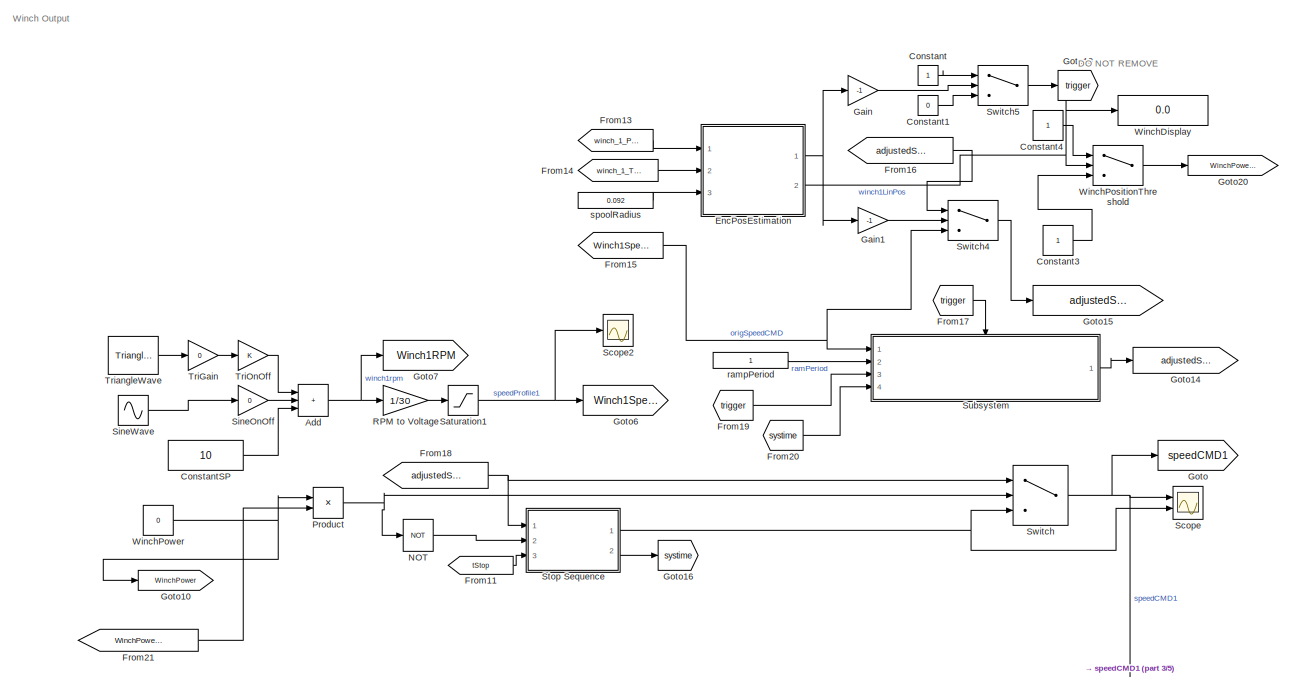
[diagram: root canvas - part 1/5, top right region]
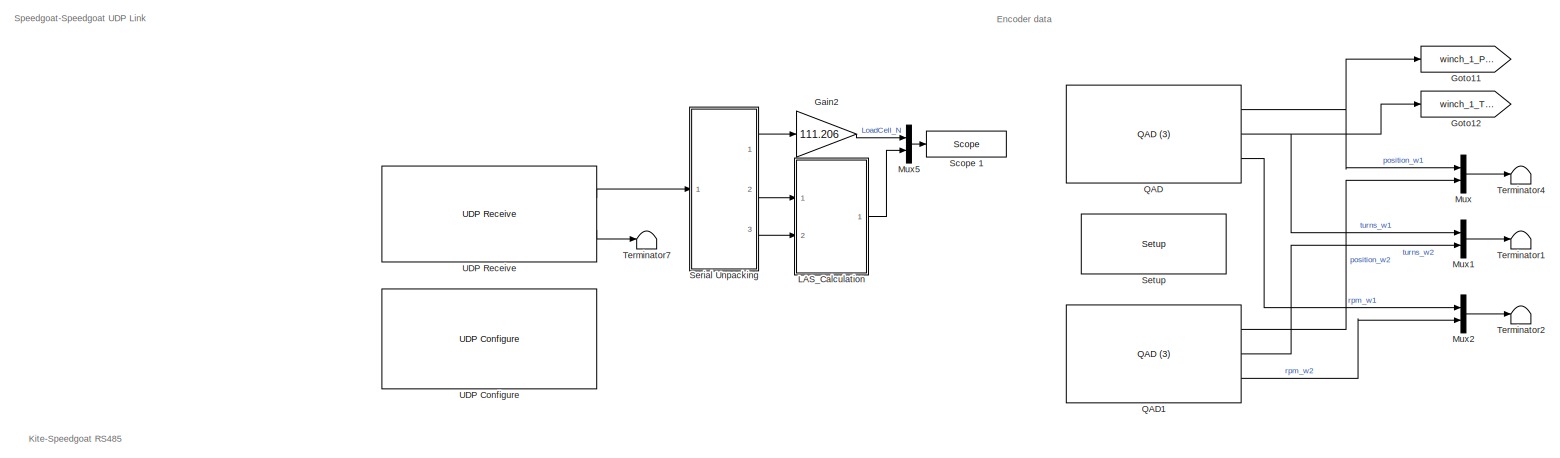
[diagram: root canvas - part 2/5, middle left region]
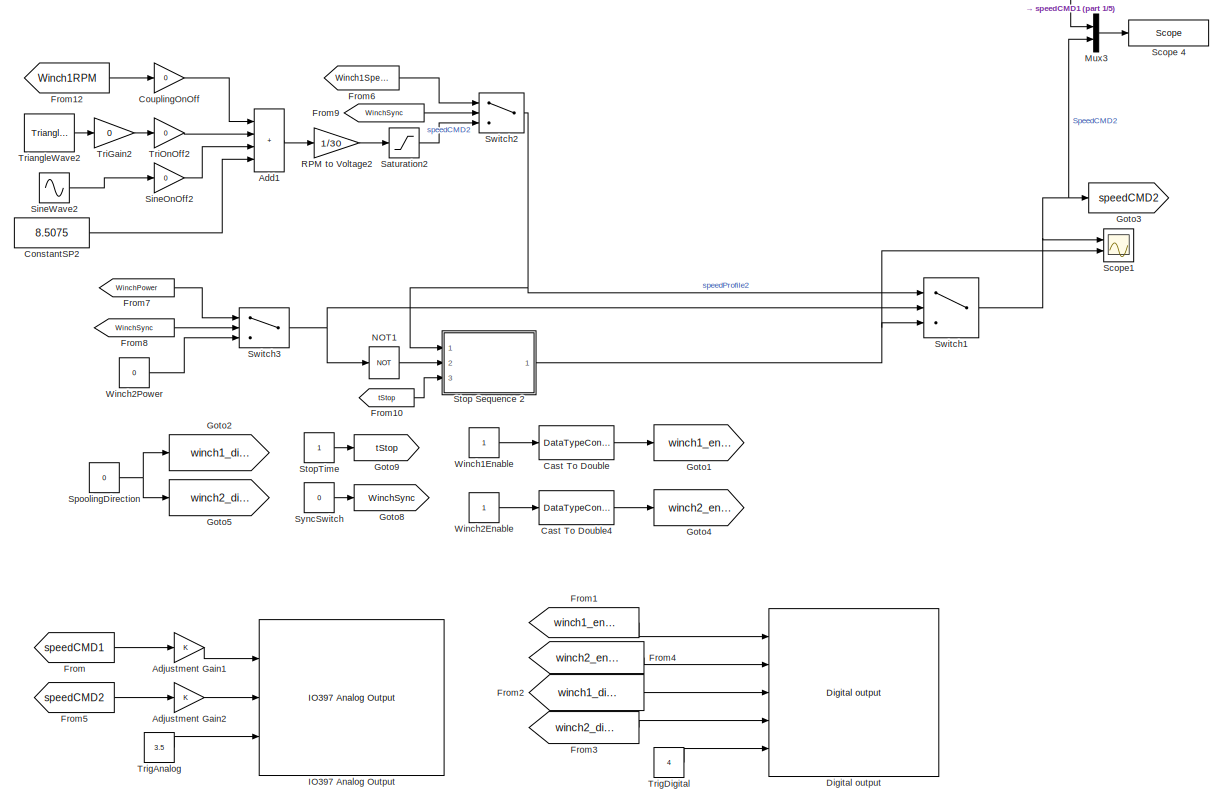
[diagram: root canvas - part 3/5, bottom right region]
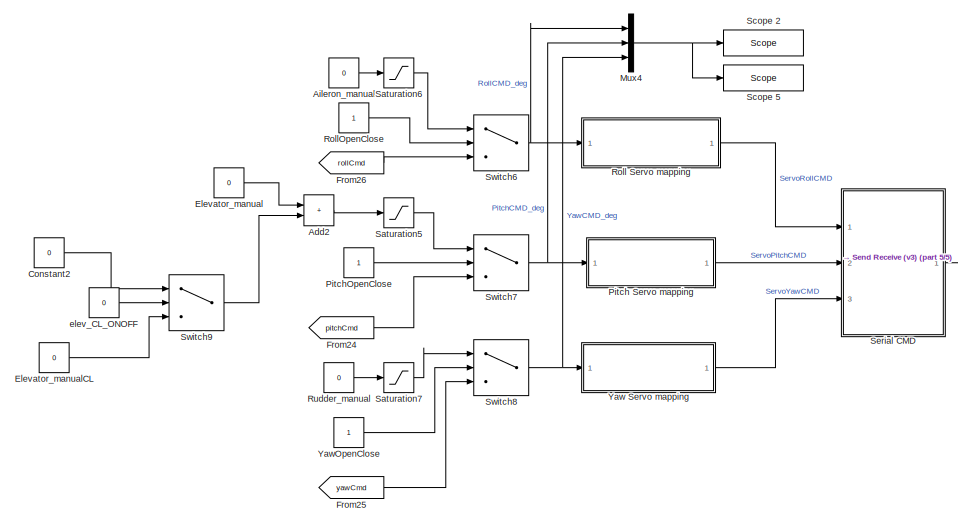
[diagram: root canvas - part 4/5, bottom left region]
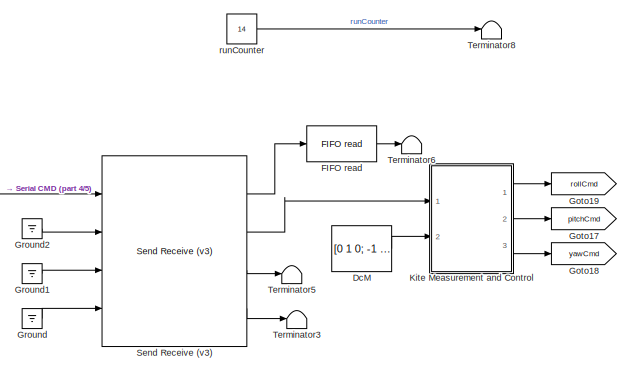
[diagram: root canvas - part 5/5, bottom center region]
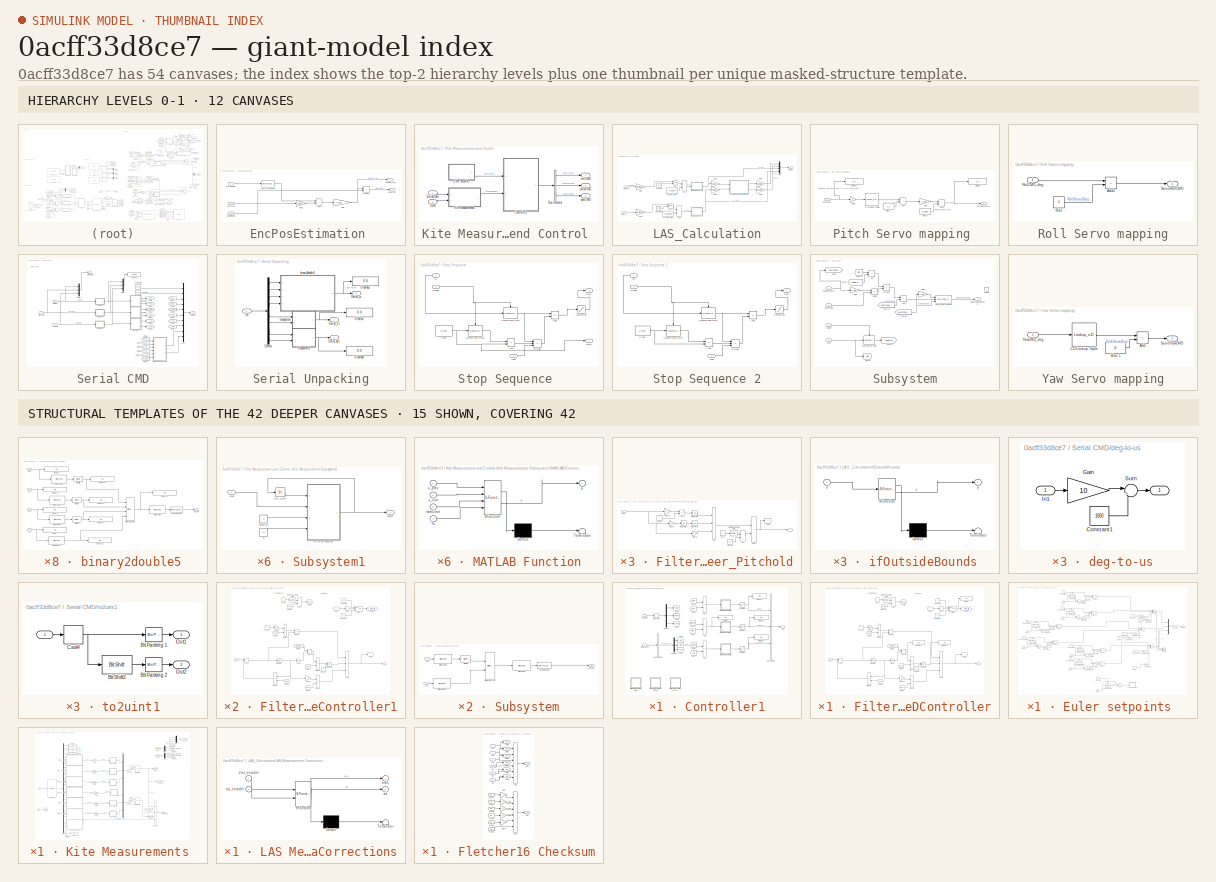
[diagram: thumbnail index - top-2 hierarchy levels (12 canvases) + 15 structural-template representatives of the remaining 42 canvases]
MODEL slx_0acff33d8ce7
KIND model
CONFIG AbsTol = auto
CONFIG EnableMultiTasking = on
CONFIG FixedStep = Ts
CONFIG InitFcn = poolApp=appforPool;
CONFIG MaxStep = auto
CONFIG MinStep = auto
CONFIG RelTol = 1e-3
CONFIG SampleTimeConstraint = Unconstrained
CONFIG Solver = FixedStepAuto
CONFIG SolverName = FixedStepAuto
CONFIG StartFcn = blk='towTest_dualWinch/WinchDisplay';\nevent='PostOutputs';\nlistener=@(app,event) updateGUI(poolApp);\nh=add_exec_event_listener(blk,event,listener);
CONFIG StartTime = 0.0
CONFIG StopTime = inf
BLOCK [Sum] Add
  IconShape = rectangular
  Inputs = +++
  Ports = [3, 1]
BLOCK [Sum] Add1
  IconShape = rectangular
  Inputs = ++++
  Ports = [4, 1]
BLOCK [Sum] Add2
  IconShape = rectangular
  Ports = [2, 1]
BLOCK [Gain] Adjustment Gain1
BLOCK [Gain] Adjustment Gain2
BLOCK [Constant] Aileron_manual
  OutDataTypeStr = int8
  Value = 0
BLOCK [DataTypeConversion] Cast To Double
  OutDataTypeStr = double
  RndMeth = Floor
  SaturateOnIntegerOverflow = off
BLOCK [DataTypeConversion] Cast To Double4
  OutDataTypeStr = double
  RndMeth = Floor
  SaturateOnIntegerOverflow = off
BLOCK [Constant] Constant
BLOCK [Constant] Constant1
  Value = 0
BLOCK [Constant] Constant2
  Value = 0
BLOCK [Constant] Constant3
BLOCK [Constant] Constant4
BLOCK [Constant] ConstantSP
  Value = 10
BLOCK [Constant] ConstantSP2
  Value = 8.5075
BLOCK [Gain] CouplingOnOff
  Gain = 0
BLOCK [Constant] DcM
  Value = [0 1 0; -1 0 0;0 0 1]
BLOCK [Reference] Digital output  REF=speedgoatlib_fpga_dio/Digital output
  Ports = [5]
  SourceBlock = speedgoatlib_fpga_dio/Digital output
  SourceProductName = Simulink Real-Time: Speedgoat I/O Driver Library
  SourceType = do_fpga_a2
BLOCK [Constant] Elevator_manual
  OutDataTypeStr = int8
  Value = 0
BLOCK [Constant] Elevator_manualCL
  OutDataTypeStr = int8
  Value = 0
BLOCK [SubSystem] EncPosEstimation 
  Ports = [3, 2]
  RequestExecContextInheritance = off
BLOCK [Sum] EncPosEstimation /Add1
  IconShape = rectangular
  Ports = [2, 1]
BLOCK [DataTypeConversion] EncPosEstimation /Cast To Double
  OutDataTypeStr = double
  RndMeth = Floor
  SaturateOnIntegerOverflow = off
BLOCK [Gain] EncPosEstimation /Gain
  Gain = (2*pi)/1800
BLOCK [Gain] EncPosEstimation /Gain1
  Gain = 1800
BLOCK [Product] EncPosEstimation /Product
  Ports = [2, 1]
BLOCK [Outport] EncPosEstimation /angPos_rad
BLOCK [Inport] EncPosEstimation /encPosRaw
BLOCK [Inport] EncPosEstimation /encTurns
  Port = 2
BLOCK [Outport] EncPosEstimation /linearPos
  Port = 2
BLOCK [Inport] EncPosEstimation /spoolRadius
  Port = 3
BLOCK [Reference] FIFO read   REF=xpcseriallib/FIFO read 
  Ports = [1, 1]
  SourceBlock = xpcseriallib/FIFO read
  SourceProductBaseCode = XP
  SourceType = Asynchronous FIFO Block: reader
BLOCK [From] From
  GotoTag = speedCMD1
BLOCK [From] From1
  GotoTag = winch1_enable
BLOCK [From] From10
  GotoTag = tStop
BLOCK [From] From11
  GotoTag = tStop
BLOCK [From] From12
  GotoTag = Winch1RPM
BLOCK [From] From13
  GotoTag = winch_1_Pos
BLOCK [From] From14
  GotoTag = winch_1_Turns
BLOCK [From] From15
  GotoTag = Winch1Speed
BLOCK [From] From16
  GotoTag = adjustedSpeed
BLOCK [From] From17
  GotoTag = trigger
BLOCK [From] From18
  GotoTag = adjustedSpeedCMD
BLOCK [From] From19
  GotoTag = trigger
BLOCK [From] From2
  GotoTag = winch1_direction
BLOCK [From] From20
  GotoTag = systime
BLOCK [From] From21
  GotoTag = WinchPowerGain
BLOCK [From] From24
  GotoTag = pitchCmd
BLOCK [From] From25
  GotoTag = yawCmd
BLOCK [From] From26
  GotoTag = rollCmd
BLOCK [From] From3
  GotoTag = winch2_direction
BLOCK [From] From4
  GotoTag = winch2_enable
BLOCK [From] From5
  GotoTag = speedCMD2
BLOCK [From] From6
  GotoTag = Winch1Speed
BLOCK [From] From7
  GotoTag = WinchPower
BLOCK [From] From8
  GotoTag = WinchSync
BLOCK [From] From9
  GotoTag = WinchSync
BLOCK [Gain] Gain
  Gain = -1
BLOCK [Gain] Gain1
  Gain = -1
BLOCK [Gain] Gain2
  Gain = 111.206
BLOCK [Goto] Goto
  GotoTag = speedCMD1
BLOCK [Goto] Goto1
  GotoTag = winch1_enable
BLOCK [Goto] Goto10
  GotoTag = WinchPower
BLOCK [Goto] Goto11
  GotoTag = winch_1_Pos
BLOCK [Goto] Goto12
  GotoTag = winch_1_Turns
BLOCK [Goto] Goto13
  GotoTag = trigger
BLOCK [Goto] Goto14
  GotoTag = adjustedSpeed
BLOCK [Goto] Goto15
  GotoTag = adjustedSpeedCMD
BLOCK [Goto] Goto16
  GotoTag = systime
BLOCK [Goto] Goto17
  GotoTag = pitchCmd
BLOCK [Goto] Goto18
  GotoTag = yawCmd
BLOCK [Goto] Goto19
  GotoTag = rollCmd
BLOCK [Goto] Goto2
  GotoTag = winch1_direction
BLOCK [Goto] Goto20
  GotoTag = WinchPowerGain
BLOCK [Goto] Goto3
  GotoTag = speedCMD2
BLOCK [Goto] Goto4
  GotoTag = winch2_enable
BLOCK [Goto] Goto5
  GotoTag = winch2_direction
BLOCK [Goto] Goto6
  GotoTag = Winch1Speed
BLOCK [Goto] Goto7
  GotoTag = Winch1RPM
BLOCK [Goto] Goto8
  GotoTag = WinchSync
BLOCK [Goto] Goto9
  GotoTag = tStop
BLOCK [Ground] Ground
BLOCK [Ground] Ground1
BLOCK [Ground] Ground2
BLOCK [Reference] IO397 Analog Output  REF=speedgoatlib_fpga_analog_io/IO397 Analog Output
  Ports = [3]
  SourceBlock = speedgoatlib_fpga_analog_io/IO397 Analog Output
  SourceProductName = Simulink Real-Time: Speedgoat I/O Driver Library
  SourceType = da_IO397
BLOCK [SubSystem] Kite Measurement and Control 
  Ports = [2, 3]
  RequestExecContextInheritance = off
BLOCK [BusSelector] Kite Measurement and Control /Bus Selector
  OutputSignals = rollCmd,pitchCmd,yawCmd
  Ports = [1, 3]
BLOCK [SubSystem] Kite Measurement and Control /Controller1
  Ports = [2, 1]
  RequestExecContextInheritance = off
BLOCK [Sum] Kite Measurement and Control /Controller1/Add
  IconShape = rectangular
  Inputs = +-
  Ports = [2, 1]
BLOCK [Sum] Kite Measurement and Control /Controller1/Add1
  IconShape = rectangular
  Inputs = +-
  Ports = [2, 1]
BLOCK [Sum] Kite Measurement and Control /Controller1/Add2
  IconShape = rectangular
  Inputs = +-
  Ports = [2, 1]
BLOCK [BusCreator] Kite Measurement and Control /Controller1/Bus Creator
  DisplayOption = bar
  InheritFromInputs = on
  Inputs = 3
  Ports = [3, 1]
BLOCK [BusSelector] Kite Measurement and Control /Controller1/Bus Selector
  OutputSignals = eulerAngles
  Ports = [1, 1]
BLOCK [Outport] Kite Measurement and Control /Controller1/Cmd
BLOCK [Demux] Kite Measurement and Control /Controller1/Demux
  Outputs = 3
  Ports = [1, 3]
BLOCK [Demux] Kite Measurement and Control /Controller1/Demux1
  Outputs = 3
  Ports = [1, 3]
BLOCK [Display] Kite Measurement and Control /Controller1/Display
  Decimation = 1
  Ports = [1]
BLOCK [Display] Kite Measurement and Control /Controller1/Display1
  Decimation = 1
  Ports = [1]
BLOCK [Display] Kite Measurement and Control /Controller1/Display2
  Decimation = 1
  Ports = [1]
BLOCK [Display] Kite Measurement and Control /Controller1/Display4
  Decimation = 1
  Ports = [1]
BLOCK [SubSystem] Kite Measurement and Control /Controller1/FilteredPIDController
  Ports = [1, 1]
  RequestExecContextInheritance = off
BLOCK [Abs] Kite Measurement and Control /Controller1/FilteredPIDController/Abs
  SaturateOnIntegerOverflow = off
BLOCK [Sum] Kite Measurement and Control /Controller1/FilteredPIDController/Add1
  IconShape = rectangular
  Inputs = +++
  Ports = [3, 1]
BLOCK [Sum] Kite Measurement and Control /Controller1/FilteredPIDController/Add2
  IconShape = rectangular
  Inputs = +-
  Ports = [2, 1]
BLOCK [Constant] Kite Measurement and Control /Controller1/FilteredPIDController/Constant
BLOCK [Constant] Kite Measurement and Control /Controller1/FilteredPIDController/Constant1
  Value = 0
BLOCK [Constant] Kite Measurement and Control /Controller1/FilteredPIDController/Constant2
BLOCK [Display] Kite Measurement and Control /Controller1/FilteredPIDController/Display
  Decimation = 1
  Ports = [1]
BLOCK [Display] Kite Measurement and Control /Controller1/FilteredPIDController/Display1
  Decimation = 1
  Ports = [1]
BLOCK [Display] Kite Measurement and Control /Controller1/FilteredPIDController/Display2
  Decimation = 1
  Ports = [1]
BLOCK [Product] Kite Measurement and Control /Controller1/FilteredPIDController/Divide1
  Inputs = */
  Ports = [2, 1]
BLOCK [Product] Kite Measurement and Control /Controller1/FilteredPIDController/Divide2
  Inputs = */
  Ports = [2, 1]
BLOCK [Product] Kite Measurement and Control /Controller1/FilteredPIDController/Divide3
  Inputs = */
  Ports = [2, 1]
BLOCK [Product] Kite Measurement and Control /Controller1/FilteredPIDController/Divide4
  Inputs = */
  NameLocation = top
  Ports = [2, 1]
BLOCK [From] Kite Measurement and Control /Controller1/FilteredPIDController/From
  GotoTag = y
BLOCK [From] Kite Measurement and Control /Controller1/FilteredPIDController/From1
  GotoTag = Tau
BLOCK [From] Kite Measurement and Control /Controller1/FilteredPIDController/From2
  GotoTag = Tau
BLOCK [From] Kite Measurement and Control /Controller1/FilteredPIDController/From3
  GotoTag = Tau
BLOCK [From] Kite Measurement and Control /Controller1/FilteredPIDController/From4
  GotoTag = Tau
  NameLocation = top
BLOCK [From] Kite Measurement and Control /Controller1/FilteredPIDController/From5
  GotoTag = stop_trig
BLOCK [Goto] Kite Measurement and Control /Controller1/FilteredPIDController/Goto
  GotoTag = y
BLOCK [Goto] Kite Measurement and Control /Controller1/FilteredPIDController/Goto1
  GotoTag = Tau
BLOCK [Goto] Kite Measurement and Control /Controller1/FilteredPIDController/Goto2
  GotoTag = stop_trig
BLOCK [Constant] Kite Measurement and Control /Controller1/FilteredPIDController/Int_reset
  Value = 0
BLOCK [Integrator] Kite Measurement and Control /Controller1/FilteredPIDController/Integrator
  Ports = [1, 1]
BLOCK [Integrator] Kite Measurement and Control /Controller1/FilteredPIDController/Integrator3
  ExternalReset = either
  Ports = [2, 1]
BLOCK [MinMax] Kite Measurement and Control /Controller1/FilteredPIDController/Max
  Function = max
  Inputs = 2
  Ports = [2, 1]
BLOCK [Gain] Kite Measurement and Control /Controller1/FilteredPIDController/PitchKd
  Gain = 0.1
BLOCK [Gain] Kite Measurement and Control /Controller1/FilteredPIDController/PitchKi
  Gain = 0
BLOCK [Gain] Kite Measurement and Control /Controller1/FilteredPIDController/PitchKp
BLOCK [Constant] Kite Measurement and Control /Controller1/FilteredPIDController/PitchTau
  Value = 0.05
BLOCK [Product] Kite Measurement and Control /Controller1/FilteredPIDController/Product
  Ports = [2, 1]
BLOCK [Product] Kite Measurement and Control /Controller1/FilteredPIDController/Product1
  Ports = [2, 1]
BLOCK [Switch] Kite Measurement and Control /Controller1/FilteredPIDController/Switch
  InputSameDT = off
  SaturateOnIntegerOverflow = off
  Threshold = 30
BLOCK [SampleTimeMath] Kite Measurement and Control /Controller1/FilteredPIDController/Weighted Sample Time
  TsampMathOp = Ts Only
BLOCK [Constant] Kite Measurement and Control /Controller1/FilteredPIDController/const
BLOCK [Inport] Kite Measurement and Control /Controller1/FilteredPIDController/del_u
BLOCK [Outport] Kite Measurement and Control /Controller1/FilteredPIDController/y
BLOCK [SubSystem] Kite Measurement and Control /Controller1/FilteredPIDController1
  Ports = [1, 1]
  RequestExecContextInheritance = off
BLOCK [Abs] Kite Measurement and Control /Controller1/FilteredPIDController1/Abs
  SaturateOnIntegerOverflow = off
BLOCK [Sum] Kite Measurement and Control /Controller1/FilteredPIDController1/Add1
  IconShape = rectangular
  Inputs = +++
  Ports = [3, 1]
BLOCK [Sum] Kite Measurement and Control /Controller1/FilteredPIDController1/Add2
  IconShape = rectangular
  Inputs = +-
  Ports = [2, 1]
BLOCK [Constant] Kite Measurement and Control /Controller1/FilteredPIDController1/Constant
BLOCK [Constant] Kite Measurement and Control /Controller1/FilteredPIDController1/Constant1
  Value = 0
BLOCK [Constant] Kite Measurement and Control /Controller1/FilteredPIDController1/Constant2
BLOCK [Product] Kite Measurement and Control /Controller1/FilteredPIDController1/Divide1
  Inputs = */
  Ports = [2, 1]
BLOCK [Product] Kite Measurement and Control /Controller1/FilteredPIDController1/Divide2
  Inputs = */
  Ports = [2, 1]
BLOCK [Product] Kite Measurement and Control /Controller1/FilteredPIDController1/Divide3
  Inputs = */
  Ports = [2, 1]
BLOCK [Product] Kite Measurement and Control /Controller1/FilteredPIDController1/Divide4
  Inputs = */
  NameLocation = top
  Ports = [2, 1]
BLOCK [From] Kite Measurement and Control /Controller1/FilteredPIDController1/From
  GotoTag = y
BLOCK [From] Kite Measurement and Control /Controller1/FilteredPIDController1/From1
  GotoTag = Tau
BLOCK [From] Kite Measurement and Control /Controller1/FilteredPIDController1/From2
  GotoTag = Tau
BLOCK [From] Kite Measurement and Control /Controller1/FilteredPIDController1/From3
  GotoTag = Tau
BLOCK [From] Kite Measurement and Control /Controller1/FilteredPIDController1/From4
  GotoTag = Tau
  NameLocation = top
BLOCK [From] Kite Measurement and Control /Controller1/FilteredPIDController1/From5
  GotoTag = stop_trig
BLOCK [Goto] Kite Measurement and Control /Controller1/FilteredPIDController1/Goto
  GotoTag = y
BLOCK [Goto] Kite Measurement and Control /Controller1/FilteredPIDController1/Goto1
  GotoTag = Tau
BLOCK [Goto] Kite Measurement and Control /Controller1/FilteredPIDController1/Goto2
  GotoTag = stop_trig
BLOCK [Constant] Kite Measurement and Control /Controller1/FilteredPIDController1/Int_reset
  Value = 0
BLOCK [Integrator] Kite Measurement and Control /Controller1/FilteredPIDController1/Integrator
  Ports = [1, 1]
BLOCK [Integrator] Kite Measurement and Control /Controller1/FilteredPIDController1/Integrator3
  ExternalReset = either
  Ports = [2, 1]
BLOCK [MinMax] Kite Measurement and Control /Controller1/FilteredPIDController1/Max
  Function = max
  Inputs = 2
  Ports = [2, 1]
BLOCK [Product] Kite Measurement and Control /Controller1/FilteredPIDController1/Product
  Ports = [2, 1]
BLOCK [Product] Kite Measurement and Control /Controller1/FilteredPIDController1/Product1
  Ports = [2, 1]
BLOCK [Switch] Kite Measurement and Control /Controller1/FilteredPIDController1/Switch
  InputSameDT = off
  SaturateOnIntegerOverflow = off
  Threshold = 30
BLOCK [SampleTimeMath] Kite Measurement and Control /Controller1/FilteredPIDController1/Weighted Sample Time
  TsampMathOp = Ts Only
BLOCK [Gain] Kite Measurement and Control /Controller1/FilteredPIDController1/YawKd
BLOCK [Gain] Kite Measurement and Control /Controller1/FilteredPIDController1/YawKi
  Gain = 0
BLOCK [Gain] Kite Measurement and Control /Controller1/FilteredPIDController1/YawKp
BLOCK [Constant] Kite Measurement and Control /Controller1/FilteredPIDController1/YawTau
  Value = 0.01
BLOCK [Constant] Kite Measurement and Control /Controller1/FilteredPIDController1/const
BLOCK [Inport] Kite Measurement and Control /Controller1/FilteredPIDController1/del_u
BLOCK [Outport] Kite Measurement and Control /Controller1/FilteredPIDController1/y
BLOCK [SubSystem] Kite Measurement and Control /Controller1/FilteredPIDController2
  Ports = [1, 1]
  RequestExecContextInheritance = off
BLOCK [Abs] Kite Measurement and Control /Controller1/FilteredPIDController2/Abs
  SaturateOnIntegerOverflow = off
BLOCK [Sum] Kite Measurement and Control /Controller1/FilteredPIDController2/Add1
  IconShape = rectangular
  Inputs = +++
  Ports = [3, 1]
BLOCK [Sum] Kite Measurement and Control /Controller1/FilteredPIDController2/Add2
  IconShape = rectangular
  Inputs = +-
  Ports = [2, 1]
BLOCK [Constant] Kite Measurement and Control /Controller1/FilteredPIDController2/Constant
BLOCK [Constant] Kite Measurement and Control /Controller1/FilteredPIDController2/Constant1
  Value = 0
BLOCK [Constant] Kite Measurement and Control /Controller1/FilteredPIDController2/Constant2
BLOCK [Product] Kite Measurement and Control /Controller1/FilteredPIDController2/Divide1
  Inputs = */
  Ports = [2, 1]
BLOCK [Product] Kite Measurement and Control /Controller1/FilteredPIDController2/Divide2
  Inputs = */
  Ports = [2, 1]
BLOCK [Product] Kite Measurement and Control /Controller1/FilteredPIDController2/Divide3
  Inputs = */
  Ports = [2, 1]
BLOCK [Product] Kite Measurement and Control /Controller1/FilteredPIDController2/Divide4
  Inputs = */
  NameLocation = top
  Ports = [2, 1]
BLOCK [From] Kite Measurement and Control /Controller1/FilteredPIDController2/From
  GotoTag = y
BLOCK [From] Kite Measurement and Control /Controller1/FilteredPIDController2/From1
  GotoTag = Tau
BLOCK [From] Kite Measurement and Control /Controller1/FilteredPIDController2/From2
  GotoTag = Tau
BLOCK [From] Kite Measurement and Control /Controller1/FilteredPIDController2/From3
  GotoTag = Tau
BLOCK [From] Kite Measurement and Control /Controller1/FilteredPIDController2/From4
  GotoTag = Tau
  NameLocation = top
BLOCK [From] Kite Measurement and Control /Controller1/FilteredPIDController2/From5
  GotoTag = stop_trig
BLOCK [Goto] Kite Measurement and Control /Controller1/FilteredPIDController2/Goto
  GotoTag = y
BLOCK [Goto] Kite Measurement and Control /Controller1/FilteredPIDController2/Goto1
  GotoTag = Tau
BLOCK [Goto] Kite Measurement and Control /Controller1/FilteredPIDController2/Goto2
  GotoTag = stop_trig
BLOCK [Constant] Kite Measurement and Control /Controller1/FilteredPIDController2/Int_reset
  Value = 0
BLOCK [Integrator] Kite Measurement and Control /Controller1/FilteredPIDController2/Integrator
  Ports = [1, 1]
BLOCK [Integrator] Kite Measurement and Control /Controller1/FilteredPIDController2/Integrator3
  ExternalReset = either
  Ports = [2, 1]
BLOCK [MinMax] Kite Measurement and Control /Controller1/FilteredPIDController2/Max
  Function = max
  Inputs = 2
  Ports = [2, 1]
BLOCK [Product] Kite Measurement and Control /Controller1/FilteredPIDController2/Product
  Ports = [2, 1]
BLOCK [Product] Kite Measurement and Control /Controller1/FilteredPIDController2/Product1
  Ports = [2, 1]
BLOCK [Gain] Kite Measurement and Control /Controller1/FilteredPIDController2/RollKd
  Gain = 0
BLOCK [Gain] Kite Measurement and Control /Controller1/FilteredPIDController2/RollKi
  Gain = 0
BLOCK [Gain] Kite Measurement and Control /Controller1/FilteredPIDController2/RollKp
BLOCK [Constant] Kite Measurement and Control /Controller1/FilteredPIDController2/RollTau
  Value = 0.05
BLOCK [Switch] Kite Measurement and Control /Controller1/FilteredPIDController2/Switch
  InputSameDT = off
  SaturateOnIntegerOverflow = off
  Threshold = 30
BLOCK [SampleTimeMath] Kite Measurement and Control /Controller1/FilteredPIDController2/Weighted Sample Time
  TsampMathOp = Ts Only
BLOCK [Constant] Kite Measurement and Control /Controller1/FilteredPIDController2/const
BLOCK [Inport] Kite Measurement and Control /Controller1/FilteredPIDController2/del_u
BLOCK [Outport] Kite Measurement and Control /Controller1/FilteredPIDController2/y
BLOCK [SubSystem] Kite Measurement and Control /Controller1/FilteredPIDController_Pitchold
  Commented = on
  Ports = [1, 1]
  RequestExecContextInheritance = off
BLOCK [Sum] Kite Measurement and Control /Controller1/FilteredPIDController_Pitchold/Add
  IconShape = rectangular
  Inputs = +-
  Ports = [2, 1]
BLOCK [Sum] Kite Measurement and Control /Controller1/FilteredPIDController_Pitchold/Add1
  IconShape = rectangular
  Inputs = +++
  Ports = [3, 1]
BLOCK [Product] Kite Measurement and Control /Controller1/FilteredPIDController_Pitchold/Divide
  Inputs = */
  Ports = [2, 1]
BLOCK [From] Kite Measurement and Control /Controller1/FilteredPIDController_Pitchold/From
  GotoTag = y
BLOCK [Goto] Kite Measurement and Control /Controller1/FilteredPIDController_Pitchold/Goto
  GotoTag = y
BLOCK [Integrator] Kite Measurement and Control /Controller1/FilteredPIDController_Pitchold/Integrator
  Ports = [1, 1]
BLOCK [Integrator] Kite Measurement and Control /Controller1/FilteredPIDController_Pitchold/Integrator1
  Ports = [1, 1]
BLOCK [Integrator] Kite Measurement and Control /Controller1/FilteredPIDController_Pitchold/Integrator2
  Ports = [1, 1]
BLOCK [MinMax] Kite Measurement and Control /Controller1/FilteredPIDController_Pitchold/Max
  Function = max
  Inputs = 2
  Ports = [2, 1]
BLOCK [Gain] Kite Measurement and Control /Controller1/FilteredPIDController_Pitchold/PitchKd
BLOCK [Gain] Kite Measurement and Control /Controller1/FilteredPIDController_Pitchold/PitchKi
  Gain = 0
BLOCK [Gain] Kite Measurement and Control /Controller1/FilteredPIDController_Pitchold/PitchKp
BLOCK [Constant] Kite Measurement and Control /Controller1/FilteredPIDController_Pitchold/PitchTau
  Value = 0.1
BLOCK [SampleTimeMath] Kite Measurement and Control /Controller1/FilteredPIDController_Pitchold/Weighted Sample Time
  TsampMathOp = Ts Only
BLOCK [Constant] Kite Measurement and Control /Controller1/FilteredPIDController_Pitchold/const
BLOCK [Inport] Kite Measurement and Control /Controller1/FilteredPIDController_Pitchold/del_u
BLOCK [Outport] Kite Measurement and Control /Controller1/FilteredPIDController_Pitchold/y
BLOCK [SubSystem] Kite Measurement and Control /Controller1/FilteredPIDController_oldRoll
  Commented = on
  Ports = [1, 1]
  RequestExecContextInheritance = off
BLOCK [Sum] Kite Measurement and Control /Controller1/FilteredPIDController_oldRoll/Add
  IconShape = rectangular
  Inputs = +-
  Ports = [2, 1]
BLOCK [Sum] Kite Measurement and Control /Controller1/FilteredPIDController_oldRoll/Add1
  IconShape = rectangular
  Inputs = +++
  Ports = [3, 1]
BLOCK [Product] Kite Measurement and Control /Controller1/FilteredPIDController_oldRoll/Divide
  Inputs = */
  Ports = [2, 1]
BLOCK [From] Kite Measurement and Control /Controller1/FilteredPIDController_oldRoll/From
  GotoTag = y
BLOCK [Goto] Kite Measurement and Control /Controller1/FilteredPIDController_oldRoll/Goto
  GotoTag = y
BLOCK [Integrator] Kite Measurement and Control /Controller1/FilteredPIDController_oldRoll/Integrator
  Ports = [1, 1]
BLOCK [Integrator] Kite Measurement and Control /Controller1/FilteredPIDController_oldRoll/Integrator1
  Ports = [1, 1]
BLOCK [Integrator] Kite Measurement and Control /Controller1/FilteredPIDController_oldRoll/Integrator2
  Ports = [1, 1]
BLOCK [MinMax] Kite Measurement and Control /Controller1/FilteredPIDController_oldRoll/Max
  Function = max
  Inputs = 2
  Ports = [2, 1]
BLOCK [Gain] Kite Measurement and Control /Controller1/FilteredPIDController_oldRoll/RollKd
BLOCK [Gain] Kite Measurement and Control /Controller1/FilteredPIDController_oldRoll/RollKi
  Gain = 0
BLOCK [Gain] Kite Measurement and Control /Controller1/FilteredPIDController_oldRoll/RollKp
BLOCK [Constant] Kite Measurement and Control /Controller1/FilteredPIDController_oldRoll/RollTau
  Value = 0.1
BLOCK [SampleTimeMath] Kite Measurement and Control /Controller1/FilteredPIDController_oldRoll/Weighted Sample Time
  TsampMathOp = Ts Only
BLOCK [Constant] Kite Measurement and Control /Controller1/FilteredPIDController_oldRoll/const
BLOCK [Inport] Kite Measurement and Control /Controller1/FilteredPIDController_oldRoll/del_u
BLOCK [Outport] Kite Measurement and Control /Controller1/FilteredPIDController_oldRoll/y
BLOCK [SubSystem] Kite Measurement and Control /Controller1/FilteredPIDController_oldYaw
  Commented = on
  Ports = [1, 1]
  RequestExecContextInheritance = off
BLOCK [Sum] Kite Measurement and Control /Controller1/FilteredPIDController_oldYaw/Add
  IconShape = rectangular
  Inputs = +-
  Ports = [2, 1]
BLOCK [Sum] Kite Measurement and Control /Controller1/FilteredPIDController_oldYaw/Add1
  IconShape = rectangular
  Inputs = +++
  Ports = [3, 1]
BLOCK [Product] Kite Measurement and Control /Controller1/FilteredPIDController_oldYaw/Divide
  Inputs = */
  Ports = [2, 1]
BLOCK [From] Kite Measurement and Control /Controller1/FilteredPIDController_oldYaw/From
  GotoTag = y
BLOCK [Goto] Kite Measurement and Control /Controller1/FilteredPIDController_oldYaw/Goto
  GotoTag = y
BLOCK [Integrator] Kite Measurement and Control /Controller1/FilteredPIDController_oldYaw/Integrator
  Ports = [1, 1]
BLOCK [Integrator] Kite Measurement and Control /Controller1/FilteredPIDController_oldYaw/Integrator1
  Ports = [1, 1]
BLOCK [Integrator] Kite Measurement and Control /Controller1/FilteredPIDController_oldYaw/Integrator2
  Ports = [1, 1]
BLOCK [MinMax] Kite Measurement and Control /Controller1/FilteredPIDController_oldYaw/Max
  Function = max
  Inputs = 2
  Ports = [2, 1]
BLOCK [SampleTimeMath] Kite Measurement and Control /Controller1/FilteredPIDController_oldYaw/Weighted Sample Time
  TsampMathOp = Ts Only
BLOCK [Gain] Kite Measurement and Control /Controller1/FilteredPIDController_oldYaw/YawKd
  Gain = 0.2
BLOCK [Gain] Kite Measurement and Control /Controller1/FilteredPIDController_oldYaw/YawKi
  Gain = 0.3
BLOCK [Gain] Kite Measurement and Control /Controller1/FilteredPIDController_oldYaw/YawKp
  Gain = 0.1
BLOCK [Constant] Kite Measurement and Control /Controller1/FilteredPIDController_oldYaw/YawTau
  Value = 0.4
BLOCK [Constant] Kite Measurement and Control /Controller1/FilteredPIDController_oldYaw/const
BLOCK [Inport] Kite Measurement and Control /Controller1/FilteredPIDController_oldYaw/del_u
BLOCK [Outport] Kite Measurement and Control /Controller1/FilteredPIDController_oldYaw/y
BLOCK [From] Kite Measurement and Control /Controller1/From
  GotoTag = Yaw
BLOCK [From] Kite Measurement and Control /Controller1/From1
  GotoTag = Roll
BLOCK [From] Kite Measurement and Control /Controller1/From2
  GotoTag = Pitch
BLOCK [From] Kite Measurement and Control /Controller1/From3
  GotoTag = pitchSP
BLOCK [From] Kite Measurement and Control /Controller1/From4
  GotoTag = rollSP
BLOCK [From] Kite Measurement and Control /Controller1/From5
  GotoTag = yawSP
BLOCK [Goto] Kite Measurement and Control /Controller1/Goto
  GotoTag = Roll
BLOCK [Goto] Kite Measurement and Control /Controller1/Goto1
  GotoTag = Pitch
BLOCK [Goto] Kite Measurement and Control /Controller1/Goto2
  GotoTag = Yaw
BLOCK [Goto] Kite Measurement and Control /Controller1/Goto3
  GotoTag = yawSP
BLOCK [Goto] Kite Measurement and Control /Controller1/Goto4
  GotoTag = rollSP
BLOCK [Goto] Kite Measurement and Control /Controller1/Goto5
  GotoTag = pitchSP
BLOCK [Reshape] Kite Measurement and Control /Controller1/Reshape
  OutputDimensionality = Column vector (2-D)
  Ports = [1, 1]
BLOCK [Saturate] Kite Measurement and Control /Controller1/Saturation3
  LowerLimit = -30
  UpperLimit = 30
BLOCK [Saturate] Kite Measurement and Control /Controller1/Saturation4
  LowerLimit = -30
  UpperLimit = 30
BLOCK [Saturate] Kite Measurement and Control /Controller1/Saturation5
  LowerLimit = -30
  UpperLimit = 30
BLOCK [Inport] Kite Measurement and Control /Controller1/kiteMeasure
  Port = 2
BLOCK [Inport] Kite Measurement and Control /Controller1/setPoints
BLOCK [Inport] Kite Measurement and Control /DcM
  Port = 2
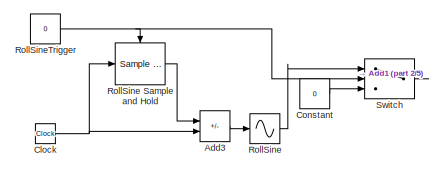
[diagram: Kite Measurement and Control /Euler setpoints  - part 1/5, top center region]
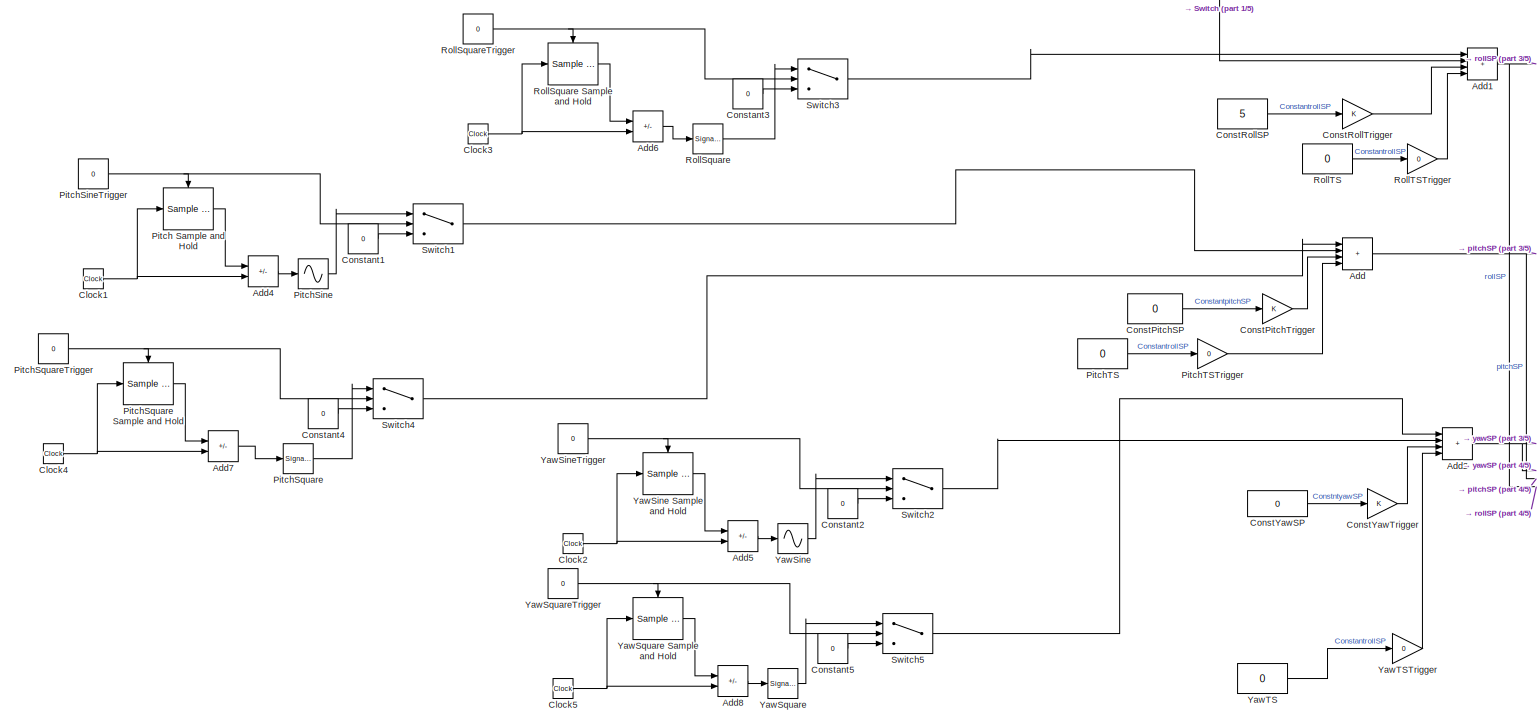
[diagram: Kite Measurement and Control /Euler setpoints  - part 2/5, full width, middle band]
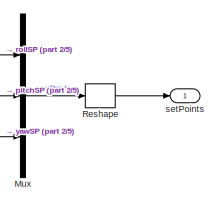
[diagram: Kite Measurement and Control /Euler setpoints  - part 3/5, middle right region]
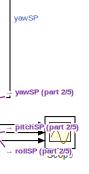
[diagram: Kite Measurement and Control /Euler setpoints  - part 4/5, middle right region]
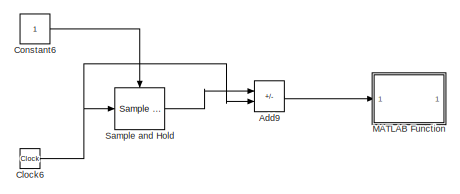
[diagram: Kite Measurement and Control /Euler setpoints  - part 5/5, bottom center region]
BLOCK [SubSystem] Kite Measurement and Control /Euler setpoints 
  Ports = [0, 1]
  RequestExecContextInheritance = off
BLOCK [Sum] Kite Measurement and Control /Euler setpoints /Add
  IconShape = rectangular
  Inputs = ++++
  Ports = [4, 1]
BLOCK [Sum] Kite Measurement and Control /Euler setpoints /Add1
  IconShape = rectangular
  Inputs = ++++
  Ports = [4, 1]
BLOCK [Sum] Kite Measurement and Control /Euler setpoints /Add2
  IconShape = rectangular
  Inputs = ++++
  Ports = [4, 1]
BLOCK [Sum] Kite Measurement and Control /Euler setpoints /Add3
  IconShape = rectangular
  Inputs = -+
  Ports = [2, 1]
BLOCK [Sum] Kite Measurement and Control /Euler setpoints /Add4
  IconShape = rectangular
  Inputs = -+
  Ports = [2, 1]
BLOCK [Sum] Kite Measurement and Control /Euler setpoints /Add5
  IconShape = rectangular
  Inputs = -+
  Ports = [2, 1]
BLOCK [Sum] Kite Measurement and Control /Euler setpoints /Add6
  IconShape = rectangular
  Inputs = -+
  Ports = [2, 1]
BLOCK [Sum] Kite Measurement and Control /Euler setpoints /Add7
  IconShape = rectangular
  Inputs = -+
  Ports = [2, 1]
BLOCK [Sum] Kite Measurement and Control /Euler setpoints /Add8
  IconShape = rectangular
  Inputs = -+
  Ports = [2, 1]
BLOCK [Sum] Kite Measurement and Control /Euler setpoints /Add9
  Commented = on
  IconShape = rectangular
  Inputs = -+
  Ports = [2, 1]
BLOCK [Clock] Kite Measurement and Control /Euler setpoints /Clock
BLOCK [Clock] Kite Measurement and Control /Euler setpoints /Clock1
BLOCK [Clock] Kite Measurement and Control /Euler setpoints /Clock2
BLOCK [Clock] Kite Measurement and Control /Euler setpoints /Clock3
BLOCK [Clock] Kite Measurement and Control /Euler setpoints /Clock4
BLOCK [Clock] Kite Measurement and Control /Euler setpoints /Clock5
BLOCK [Clock] Kite Measurement and Control /Euler setpoints /Clock6
  Commented = on
BLOCK [Constant] Kite Measurement and Control /Euler setpoints /ConstPitchSP
  Value = 0
BLOCK [Gain] Kite Measurement and Control /Euler setpoints /ConstPitchTrigger
BLOCK [Constant] Kite Measurement and Control /Euler setpoints /ConstRollSP
  Value = 5
BLOCK [Gain] Kite Measurement and Control /Euler setpoints /ConstRollTrigger
BLOCK [Constant] Kite Measurement and Control /Euler setpoints /ConstYawSP
  Value = 0
BLOCK [Gain] Kite Measurement and Control /Euler setpoints /ConstYawTrigger
BLOCK [Constant] Kite Measurement and Control /Euler setpoints /Constant
  Value = 0
BLOCK [Constant] Kite Measurement and Control /Euler setpoints /Constant1
  Value = 0
BLOCK [Constant] Kite Measurement and Control /Euler setpoints /Constant2
  Value = 0
BLOCK [Constant] Kite Measurement and Control /Euler setpoints /Constant3
  Value = 0
BLOCK [Constant] Kite Measurement and Control /Euler setpoints /Constant4
  Value = 0
BLOCK [Constant] Kite Measurement and Control /Euler setpoints /Constant5
  Value = 0
BLOCK [Constant] Kite Measurement and Control /Euler setpoints /Constant6
  Commented = on
BLOCK [SubSystem] Kite Measurement and Control /Euler setpoints /MATLAB Function
  Commented = on
  ErrorFcn = Stateflow.Translate.translate
  PermitHierarchicalResolution = ExplicitOnly
  Ports = [1, 1]
  RequestExecContextInheritance = off
  SFBlockType = MATLAB Function
  TreatAsAtomicUnit = on
BLOCK [Demux] Kite Measurement and Control /Euler setpoints /MATLAB Function/ Demux 
  Outputs = 1
  Ports = [1, 1]
BLOCK [S-Function] Kite Measurement and Control /Euler setpoints /MATLAB Function/ SFunction 
  EnableBusSupport = on
  FunctionName = sf_sfun
  PortCounts = [1 2]
  Ports = [1, 2]
  SFcnIsStateOwnerBlock = off
  SFunctionDeploymentMode = off
  Tag = Stateflow S-Function 4
BLOCK [Terminator] Kite Measurement and Control /Euler setpoints /MATLAB Function/ Terminator 
BLOCK [Inport] Kite Measurement and Control /Euler setpoints /MATLAB Function/t
BLOCK [Outport] Kite Measurement and Control /Euler setpoints /MATLAB Function/y
BLOCK [Mux] Kite Measurement and Control /Euler setpoints /Mux
  DisplayOption = bar
  Inputs = 3
  Ports = [3, 1]
BLOCK [Reference] Kite Measurement and Control /Euler setpoints /Pitch Sample and Hold  REF=dspsigops/Sample
and Hold
  Ports = [1, 1, 0, 1]
  SourceBlock = dspsigops/Sample\nand Hold
  SourceProductBaseCode = DS
  SourceType = Sample and Hold
BLOCK [Sin] Kite Measurement and Control /Euler setpoints /PitchSine
  Amplitude = 10
  Frequency = 6.2832
  Phase = -50.2969
  Ports = [1, 1]
  TimeSource = Use external signal
BLOCK [Constant] Kite Measurement and Control /Euler setpoints /PitchSineTrigger
  Value = 0
BLOCK [SignalGenerator] Kite Measurement and Control /Euler setpoints /PitchSquare
  Frequency = 3.1416
  Ports = [1, 1]
  TimeSource = Use external signal
  Units = rad/sec
  WaveForm = square
BLOCK [Reference] Kite Measurement and Control /Euler setpoints /PitchSquare Sample and Hold  REF=dspsigops/Sample
and Hold
  Ports = [1, 1, 0, 1]
  SourceBlock = dspsigops/Sample\nand Hold
  SourceProductBaseCode = DS
  SourceType = Sample and Hold
BLOCK [Constant] Kite Measurement and Control /Euler setpoints /PitchSquareTrigger
  Value = 0
BLOCK [Constant] Kite Measurement and Control /Euler setpoints /PitchTS
  Value = 0
BLOCK [Gain] Kite Measurement and Control /Euler setpoints /PitchTSTrigger
  Gain = 0
BLOCK [Reshape] Kite Measurement and Control /Euler setpoints /Reshape
  OutputDimensionality = Column vector (2-D)
  Ports = [1, 1]
BLOCK [Sin] Kite Measurement and Control /Euler setpoints /RollSine
  Amplitude = 20
  Frequency = 0.7854
  Phase = -50.2969
  Ports = [1, 1]
  TimeSource = Use external signal
BLOCK [Reference] Kite Measurement and Control /Euler setpoints /RollSine Sample and Hold  REF=dspsigops/Sample
and Hold
  Ports = [1, 1, 0, 1]
  SourceBlock = dspsigops/Sample\nand Hold
  SourceProductBaseCode = DS
  SourceType = Sample and Hold
BLOCK [Constant] Kite Measurement and Control /Euler setpoints /RollSineTrigger
  Value = 0
BLOCK [SignalGenerator] Kite Measurement and Control /Euler setpoints /RollSquare
  Amplitude = 20
  Frequency = 6.2832
  Ports = [1, 1]
  TimeSource = Use external signal
  Units = rad/sec
  WaveForm = square
BLOCK [Reference] Kite Measurement and Control /Euler setpoints /RollSquare Sample and Hold  REF=dspsigops/Sample
and Hold
  Ports = [1, 1, 0, 1]
  SourceBlock = dspsigops/Sample\nand Hold
  SourceProductBaseCode = DS
  SourceType = Sample and Hold
BLOCK [Constant] Kite Measurement and Control /Euler setpoints /RollSquareTrigger
  Value = 0
BLOCK [Constant] Kite Measurement and Control /Euler setpoints /RollTS
  Value = 0
BLOCK [Gain] Kite Measurement and Control /Euler setpoints /RollTSTrigger
  Gain = 0
BLOCK [Reference] Kite Measurement and Control /Euler setpoints /Sample and Hold  REF=dspsigops/Sample
and Hold
  Commented = on
  Ports = [1, 1, 0, 1]
  SourceBlock = dspsigops/Sample\nand Hold
  SourceProductBaseCode = DS
  SourceType = Sample and Hold
BLOCK [Scope] Kite Measurement and Control /Euler setpoints /Scope
  Floating = off
  NumInputPorts = 3
  Ports = [3]
  ScopeSpecificationString = Simulink.scopes.TimeScopeBlockCfg('CurrentConfiguration', extmgr.ConfigurationSet(extmgr.Configuration('Core','General UI',true),extmgr.Configuration('Core','Source UI',true),extmgr.Configuration('Sources','WiredSimulink',true,'DataLoggingVariableName','ScopeData1'),extmgr.Configuration('Visuals','Time Domain',true,'SerializedDisplays',{struct('MinYLimReal','-12.5','MaxYLimReal','12.5','YLabelReal...<+1396ch>
BLOCK [Switch] Kite Measurement and Control /Euler setpoints /Switch
  Criteria = u2 > Threshold
  InputSameDT = off
  SaturateOnIntegerOverflow = off
BLOCK [Switch] Kite Measurement and Control /Euler setpoints /Switch1
  Criteria = u2 > Threshold
  InputSameDT = off
  SaturateOnIntegerOverflow = off
BLOCK [Switch] Kite Measurement and Control /Euler setpoints /Switch2
  Criteria = u2 > Threshold
  InputSameDT = off
  SaturateOnIntegerOverflow = off
BLOCK [Switch] Kite Measurement and Control /Euler setpoints /Switch3
  Criteria = u2 > Threshold
  InputSameDT = off
  SaturateOnIntegerOverflow = off
BLOCK [Switch] Kite Measurement and Control /Euler setpoints /Switch4
  Criteria = u2 > Threshold
  InputSameDT = off
  SaturateOnIntegerOverflow = off
BLOCK [Switch] Kite Measurement and Control /Euler setpoints /Switch5
  Criteria = u2 > Threshold
  InputSameDT = off
  SaturateOnIntegerOverflow = off
BLOCK [Sin] Kite Measurement and Control /Euler setpoints /YawSine
  Amplitude = 10
  Frequency = 3.1416
  Phase = -50.2969
  Ports = [1, 1]
  TimeSource = Use external signal
BLOCK [Reference] Kite Measurement and Control /Euler setpoints /YawSine Sample and Hold  REF=dspsigops/Sample
and Hold
  Ports = [1, 1, 0, 1]
  SourceBlock = dspsigops/Sample\nand Hold
  SourceProductBaseCode = DS
  SourceType = Sample and Hold
BLOCK [Constant] Kite Measurement and Control /Euler setpoints /YawSineTrigger
  Value = 0
BLOCK [SignalGenerator] Kite Measurement and Control /Euler setpoints /YawSquare
  Frequency = 3.1416
  Ports = [1, 1]
  TimeSource = Use external signal
  Units = rad/sec
  WaveForm = square
BLOCK [Reference] Kite Measurement and Control /Euler setpoints /YawSquare Sample and Hold  REF=dspsigops/Sample
and Hold
  Ports = [1, 1, 0, 1]
  SourceBlock = dspsigops/Sample\nand Hold
  SourceProductBaseCode = DS
  SourceType = Sample and Hold
BLOCK [Constant] Kite Measurement and Control /Euler setpoints /YawSquareTrigger
  Value = 0
BLOCK [Constant] Kite Measurement and Control /Euler setpoints /YawTS
  Value = 0
BLOCK [Gain] Kite Measurement and Control /Euler setpoints /YawTSTrigger
  Gain = 0
BLOCK [Outport] Kite Measurement and Control /Euler setpoints /setPoints
  NameLocation = top
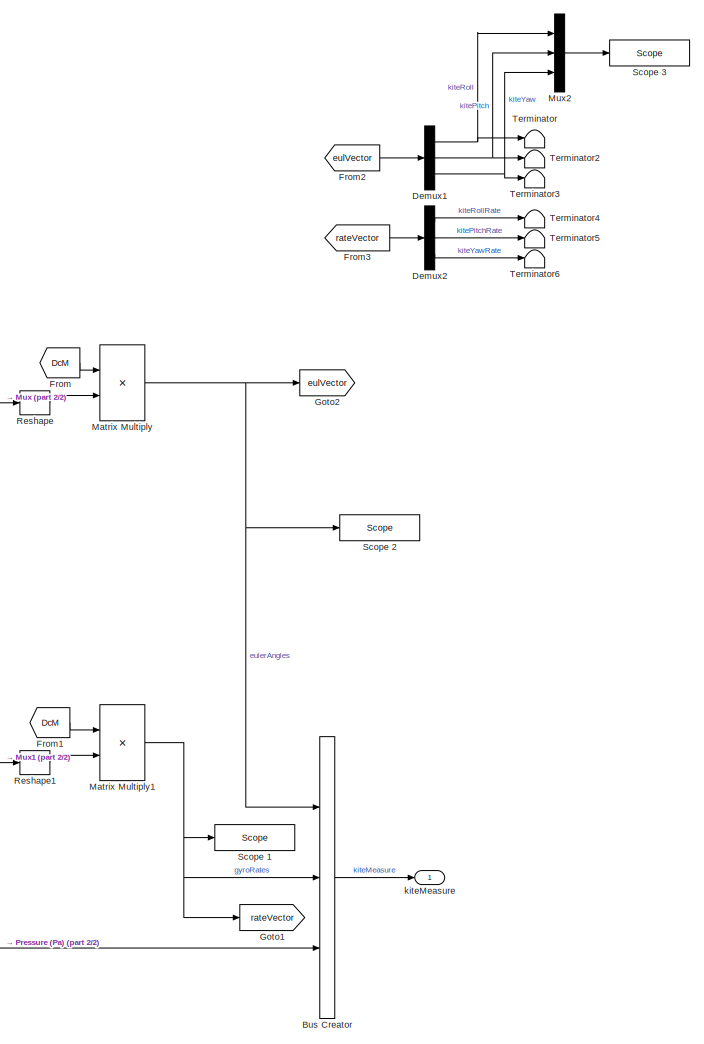
[diagram: Kite Measurement and Control /Kite Measurements  - part 1/2, right side, full height]
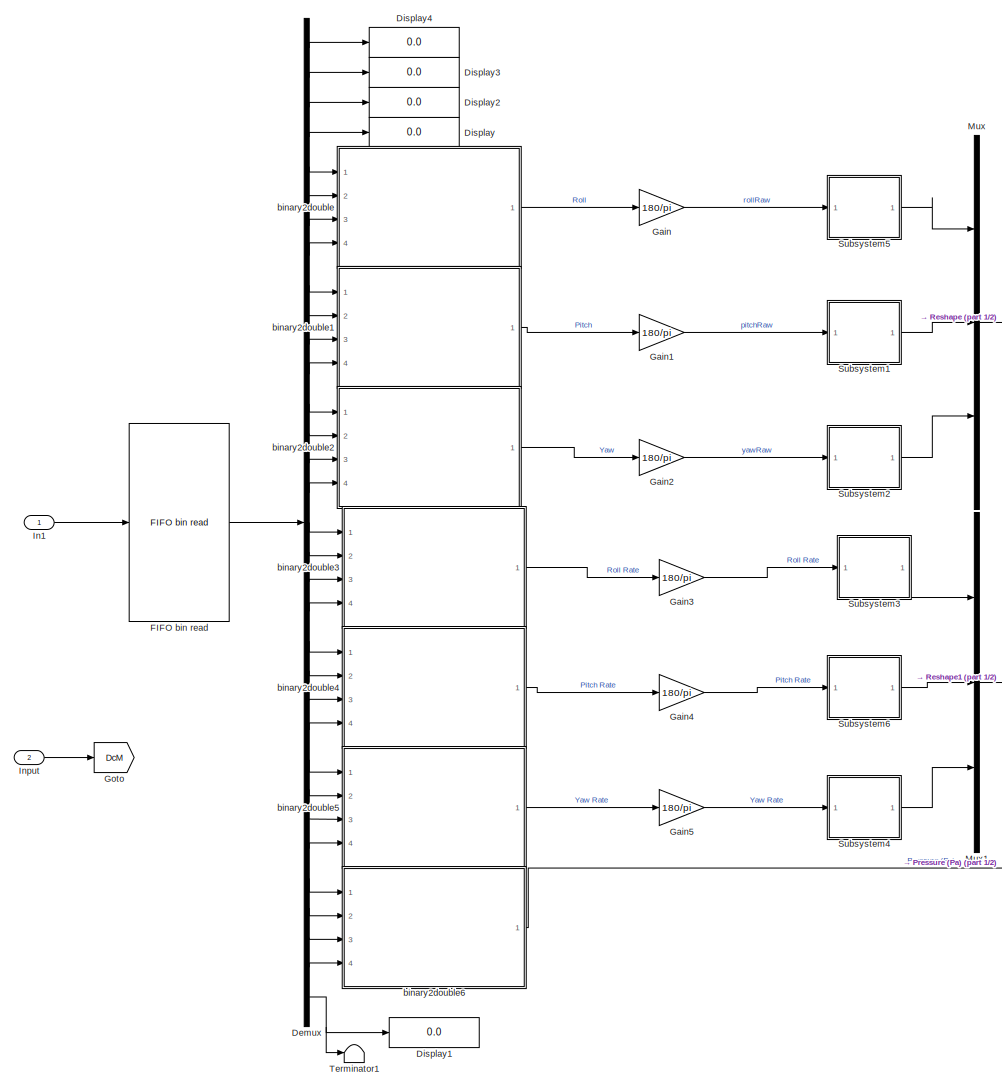
[diagram: Kite Measurement and Control /Kite Measurements  - part 2/2, left side, full height]
BLOCK [SubSystem] Kite Measurement and Control /Kite Measurements 
  Ports = [2, 1]
  RequestExecContextInheritance = off
BLOCK [BusCreator] Kite Measurement and Control /Kite Measurements /Bus Creator
  DisplayOption = bar
  InheritFromInputs = on
  Inputs = 3
  Ports = [3, 1]
BLOCK [Demux] Kite Measurement and Control /Kite Measurements /Demux
  Outputs = 33
  Ports = [1, 33]
BLOCK [Demux] Kite Measurement and Control /Kite Measurements /Demux1
  Outputs = 3
  Ports = [1, 3]
BLOCK [Demux] Kite Measurement and Control /Kite Measurements /Demux2
  Outputs = 3
  Ports = [1, 3]
BLOCK [Display] Kite Measurement and Control /Kite Measurements /Display
  Decimation = 1
  Format = hex (Stored Integer)
  Ports = [1]
BLOCK [Display] Kite Measurement and Control /Kite Measurements /Display1
  Decimation = 1
  Ports = [1]
BLOCK [Display] Kite Measurement and Control /Kite Measurements /Display2
  Decimation = 1
  Format = hex (Stored Integer)
  Ports = [1]
BLOCK [Display] Kite Measurement and Control /Kite Measurements /Display3
  Decimation = 1
  Format = hex (Stored Integer)
  Ports = [1]
BLOCK [Display] Kite Measurement and Control /Kite Measurements /Display4
  Decimation = 1
  Format = hex (Stored Integer)
  Ports = [1]
BLOCK [Reference] Kite Measurement and Control /Kite Measurements /FIFO bin read   REF=xpcseriallib/FIFO bin read 
  Ports = [1, 1]
  SourceBlock = xpcseriallib/FIFO bin read
  SourceProductBaseCode = XP
  SourceType = Asynchronous FIFO Block: reader
BLOCK [From] Kite Measurement and Control /Kite Measurements /From
  GotoTag = DcM
BLOCK [From] Kite Measurement and Control /Kite Measurements /From1
  GotoTag = DcM
BLOCK [From] Kite Measurement and Control /Kite Measurements /From2
  GotoTag = eulVector
BLOCK [From] Kite Measurement and Control /Kite Measurements /From3
  GotoTag = rateVector
BLOCK [Gain] Kite Measurement and Control /Kite Measurements /Gain
  Gain = 180/pi
BLOCK [Gain] Kite Measurement and Control /Kite Measurements /Gain1
  Gain = 180/pi
BLOCK [Gain] Kite Measurement and Control /Kite Measurements /Gain2
  Gain = 180/pi
BLOCK [Gain] Kite Measurement and Control /Kite Measurements /Gain3
  Gain = 180/pi
BLOCK [Gain] Kite Measurement and Control /Kite Measurements /Gain4
  Gain = 180/pi
BLOCK [Gain] Kite Measurement and Control /Kite Measurements /Gain5
  Gain = 180/pi
BLOCK [Goto] Kite Measurement and Control /Kite Measurements /Goto
  GotoTag = DcM
BLOCK [Goto] Kite Measurement and Control /Kite Measurements /Goto1
  GotoTag = rateVector
BLOCK [Goto] Kite Measurement and Control /Kite Measurements /Goto2
  GotoTag = eulVector
BLOCK [Inport] Kite Measurement and Control /Kite Measurements /In1
BLOCK [Inport] Kite Measurement and Control /Kite Measurements /Input
  Port = 2
BLOCK [Product] Kite Measurement and Control /Kite Measurements /Matrix Multiply
  Multiplication = Matrix(*)
  Ports = [2, 1]
BLOCK [Product] Kite Measurement and Control /Kite Measurements /Matrix Multiply1
  Multiplication = Matrix(*)
  Ports = [2, 1]
BLOCK [Mux] Kite Measurement and Control /Kite Measurements /Mux
  DisplayOption = bar
  Inputs = 3
  Ports = [3, 1]
BLOCK [Mux] Kite Measurement and Control /Kite Measurements /Mux1
  DisplayOption = bar
  Inputs = 3
  Ports = [3, 1]
BLOCK [Mux] Kite Measurement and Control /Kite Measurements /Mux2
  DisplayOption = bar
  Inputs = 3
  Ports = [3, 1]
BLOCK [Reshape] Kite Measurement and Control /Kite Measurements /Reshape
  OutputDimensionality = Column vector (2-D)
  Ports = [1, 1]
BLOCK [Reshape] Kite Measurement and Control /Kite Measurements /Reshape1
  OutputDimensionality = Column vector (2-D)
  Ports = [1, 1]
BLOCK [Reference] Kite Measurement and Control /Kite Measurements /Scope 1  REF=slrtlib/Displays and
Logging/Scope 
  Ports = [1]
  SourceBlock = slrtlib/Displays and\nLogging/Scope
  SourceProductBaseCode = XP
  SourceType = xpcscopeblock
BLOCK [Reference] Kite Measurement and Control /Kite Measurements /Scope 2  REF=slrtlib/Displays and
Logging/Scope 
  Ports = [1]
  SourceBlock = slrtlib/Displays and\nLogging/Scope
  SourceProductBaseCode = XP
  SourceType = xpcscopeblock
BLOCK [Reference] Kite Measurement and Control /Kite Measurements /Scope 3  REF=slrtlib/Displays and
Logging/Scope 
  Ports = [1]
  SourceBlock = slrtlib/Displays and\nLogging/Scope
  SourceProductBaseCode = XP
  SourceType = xpcscopeblock
BLOCK [SubSystem] Kite Measurement and Control /Kite Measurements /Subsystem1
  Commented = through
  Ports = [1, 1]
  RequestExecContextInheritance = off
BLOCK [SubSystem] Kite Measurement and Control /Kite Measurements /Subsystem1/MATLAB Function
  ErrorFcn = Stateflow.Translate.translate
  PermitHierarchicalResolution = ExplicitOnly
  Ports = [4, 1]
  RequestExecContextInheritance = off
  SFBlockType = MATLAB Function
  TreatAsAtomicUnit = on
BLOCK [Demux] Kite Measurement and Control /Kite Measurements /Subsystem1/MATLAB Function/ Demux 
  Outputs = 1
  Ports = [1, 1]
BLOCK [S-Function] Kite Measurement and Control /Kite Measurements /Subsystem1/MATLAB Function/ SFunction 
  EnableBusSupport = on
  FunctionName = sf_sfun
  PortCounts = [4 2]
  Ports = [4, 2]
  SFcnIsStateOwnerBlock = off
  SFunctionDeploymentMode = off
  Tag = Stateflow S-Function 5
BLOCK [Terminator] Kite Measurement and Control /Kite Measurements /Subsystem1/MATLAB Function/ Terminator 
BLOCK [Inport] Kite Measurement and Control /Kite Measurements /Subsystem1/MATLAB Function/Ts
  Port = 4
BLOCK [Inport] Kite Measurement and Control /Kite Measurements /Subsystem1/MATLAB Function/rateLimit
  Port = 3
BLOCK [Inport] Kite Measurement and Control /Kite Measurements /Subsystem1/MATLAB Function/u_curr
  Port = 2
BLOCK [Inport] Kite Measurement and Control /Kite Measurements /Subsystem1/MATLAB Function/u_prev
BLOCK [Outport] Kite Measurement and Control /Kite Measurements /Subsystem1/MATLAB Function/y
BLOCK [Constant] Kite Measurement and Control /Kite Measurements /Subsystem1/Ts
  Value = Ts
BLOCK [UnitDelay] Kite Measurement and Control /Kite Measurements /Subsystem1/Unit Delay
  HasFrameUpgradeWarning = on
  SampleTime = -1
BLOCK [Inport] Kite Measurement and Control /Kite Measurements /Subsystem1/input
BLOCK [Outport] Kite Measurement and Control /Kite Measurements /Subsystem1/output
BLOCK [Constant] Kite Measurement and Control /Kite Measurements /Subsystem1/rateLimit
BLOCK [SubSystem] Kite Measurement and Control /Kite Measurements /Subsystem2
  Commented = through
  Ports = [1, 1]
  RequestExecContextInheritance = off
BLOCK [SubSystem] Kite Measurement and Control /Kite Measurements /Subsystem2/MATLAB Function
  ErrorFcn = Stateflow.Translate.translate
  PermitHierarchicalResolution = ExplicitOnly
  Ports = [4, 1]
  RequestExecContextInheritance = off
  SFBlockType = MATLAB Function
  TreatAsAtomicUnit = on
BLOCK [Demux] Kite Measurement and Control /Kite Measurements /Subsystem2/MATLAB Function/ Demux 
  Outputs = 1
  Ports = [1, 1]
BLOCK [S-Function] Kite Measurement and Control /Kite Measurements /Subsystem2/MATLAB Function/ SFunction 
  EnableBusSupport = on
  FunctionName = sf_sfun
  PortCounts = [4 2]
  Ports = [4, 2]
  SFcnIsStateOwnerBlock = off
  SFunctionDeploymentMode = off
  Tag = Stateflow S-Function 6
BLOCK [Terminator] Kite Measurement and Control /Kite Measurements /Subsystem2/MATLAB Function/ Terminator 
BLOCK [Inport] Kite Measurement and Control /Kite Measurements /Subsystem2/MATLAB Function/Ts
  Port = 4
BLOCK [Inport] Kite Measurement and Control /Kite Measurements /Subsystem2/MATLAB Function/rateLimit
  Port = 3
BLOCK [Inport] Kite Measurement and Control /Kite Measurements /Subsystem2/MATLAB Function/u_curr
  Port = 2
BLOCK [Inport] Kite Measurement and Control /Kite Measurements /Subsystem2/MATLAB Function/u_prev
BLOCK [Outport] Kite Measurement and Control /Kite Measurements /Subsystem2/MATLAB Function/y
BLOCK [Constant] Kite Measurement and Control /Kite Measurements /Subsystem2/Ts
  Value = Ts
BLOCK [UnitDelay] Kite Measurement and Control /Kite Measurements /Subsystem2/Unit Delay
  HasFrameUpgradeWarning = on
  SampleTime = -1
BLOCK [Inport] Kite Measurement and Control /Kite Measurements /Subsystem2/input
BLOCK [Outport] Kite Measurement and Control /Kite Measurements /Subsystem2/output
BLOCK [Constant] Kite Measurement and Control /Kite Measurements /Subsystem2/rateLimit
BLOCK [SubSystem] Kite Measurement and Control /Kite Measurements /Subsystem3
  Commented = through
  Ports = [1, 1]
  RequestExecContextInheritance = off
BLOCK [SubSystem] Kite Measurement and Control /Kite Measurements /Subsystem3/MATLAB Function
  ErrorFcn = Stateflow.Translate.translate
  PermitHierarchicalResolution = ExplicitOnly
  Ports = [4, 1]
  RequestExecContextInheritance = off
  SFBlockType = MATLAB Function
  TreatAsAtomicUnit = on
BLOCK [Demux] Kite Measurement and Control /Kite Measurements /Subsystem3/MATLAB Function/ Demux 
  Outputs = 1
  Ports = [1, 1]
BLOCK [S-Function] Kite Measurement and Control /Kite Measurements /Subsystem3/MATLAB Function/ SFunction 
  EnableBusSupport = on
  FunctionName = sf_sfun
  PortCounts = [4 2]
  Ports = [4, 2]
  SFcnIsStateOwnerBlock = off
  SFunctionDeploymentMode = off
  Tag = Stateflow S-Function 7
BLOCK [Terminator] Kite Measurement and Control /Kite Measurements /Subsystem3/MATLAB Function/ Terminator 
BLOCK [Inport] Kite Measurement and Control /Kite Measurements /Subsystem3/MATLAB Function/Ts
  Port = 4
BLOCK [Inport] Kite Measurement and Control /Kite Measurements /Subsystem3/MATLAB Function/rateLimit
  Port = 3
BLOCK [Inport] Kite Measurement and Control /Kite Measurements /Subsystem3/MATLAB Function/u_curr
  Port = 2
BLOCK [Inport] Kite Measurement and Control /Kite Measurements /Subsystem3/MATLAB Function/u_prev
BLOCK [Outport] Kite Measurement and Control /Kite Measurements /Subsystem3/MATLAB Function/y
BLOCK [Constant] Kite Measurement and Control /Kite Measurements /Subsystem3/Ts
  Value = Ts
BLOCK [UnitDelay] Kite Measurement and Control /Kite Measurements /Subsystem3/Unit Delay
  HasFrameUpgradeWarning = on
  SampleTime = -1
BLOCK [Inport] Kite Measurement and Control /Kite Measurements /Subsystem3/input
BLOCK [Outport] Kite Measurement and Control /Kite Measurements /Subsystem3/output
BLOCK [Constant] Kite Measurement and Control /Kite Measurements /Subsystem3/rateLimit
BLOCK [SubSystem] Kite Measurement and Control /Kite Measurements /Subsystem4
  Commented = through
  Ports = [1, 1]
  RequestExecContextInheritance = off
BLOCK [SubSystem] Kite Measurement and Control /Kite Measurements /Subsystem4/MATLAB Function
  ErrorFcn = Stateflow.Translate.translate
  PermitHierarchicalResolution = ExplicitOnly
  Ports = [4, 1]
  RequestExecContextInheritance = off
  SFBlockType = MATLAB Function
  TreatAsAtomicUnit = on
BLOCK [Demux] Kite Measurement and Control /Kite Measurements /Subsystem4/MATLAB Function/ Demux 
  Outputs = 1
  Ports = [1, 1]
BLOCK [S-Function] Kite Measurement and Control /Kite Measurements /Subsystem4/MATLAB Function/ SFunction 
  EnableBusSupport = on
  FunctionName = sf_sfun
  PortCounts = [4 2]
  Ports = [4, 2]
  SFcnIsStateOwnerBlock = off
  SFunctionDeploymentMode = off
  Tag = Stateflow S-Function 8
BLOCK [Terminator] Kite Measurement and Control /Kite Measurements /Subsystem4/MATLAB Function/ Terminator 
BLOCK [Inport] Kite Measurement and Control /Kite Measurements /Subsystem4/MATLAB Function/Ts
  Port = 4
BLOCK [Inport] Kite Measurement and Control /Kite Measurements /Subsystem4/MATLAB Function/rateLimit
  Port = 3
BLOCK [Inport] Kite Measurement and Control /Kite Measurements /Subsystem4/MATLAB Function/u_curr
  Port = 2
BLOCK [Inport] Kite Measurement and Control /Kite Measurements /Subsystem4/MATLAB Function/u_prev
BLOCK [Outport] Kite Measurement and Control /Kite Measurements /Subsystem4/MATLAB Function/y
BLOCK [Constant] Kite Measurement and Control /Kite Measurements /Subsystem4/Ts
  Value = Ts
BLOCK [UnitDelay] Kite Measurement and Control /Kite Measurements /Subsystem4/Unit Delay
  HasFrameUpgradeWarning = on
  SampleTime = -1
BLOCK [Inport] Kite Measurement and Control /Kite Measurements /Subsystem4/input
BLOCK [Outport] Kite Measurement and Control /Kite Measurements /Subsystem4/output
BLOCK [Constant] Kite Measurement and Control /Kite Measurements /Subsystem4/rateLimit
BLOCK [SubSystem] Kite Measurement and Control /Kite Measurements /Subsystem5
  Commented = through
  Ports = [1, 1]
  RequestExecContextInheritance = off
BLOCK [SubSystem] Kite Measurement and Control /Kite Measurements /Subsystem5/MATLAB Function
  ErrorFcn = Stateflow.Translate.translate
  PermitHierarchicalResolution = ExplicitOnly
  Ports = [4, 1]
  RequestExecContextInheritance = off
  SFBlockType = MATLAB Function
  TreatAsAtomicUnit = on
BLOCK [Demux] Kite Measurement and Control /Kite Measurements /Subsystem5/MATLAB Function/ Demux 
  Outputs = 1
  Ports = [1, 1]
BLOCK [S-Function] Kite Measurement and Control /Kite Measurements /Subsystem5/MATLAB Function/ SFunction 
  EnableBusSupport = on
  FunctionName = sf_sfun
  PortCounts = [4 2]
  Ports = [4, 2]
  SFcnIsStateOwnerBlock = off
  SFunctionDeploymentMode = off
  Tag = Stateflow S-Function 10
BLOCK [Terminator] Kite Measurement and Control /Kite Measurements /Subsystem5/MATLAB Function/ Terminator 
BLOCK [Inport] Kite Measurement and Control /Kite Measurements /Subsystem5/MATLAB Function/Ts
  Port = 4
BLOCK [Inport] Kite Measurement and Control /Kite Measurements /Subsystem5/MATLAB Function/rateLimit
  Port = 3
BLOCK [Inport] Kite Measurement and Control /Kite Measurements /Subsystem5/MATLAB Function/u_curr
  Port = 2
BLOCK [Inport] Kite Measurement and Control /Kite Measurements /Subsystem5/MATLAB Function/u_prev
BLOCK [Outport] Kite Measurement and Control /Kite Measurements /Subsystem5/MATLAB Function/y
BLOCK [Constant] Kite Measurement and Control /Kite Measurements /Subsystem5/Ts
  Value = Ts
BLOCK [UnitDelay] Kite Measurement and Control /Kite Measurements /Subsystem5/Unit Delay
  HasFrameUpgradeWarning = on
  SampleTime = -1
BLOCK [Inport] Kite Measurement and Control /Kite Measurements /Subsystem5/input
BLOCK [Outport] Kite Measurement and Control /Kite Measurements /Subsystem5/output
BLOCK [Constant] Kite Measurement and Control /Kite Measurements /Subsystem5/rateLimit
BLOCK [SubSystem] Kite Measurement and Control /Kite Measurements /Subsystem6
  Commented = through
  Ports = [1, 1]
  RequestExecContextInheritance = off
BLOCK [SubSystem] Kite Measurement and Control /Kite Measurements /Subsystem6/MATLAB Function
  ErrorFcn = Stateflow.Translate.translate
  PermitHierarchicalResolution = ExplicitOnly
  Ports = [4, 1]
  RequestExecContextInheritance = off
  SFBlockType = MATLAB Function
  TreatAsAtomicUnit = on
BLOCK [Demux] Kite Measurement and Control /Kite Measurements /Subsystem6/MATLAB Function/ Demux 
  Outputs = 1
  Ports = [1, 1]
BLOCK [S-Function] Kite Measurement and Control /Kite Measurements /Subsystem6/MATLAB Function/ SFunction 
  EnableBusSupport = on
  FunctionName = sf_sfun
  PortCounts = [4 2]
  Ports = [4, 2]
  SFcnIsStateOwnerBlock = off
  SFunctionDeploymentMode = off
  Tag = Stateflow S-Function 9
BLOCK [Terminator] Kite Measurement and Control /Kite Measurements /Subsystem6/MATLAB Function/ Terminator 
BLOCK [Inport] Kite Measurement and Control /Kite Measurements /Subsystem6/MATLAB Function/Ts
  Port = 4
BLOCK [Inport] Kite Measurement and Control /Kite Measurements /Subsystem6/MATLAB Function/rateLimit
  Port = 3
BLOCK [Inport] Kite Measurement and Control /Kite Measurements /Subsystem6/MATLAB Function/u_curr
  Port = 2
BLOCK [Inport] Kite Measurement and Control /Kite Measurements /Subsystem6/MATLAB Function/u_prev
BLOCK [Outport] Kite Measurement and Control /Kite Measurements /Subsystem6/MATLAB Function/y
BLOCK [Constant] Kite Measurement and Control /Kite Measurements /Subsystem6/Ts
  Value = Ts
BLOCK [UnitDelay] Kite Measurement and Control /Kite Measurements /Subsystem6/Unit Delay
  HasFrameUpgradeWarning = on
  SampleTime = -1
BLOCK [Inport] Kite Measurement and Control /Kite Measurements /Subsystem6/input
BLOCK [Outport] Kite Measurement and Control /Kite Measurements /Subsystem6/output
BLOCK [Constant] Kite Measurement and Control /Kite Measurements /Subsystem6/rateLimit
BLOCK [Terminator] Kite Measurement and Control /Kite Measurements /Terminator
BLOCK [Terminator] Kite Measurement and Control /Kite Measurements /Terminator1
BLOCK [Terminator] Kite Measurement and Control /Kite Measurements /Terminator2
BLOCK [Terminator] Kite Measurement and Control /Kite Measurements /Terminator3
BLOCK [Terminator] Kite Measurement and Control /Kite Measurements /Terminator4
BLOCK [Terminator] Kite Measurement and Control /Kite Measurements /Terminator5
BLOCK [Terminator] Kite Measurement and Control /Kite Measurements /Terminator6
BLOCK [SubSystem] Kite Measurement and Control /Kite Measurements /binary2double
  Ports = [4, 1]
  RequestExecContextInheritance = off
BLOCK [Reference] Kite Measurement and Control /Kite Measurements /binary2double/Bit Packing   REF=xpcutilitieslib/Bit Packing 
  Ports = [1, 1]
  SourceBlock = xpcutilitieslib/Bit Packing
  SourceProductBaseCode = XP
  SourceType = xpcbitpacking
BLOCK [Reference] Kite Measurement and Control /Kite Measurements /binary2double/Bit Packing 1  REF=xpcutilitieslib/Bit Packing 
  Ports = [1, 1]
  SourceBlock = xpcutilitieslib/Bit Packing
  SourceProductBaseCode = XP
  SourceType = xpcbitpacking
BLOCK [Reference] Kite Measurement and Control /Kite Measurements /binary2double/Bit Packing 2  REF=xpcutilitieslib/Bit Packing 
  Ports = [1, 1]
  SourceBlock = xpcutilitieslib/Bit Packing
  SourceProductBaseCode = XP
  SourceType = xpcbitpacking
BLOCK [Reference] Kite Measurement and Control /Kite Measurements /binary2double/Bit Packing 3  REF=xpcutilitieslib/Bit Packing 
  Ports = [1, 1]
  SourceBlock = xpcutilitieslib/Bit Packing
  SourceProductBaseCode = XP
  SourceType = xpcbitpacking
BLOCK [Reference] Kite Measurement and Control /Kite Measurements /binary2double/Bit Packing 4  REF=xpcutilitieslib/Bit Packing 
  Ports = [1, 1]
  SourceBlock = xpcutilitieslib/Bit Packing
  SourceProductBaseCode = XP
  SourceType = xpcbitpacking
BLOCK [Reference] Kite Measurement and Control /Kite Measurements /binary2double/Bit Shift1  REF=hdlsllib/Logic and Bit
Operations/Bit Shift
  Ports = [1, 1]
  SourceBlock = hdlsllib/Logic and Bit\nOperations/Bit Shift
  SourceProductBaseCode = SL
  SourceType = Bit Shift
BLOCK [Reference] Kite Measurement and Control /Kite Measurements /binary2double/Bit Shift2  REF=hdlsllib/Logic and Bit
Operations/Bit Shift
  Ports = [1, 1]
  SourceBlock = hdlsllib/Logic and Bit\nOperations/Bit Shift
  SourceProductBaseCode = SL
  SourceType = Bit Shift
BLOCK [Reference] Kite Measurement and Control /Kite Measurements /binary2double/Bit Shift3  REF=hdlsllib/Logic and Bit
Operations/Bit Shift
  Ports = [1, 1]
  SourceBlock = hdlsllib/Logic and Bit\nOperations/Bit Shift
  SourceProductBaseCode = SL
  SourceType = Bit Shift
BLOCK [Reference] Kite Measurement and Control /Kite Measurements /binary2double/Bitwise Operator  REF=simulink/Logic and Bit
Operations/Bitwise
Operator
  Ports = [4, 1]
  SourceBlock = simulink/Logic and Bit\nOperations/Bitwise\nOperator
  SourceProductBaseCode = SL
  SourceType = Bitwise Operator
BLOCK [DataTypeConversion] Kite Measurement and Control /Kite Measurements /binary2double/Cast To Double1
  OutDataTypeStr = double
  RndMeth = Floor
  SaturateOnIntegerOverflow = off
BLOCK [Display] Kite Measurement and Control /Kite Measurements /binary2double/Display10
  Decimation = 1
  Format = hex (Stored Integer)
  Ports = [1]
BLOCK [Display] Kite Measurement and Control /Kite Measurements /binary2double/Display11
  Decimation = 1
  Format = hex (Stored Integer)
  Ports = [1]
BLOCK [Display] Kite Measurement and Control /Kite Measurements /binary2double/Display12
  Decimation = 1
  Format = hex (Stored Integer)
  Ports = [1]
BLOCK [Display] Kite Measurement and Control /Kite Measurements /binary2double/Display13
  Decimation = 1
  Format = hex (Stored Integer)
  Ports = [1]
BLOCK [Display] Kite Measurement and Control /Kite Measurements /binary2double/Display14
  Decimation = 1
  Format = hex (Stored Integer)
  Ports = [1]
BLOCK [Display] Kite Measurement and Control /Kite Measurements /binary2double/Display3
  Decimation = 1
  Format = hex (Stored Integer)
  Ports = [1]
BLOCK [Display] Kite Measurement and Control /Kite Measurements /binary2double/Display5
  Decimation = 1
  Format = hex (Stored Integer)
  Ports = [1]
BLOCK [Display] Kite Measurement and Control /Kite Measurements /binary2double/Display6
  Decimation = 1
  Format = hex (Stored Integer)
  Ports = [1]
BLOCK [Display] Kite Measurement and Control /Kite Measurements /binary2double/Display7
  Decimation = 1
  Format = hex (Stored Integer)
  Ports = [1]
BLOCK [Outport] Kite Measurement and Control /Kite Measurements /binary2double/Double
BLOCK [Inport] Kite Measurement and Control /Kite Measurements /binary2double/In1
BLOCK [Inport] Kite Measurement and Control /Kite Measurements /binary2double/In2
  Port = 2
BLOCK [Inport] Kite Measurement and Control /Kite Measurements /binary2double/In3
  Port = 3
BLOCK [Inport] Kite Measurement and Control /Kite Measurements /binary2double/In4
  Port = 4
BLOCK [SubSystem] Kite Measurement and Control /Kite Measurements /binary2double1
  Ports = [4, 1]
  RequestExecContextInheritance = off
BLOCK [Reference] Kite Measurement and Control /Kite Measurements /binary2double1/Bit Packing   REF=xpcutilitieslib/Bit Packing 
  Ports = [1, 1]
  SourceBlock = xpcutilitieslib/Bit Packing
  SourceProductBaseCode = XP
  SourceType = xpcbitpacking
BLOCK [Reference] Kite Measurement and Control /Kite Measurements /binary2double1/Bit Packing 1  REF=xpcutilitieslib/Bit Packing 
  Ports = [1, 1]
  SourceBlock = xpcutilitieslib/Bit Packing
  SourceProductBaseCode = XP
  SourceType = xpcbitpacking
BLOCK [Reference] Kite Measurement and Control /Kite Measurements /binary2double1/Bit Packing 2  REF=xpcutilitieslib/Bit Packing 
  Ports = [1, 1]
  SourceBlock = xpcutilitieslib/Bit Packing
  SourceProductBaseCode = XP
  SourceType = xpcbitpacking
BLOCK [Reference] Kite Measurement and Control /Kite Measurements /binary2double1/Bit Packing 3  REF=xpcutilitieslib/Bit Packing 
  Ports = [1, 1]
  SourceBlock = xpcutilitieslib/Bit Packing
  SourceProductBaseCode = XP
  SourceType = xpcbitpacking
BLOCK [Reference] Kite Measurement and Control /Kite Measurements /binary2double1/Bit Packing 4  REF=xpcutilitieslib/Bit Packing 
  Ports = [1, 1]
  SourceBlock = xpcutilitieslib/Bit Packing
  SourceProductBaseCode = XP
  SourceType = xpcbitpacking
BLOCK [Reference] Kite Measurement and Control /Kite Measurements /binary2double1/Bit Shift1  REF=hdlsllib/Logic and Bit
Operations/Bit Shift
  Ports = [1, 1]
  SourceBlock = hdlsllib/Logic and Bit\nOperations/Bit Shift
  SourceProductBaseCode = SL
  SourceType = Bit Shift
BLOCK [Reference] Kite Measurement and Control /Kite Measurements /binary2double1/Bit Shift2  REF=hdlsllib/Logic and Bit
Operations/Bit Shift
  Ports = [1, 1]
  SourceBlock = hdlsllib/Logic and Bit\nOperations/Bit Shift
  SourceProductBaseCode = SL
  SourceType = Bit Shift
BLOCK [Reference] Kite Measurement and Control /Kite Measurements /binary2double1/Bit Shift3  REF=hdlsllib/Logic and Bit
Operations/Bit Shift
  Ports = [1, 1]
  SourceBlock = hdlsllib/Logic and Bit\nOperations/Bit Shift
  SourceProductBaseCode = SL
  SourceType = Bit Shift
BLOCK [Reference] Kite Measurement and Control /Kite Measurements /binary2double1/Bitwise Operator  REF=simulink/Logic and Bit
Operations/Bitwise
Operator
  Ports = [4, 1]
  SourceBlock = simulink/Logic and Bit\nOperations/Bitwise\nOperator
  SourceProductBaseCode = SL
  SourceType = Bitwise Operator
BLOCK [DataTypeConversion] Kite Measurement and Control /Kite Measurements /binary2double1/Cast To Double1
  OutDataTypeStr = double
  RndMeth = Floor
  SaturateOnIntegerOverflow = off
BLOCK [Display] Kite Measurement and Control /Kite Measurements /binary2double1/Display10
  Decimation = 1
  Format = hex (Stored Integer)
  Ports = [1]
BLOCK [Display] Kite Measurement and Control /Kite Measurements /binary2double1/Display11
  Decimation = 1
  Format = hex (Stored Integer)
  Ports = [1]
BLOCK [Display] Kite Measurement and Control /Kite Measurements /binary2double1/Display12
  Decimation = 1
  Format = hex (Stored Integer)
  Ports = [1]
BLOCK [Display] Kite Measurement and Control /Kite Measurements /binary2double1/Display13
  Decimation = 1
  Format = hex (Stored Integer)
  Ports = [1]
BLOCK [Display] Kite Measurement and Control /Kite Measurements /binary2double1/Display14
  Decimation = 1
  Format = hex (Stored Integer)
  Ports = [1]
BLOCK [Display] Kite Measurement and Control /Kite Measurements /binary2double1/Display3
  Decimation = 1
  Format = hex (Stored Integer)
  Ports = [1]
BLOCK [Display] Kite Measurement and Control /Kite Measurements /binary2double1/Display5
  Decimation = 1
  Format = hex (Stored Integer)
  Ports = [1]
BLOCK [Display] Kite Measurement and Control /Kite Measurements /binary2double1/Display6
  Decimation = 1
  Format = hex (Stored Integer)
  Ports = [1]
BLOCK [Display] Kite Measurement and Control /Kite Measurements /binary2double1/Display7
  Decimation = 1
  Format = hex (Stored Integer)
  Ports = [1]
BLOCK [Outport] Kite Measurement and Control /Kite Measurements /binary2double1/Double
BLOCK [Inport] Kite Measurement and Control /Kite Measurements /binary2double1/In1
BLOCK [Inport] Kite Measurement and Control /Kite Measurements /binary2double1/In2
  Port = 2
BLOCK [Inport] Kite Measurement and Control /Kite Measurements /binary2double1/In3
  Port = 3
BLOCK [Inport] Kite Measurement and Control /Kite Measurements /binary2double1/In4
  Port = 4
BLOCK [SubSystem] Kite Measurement and Control /Kite Measurements /binary2double2
  Ports = [4, 1]
  RequestExecContextInheritance = off
BLOCK [Reference] Kite Measurement and Control /Kite Measurements /binary2double2/Bit Packing   REF=xpcutilitieslib/Bit Packing 
  Ports = [1, 1]
  SourceBlock = xpcutilitieslib/Bit Packing
  SourceProductBaseCode = XP
  SourceType = xpcbitpacking
BLOCK [Reference] Kite Measurement and Control /Kite Measurements /binary2double2/Bit Packing 1  REF=xpcutilitieslib/Bit Packing 
  Ports = [1, 1]
  SourceBlock = xpcutilitieslib/Bit Packing
  SourceProductBaseCode = XP
  SourceType = xpcbitpacking
BLOCK [Reference] Kite Measurement and Control /Kite Measurements /binary2double2/Bit Packing 2  REF=xpcutilitieslib/Bit Packing 
  Ports = [1, 1]
  SourceBlock = xpcutilitieslib/Bit Packing
  SourceProductBaseCode = XP
  SourceType = xpcbitpacking
BLOCK [Reference] Kite Measurement and Control /Kite Measurements /binary2double2/Bit Packing 3  REF=xpcutilitieslib/Bit Packing 
  Ports = [1, 1]
  SourceBlock = xpcutilitieslib/Bit Packing
  SourceProductBaseCode = XP
  SourceType = xpcbitpacking
BLOCK [Reference] Kite Measurement and Control /Kite Measurements /binary2double2/Bit Packing 4  REF=xpcutilitieslib/Bit Packing 
  Ports = [1, 1]
  SourceBlock = xpcutilitieslib/Bit Packing
  SourceProductBaseCode = XP
  SourceType = xpcbitpacking
BLOCK [Reference] Kite Measurement and Control /Kite Measurements /binary2double2/Bit Shift1  REF=hdlsllib/Logic and Bit
Operations/Bit Shift
  Ports = [1, 1]
  SourceBlock = hdlsllib/Logic and Bit\nOperations/Bit Shift
  SourceProductBaseCode = SL
  SourceType = Bit Shift
BLOCK [Reference] Kite Measurement and Control /Kite Measurements /binary2double2/Bit Shift2  REF=hdlsllib/Logic and Bit
Operations/Bit Shift
  Ports = [1, 1]
  SourceBlock = hdlsllib/Logic and Bit\nOperations/Bit Shift
  SourceProductBaseCode = SL
  SourceType = Bit Shift
BLOCK [Reference] Kite Measurement and Control /Kite Measurements /binary2double2/Bit Shift3  REF=hdlsllib/Logic and Bit
Operations/Bit Shift
  Ports = [1, 1]
  SourceBlock = hdlsllib/Logic and Bit\nOperations/Bit Shift
  SourceProductBaseCode = SL
  SourceType = Bit Shift
BLOCK [Reference] Kite Measurement and Control /Kite Measurements /binary2double2/Bitwise Operator  REF=simulink/Logic and Bit
Operations/Bitwise
Operator
  Ports = [4, 1]
  SourceBlock = simulink/Logic and Bit\nOperations/Bitwise\nOperator
  SourceProductBaseCode = SL
  SourceType = Bitwise Operator
BLOCK [DataTypeConversion] Kite Measurement and Control /Kite Measurements /binary2double2/Cast To Double1
  OutDataTypeStr = double
  RndMeth = Floor
  SaturateOnIntegerOverflow = off
BLOCK [Display] Kite Measurement and Control /Kite Measurements /binary2double2/Display10
  Decimation = 1
  Format = hex (Stored Integer)
  Ports = [1]
BLOCK [Display] Kite Measurement and Control /Kite Measurements /binary2double2/Display11
  Decimation = 1
  Format = hex (Stored Integer)
  Ports = [1]
BLOCK [Display] Kite Measurement and Control /Kite Measurements /binary2double2/Display12
  Decimation = 1
  Format = hex (Stored Integer)
  Ports = [1]
BLOCK [Display] Kite Measurement and Control /Kite Measurements /binary2double2/Display13
  Decimation = 1
  Format = hex (Stored Integer)
  Ports = [1]
BLOCK [Display] Kite Measurement and Control /Kite Measurements /binary2double2/Display14
  Decimation = 1
  Format = hex (Stored Integer)
  Ports = [1]
BLOCK [Display] Kite Measurement and Control /Kite Measurements /binary2double2/Display3
  Decimation = 1
  Format = hex (Stored Integer)
  Ports = [1]
BLOCK [Display] Kite Measurement and Control /Kite Measurements /binary2double2/Display5
  Decimation = 1
  Format = hex (Stored Integer)
  Ports = [1]
BLOCK [Display] Kite Measurement and Control /Kite Measurements /binary2double2/Display6
  Decimation = 1
  Format = hex (Stored Integer)
  Ports = [1]
BLOCK [Display] Kite Measurement and Control /Kite Measurements /binary2double2/Display7
  Decimation = 1
  Format = hex (Stored Integer)
  Ports = [1]
BLOCK [Outport] Kite Measurement and Control /Kite Measurements /binary2double2/Double
BLOCK [Inport] Kite Measurement and Control /Kite Measurements /binary2double2/In1
BLOCK [Inport] Kite Measurement and Control /Kite Measurements /binary2double2/In2
  Port = 2
BLOCK [Inport] Kite Measurement and Control /Kite Measurements /binary2double2/In3
  Port = 3
BLOCK [Inport] Kite Measurement and Control /Kite Measurements /binary2double2/In4
  Port = 4
BLOCK [SubSystem] Kite Measurement and Control /Kite Measurements /binary2double3
  Ports = [4, 1]
  RequestExecContextInheritance = off
BLOCK [Reference] Kite Measurement and Control /Kite Measurements /binary2double3/Bit Packing   REF=xpcutilitieslib/Bit Packing 
  Ports = [1, 1]
  SourceBlock = xpcutilitieslib/Bit Packing
  SourceProductBaseCode = XP
  SourceType = xpcbitpacking
BLOCK [Reference] Kite Measurement and Control /Kite Measurements /binary2double3/Bit Packing 1  REF=xpcutilitieslib/Bit Packing 
  Ports = [1, 1]
  SourceBlock = xpcutilitieslib/Bit Packing
  SourceProductBaseCode = XP
  SourceType = xpcbitpacking
BLOCK [Reference] Kite Measurement and Control /Kite Measurements /binary2double3/Bit Packing 2  REF=xpcutilitieslib/Bit Packing 
  Ports = [1, 1]
  SourceBlock = xpcutilitieslib/Bit Packing
  SourceProductBaseCode = XP
  SourceType = xpcbitpacking
BLOCK [Reference] Kite Measurement and Control /Kite Measurements /binary2double3/Bit Packing 3  REF=xpcutilitieslib/Bit Packing 
  Ports = [1, 1]
  SourceBlock = xpcutilitieslib/Bit Packing
  SourceProductBaseCode = XP
  SourceType = xpcbitpacking
BLOCK [Reference] Kite Measurement and Control /Kite Measurements /binary2double3/Bit Packing 4  REF=xpcutilitieslib/Bit Packing 
  Ports = [1, 1]
  SourceBlock = xpcutilitieslib/Bit Packing
  SourceProductBaseCode = XP
  SourceType = xpcbitpacking
BLOCK [Reference] Kite Measurement and Control /Kite Measurements /binary2double3/Bit Shift1  REF=hdlsllib/Logic and Bit
Operations/Bit Shift
  Ports = [1, 1]
  SourceBlock = hdlsllib/Logic and Bit\nOperations/Bit Shift
  SourceProductBaseCode = SL
  SourceType = Bit Shift
BLOCK [Reference] Kite Measurement and Control /Kite Measurements /binary2double3/Bit Shift2  REF=hdlsllib/Logic and Bit
Operations/Bit Shift
  Ports = [1, 1]
  SourceBlock = hdlsllib/Logic and Bit\nOperations/Bit Shift
  SourceProductBaseCode = SL
  SourceType = Bit Shift
BLOCK [Reference] Kite Measurement and Control /Kite Measurements /binary2double3/Bit Shift3  REF=hdlsllib/Logic and Bit
Operations/Bit Shift
  Ports = [1, 1]
  SourceBlock = hdlsllib/Logic and Bit\nOperations/Bit Shift
  SourceProductBaseCode = SL
  SourceType = Bit Shift
BLOCK [Reference] Kite Measurement and Control /Kite Measurements /binary2double3/Bitwise Operator  REF=simulink/Logic and Bit
Operations/Bitwise
Operator
  Ports = [4, 1]
  SourceBlock = simulink/Logic and Bit\nOperations/Bitwise\nOperator
  SourceProductBaseCode = SL
  SourceType = Bitwise Operator
BLOCK [DataTypeConversion] Kite Measurement and Control /Kite Measurements /binary2double3/Cast To Double1
  OutDataTypeStr = double
  RndMeth = Floor
  SaturateOnIntegerOverflow = off
BLOCK [Display] Kite Measurement and Control /Kite Measurements /binary2double3/Display10
  Decimation = 1
  Format = hex (Stored Integer)
  Ports = [1]
BLOCK [Display] Kite Measurement and Control /Kite Measurements /binary2double3/Display11
  Decimation = 1
  Format = hex (Stored Integer)
  Ports = [1]
BLOCK [Display] Kite Measurement and Control /Kite Measurements /binary2double3/Display12
  Decimation = 1
  Format = hex (Stored Integer)
  Ports = [1]
BLOCK [Display] Kite Measurement and Control /Kite Measurements /binary2double3/Display13
  Decimation = 1
  Format = hex (Stored Integer)
  Ports = [1]
BLOCK [Display] Kite Measurement and Control /Kite Measurements /binary2double3/Display14
  Decimation = 1
  Format = hex (Stored Integer)
  Ports = [1]
BLOCK [Display] Kite Measurement and Control /Kite Measurements /binary2double3/Display3
  Decimation = 1
  Format = hex (Stored Integer)
  Ports = [1]
BLOCK [Display] Kite Measurement and Control /Kite Measurements /binary2double3/Display5
  Decimation = 1
  Format = hex (Stored Integer)
  Ports = [1]
BLOCK [Display] Kite Measurement and Control /Kite Measurements /binary2double3/Display6
  Decimation = 1
  Format = hex (Stored Integer)
  Ports = [1]
BLOCK [Display] Kite Measurement and Control /Kite Measurements /binary2double3/Display7
  Decimation = 1
  Format = hex (Stored Integer)
  Ports = [1]
BLOCK [Outport] Kite Measurement and Control /Kite Measurements /binary2double3/Double
BLOCK [Inport] Kite Measurement and Control /Kite Measurements /binary2double3/In1
BLOCK [Inport] Kite Measurement and Control /Kite Measurements /binary2double3/In2
  Port = 2
BLOCK [Inport] Kite Measurement and Control /Kite Measurements /binary2double3/In3
  Port = 3
BLOCK [Inport] Kite Measurement and Control /Kite Measurements /binary2double3/In4
  Port = 4
BLOCK [SubSystem] Kite Measurement and Control /Kite Measurements /binary2double4
  Ports = [4, 1]
  RequestExecContextInheritance = off
BLOCK [Reference] Kite Measurement and Control /Kite Measurements /binary2double4/Bit Packing   REF=xpcutilitieslib/Bit Packing 
  Ports = [1, 1]
  SourceBlock = xpcutilitieslib/Bit Packing
  SourceProductBaseCode = XP
  SourceType = xpcbitpacking
BLOCK [Reference] Kite Measurement and Control /Kite Measurements /binary2double4/Bit Packing 1  REF=xpcutilitieslib/Bit Packing 
  Ports = [1, 1]
  SourceBlock = xpcutilitieslib/Bit Packing
  SourceProductBaseCode = XP
  SourceType = xpcbitpacking
BLOCK [Reference] Kite Measurement and Control /Kite Measurements /binary2double4/Bit Packing 2  REF=xpcutilitieslib/Bit Packing 
  Ports = [1, 1]
  SourceBlock = xpcutilitieslib/Bit Packing
  SourceProductBaseCode = XP
  SourceType = xpcbitpacking
BLOCK [Reference] Kite Measurement and Control /Kite Measurements /binary2double4/Bit Packing 3  REF=xpcutilitieslib/Bit Packing 
  Ports = [1, 1]
  SourceBlock = xpcutilitieslib/Bit Packing
  SourceProductBaseCode = XP
  SourceType = xpcbitpacking
BLOCK [Reference] Kite Measurement and Control /Kite Measurements /binary2double4/Bit Packing 4  REF=xpcutilitieslib/Bit Packing 
  Ports = [1, 1]
  SourceBlock = xpcutilitieslib/Bit Packing
  SourceProductBaseCode = XP
  SourceType = xpcbitpacking
BLOCK [Reference] Kite Measurement and Control /Kite Measurements /binary2double4/Bit Shift1  REF=hdlsllib/Logic and Bit
Operations/Bit Shift
  Ports = [1, 1]
  SourceBlock = hdlsllib/Logic and Bit\nOperations/Bit Shift
  SourceProductBaseCode = SL
  SourceType = Bit Shift
BLOCK [Reference] Kite Measurement and Control /Kite Measurements /binary2double4/Bit Shift2  REF=hdlsllib/Logic and Bit
Operations/Bit Shift
  Ports = [1, 1]
  SourceBlock = hdlsllib/Logic and Bit\nOperations/Bit Shift
  SourceProductBaseCode = SL
  SourceType = Bit Shift
BLOCK [Reference] Kite Measurement and Control /Kite Measurements /binary2double4/Bit Shift3  REF=hdlsllib/Logic and Bit
Operations/Bit Shift
  Ports = [1, 1]
  SourceBlock = hdlsllib/Logic and Bit\nOperations/Bit Shift
  SourceProductBaseCode = SL
  SourceType = Bit Shift
BLOCK [Reference] Kite Measurement and Control /Kite Measurements /binary2double4/Bitwise Operator  REF=simulink/Logic and Bit
Operations/Bitwise
Operator
  Ports = [4, 1]
  SourceBlock = simulink/Logic and Bit\nOperations/Bitwise\nOperator
  SourceProductBaseCode = SL
  SourceType = Bitwise Operator
BLOCK [DataTypeConversion] Kite Measurement and Control /Kite Measurements /binary2double4/Cast To Double1
  OutDataTypeStr = double
  RndMeth = Floor
  SaturateOnIntegerOverflow = off
BLOCK [Display] Kite Measurement and Control /Kite Measurements /binary2double4/Display10
  Decimation = 1
  Format = hex (Stored Integer)
  Ports = [1]
BLOCK [Display] Kite Measurement and Control /Kite Measurements /binary2double4/Display11
  Decimation = 1
  Format = hex (Stored Integer)
  Ports = [1]
BLOCK [Display] Kite Measurement and Control /Kite Measurements /binary2double4/Display12
  Decimation = 1
  Format = hex (Stored Integer)
  Ports = [1]
BLOCK [Display] Kite Measurement and Control /Kite Measurements /binary2double4/Display13
  Decimation = 1
  Format = hex (Stored Integer)
  Ports = [1]
BLOCK [Display] Kite Measurement and Control /Kite Measurements /binary2double4/Display14
  Decimation = 1
  Format = hex (Stored Integer)
  Ports = [1]
BLOCK [Display] Kite Measurement and Control /Kite Measurements /binary2double4/Display3
  Decimation = 1
  Format = hex (Stored Integer)
  Ports = [1]
BLOCK [Display] Kite Measurement and Control /Kite Measurements /binary2double4/Display5
  Decimation = 1
  Format = hex (Stored Integer)
  Ports = [1]
BLOCK [Display] Kite Measurement and Control /Kite Measurements /binary2double4/Display6
  Decimation = 1
  Format = hex (Stored Integer)
  Ports = [1]
BLOCK [Display] Kite Measurement and Control /Kite Measurements /binary2double4/Display7
  Decimation = 1
  Format = hex (Stored Integer)
  Ports = [1]
BLOCK [Outport] Kite Measurement and Control /Kite Measurements /binary2double4/Double
BLOCK [Inport] Kite Measurement and Control /Kite Measurements /binary2double4/In1
BLOCK [Inport] Kite Measurement and Control /Kite Measurements /binary2double4/In2
  Port = 2
BLOCK [Inport] Kite Measurement and Control /Kite Measurements /binary2double4/In3
  Port = 3
BLOCK [Inport] Kite Measurement and Control /Kite Measurements /binary2double4/In4
  Port = 4
BLOCK [SubSystem] Kite Measurement and Control /Kite Measurements /binary2double5
  Ports = [4, 1]
  RequestExecContextInheritance = off
BLOCK [Reference] Kite Measurement and Control /Kite Measurements /binary2double5/Bit Packing   REF=xpcutilitieslib/Bit Packing 
  Ports = [1, 1]
  SourceBlock = xpcutilitieslib/Bit Packing
  SourceProductBaseCode = XP
  SourceType = xpcbitpacking
BLOCK [Reference] Kite Measurement and Control /Kite Measurements /binary2double5/Bit Packing 1  REF=xpcutilitieslib/Bit Packing 
  Ports = [1, 1]
  SourceBlock = xpcutilitieslib/Bit Packing
  SourceProductBaseCode = XP
  SourceType = xpcbitpacking
BLOCK [Reference] Kite Measurement and Control /Kite Measurements /binary2double5/Bit Packing 2  REF=xpcutilitieslib/Bit Packing 
  Ports = [1, 1]
  SourceBlock = xpcutilitieslib/Bit Packing
  SourceProductBaseCode = XP
  SourceType = xpcbitpacking
BLOCK [Reference] Kite Measurement and Control /Kite Measurements /binary2double5/Bit Packing 3  REF=xpcutilitieslib/Bit Packing 
  Ports = [1, 1]
  SourceBlock = xpcutilitieslib/Bit Packing
  SourceProductBaseCode = XP
  SourceType = xpcbitpacking
BLOCK [Reference] Kite Measurement and Control /Kite Measurements /binary2double5/Bit Packing 4  REF=xpcutilitieslib/Bit Packing 
  Ports = [1, 1]
  SourceBlock = xpcutilitieslib/Bit Packing
  SourceProductBaseCode = XP
  SourceType = xpcbitpacking
BLOCK [Reference] Kite Measurement and Control /Kite Measurements /binary2double5/Bit Shift1  REF=hdlsllib/Logic and Bit
Operations/Bit Shift
  Ports = [1, 1]
  SourceBlock = hdlsllib/Logic and Bit\nOperations/Bit Shift
  SourceProductBaseCode = SL
  SourceType = Bit Shift
BLOCK [Reference] Kite Measurement and Control /Kite Measurements /binary2double5/Bit Shift2  REF=hdlsllib/Logic and Bit
Operations/Bit Shift
  Ports = [1, 1]
  SourceBlock = hdlsllib/Logic and Bit\nOperations/Bit Shift
  SourceProductBaseCode = SL
  SourceType = Bit Shift
BLOCK [Reference] Kite Measurement and Control /Kite Measurements /binary2double5/Bit Shift3  REF=hdlsllib/Logic and Bit
Operations/Bit Shift
  Ports = [1, 1]
  SourceBlock = hdlsllib/Logic and Bit\nOperations/Bit Shift
  SourceProductBaseCode = SL
  SourceType = Bit Shift
BLOCK [Reference] Kite Measurement and Control /Kite Measurements /binary2double5/Bitwise Operator  REF=simulink/Logic and Bit
Operations/Bitwise
Operator
  Ports = [4, 1]
  SourceBlock = simulink/Logic and Bit\nOperations/Bitwise\nOperator
  SourceProductBaseCode = SL
  SourceType = Bitwise Operator
BLOCK [DataTypeConversion] Kite Measurement and Control /Kite Measurements /binary2double5/Cast To Double1
  OutDataTypeStr = double
  RndMeth = Floor
  SaturateOnIntegerOverflow = off
BLOCK [Display] Kite Measurement and Control /Kite Measurements /binary2double5/Display10
  Decimation = 1
  Format = hex (Stored Integer)
  Ports = [1]
BLOCK [Display] Kite Measurement and Control /Kite Measurements /binary2double5/Display11
  Decimation = 1
  Format = hex (Stored Integer)
  Ports = [1]
BLOCK [Display] Kite Measurement and Control /Kite Measurements /binary2double5/Display12
  Decimation = 1
  Format = hex (Stored Integer)
  Ports = [1]
BLOCK [Display] Kite Measurement and Control /Kite Measurements /binary2double5/Display13
  Decimation = 1
  Format = hex (Stored Integer)
  Ports = [1]
BLOCK [Display] Kite Measurement and Control /Kite Measurements /binary2double5/Display14
  Decimation = 1
  Format = hex (Stored Integer)
  Ports = [1]
BLOCK [Display] Kite Measurement and Control /Kite Measurements /binary2double5/Display3
  Decimation = 1
  Format = hex (Stored Integer)
  Ports = [1]
BLOCK [Display] Kite Measurement and Control /Kite Measurements /binary2double5/Display5
  Decimation = 1
  Format = hex (Stored Integer)
  Ports = [1]
BLOCK [Display] Kite Measurement and Control /Kite Measurements /binary2double5/Display6
  Decimation = 1
  Format = hex (Stored Integer)
  Ports = [1]
BLOCK [Display] Kite Measurement and Control /Kite Measurements /binary2double5/Display7
  Decimation = 1
  Format = hex (Stored Integer)
  Ports = [1]
BLOCK [Outport] Kite Measurement and Control /Kite Measurements /binary2double5/Double
BLOCK [Inport] Kite Measurement and Control /Kite Measurements /binary2double5/In1
BLOCK [Inport] Kite Measurement and Control /Kite Measurements /binary2double5/In2
  Port = 2
BLOCK [Inport] Kite Measurement and Control /Kite Measurements /binary2double5/In3
  Port = 3
BLOCK [Inport] Kite Measurement and Control /Kite Measurements /binary2double5/In4
  Port = 4
BLOCK [SubSystem] Kite Measurement and Control /Kite Measurements /binary2double6
  Ports = [4, 1]
  RequestExecContextInheritance = off
BLOCK [Reference] Kite Measurement and Control /Kite Measurements /binary2double6/Bit Packing   REF=xpcutilitieslib/Bit Packing 
  Ports = [1, 1]
  SourceBlock = xpcutilitieslib/Bit Packing
  SourceProductBaseCode = XP
  SourceType = xpcbitpacking
BLOCK [Reference] Kite Measurement and Control /Kite Measurements /binary2double6/Bit Packing 1  REF=xpcutilitieslib/Bit Packing 
  Ports = [1, 1]
  SourceBlock = xpcutilitieslib/Bit Packing
  SourceProductBaseCode = XP
  SourceType = xpcbitpacking
BLOCK [Reference] Kite Measurement and Control /Kite Measurements /binary2double6/Bit Packing 2  REF=xpcutilitieslib/Bit Packing 
  Ports = [1, 1]
  SourceBlock = xpcutilitieslib/Bit Packing
  SourceProductBaseCode = XP
  SourceType = xpcbitpacking
BLOCK [Reference] Kite Measurement and Control /Kite Measurements /binary2double6/Bit Packing 3  REF=xpcutilitieslib/Bit Packing 
  Ports = [1, 1]
  SourceBlock = xpcutilitieslib/Bit Packing
  SourceProductBaseCode = XP
  SourceType = xpcbitpacking
BLOCK [Reference] Kite Measurement and Control /Kite Measurements /binary2double6/Bit Packing 4  REF=xpcutilitieslib/Bit Packing 
  Ports = [1, 1]
  SourceBlock = xpcutilitieslib/Bit Packing
  SourceProductBaseCode = XP
  SourceType = xpcbitpacking
BLOCK [Reference] Kite Measurement and Control /Kite Measurements /binary2double6/Bit Shift1  REF=hdlsllib/Logic and Bit
Operations/Bit Shift
  Ports = [1, 1]
  SourceBlock = hdlsllib/Logic and Bit\nOperations/Bit Shift
  SourceProductBaseCode = SL
  SourceType = Bit Shift
BLOCK [Reference] Kite Measurement and Control /Kite Measurements /binary2double6/Bit Shift2  REF=hdlsllib/Logic and Bit
Operations/Bit Shift
  Ports = [1, 1]
  SourceBlock = hdlsllib/Logic and Bit\nOperations/Bit Shift
  SourceProductBaseCode = SL
  SourceType = Bit Shift
BLOCK [Reference] Kite Measurement and Control /Kite Measurements /binary2double6/Bit Shift3  REF=hdlsllib/Logic and Bit
Operations/Bit Shift
  Ports = [1, 1]
  SourceBlock = hdlsllib/Logic and Bit\nOperations/Bit Shift
  SourceProductBaseCode = SL
  SourceType = Bit Shift
BLOCK [Reference] Kite Measurement and Control /Kite Measurements /binary2double6/Bitwise Operator  REF=simulink/Logic and Bit
Operations/Bitwise
Operator
  Ports = [4, 1]
  SourceBlock = simulink/Logic and Bit\nOperations/Bitwise\nOperator
  SourceProductBaseCode = SL
  SourceType = Bitwise Operator
BLOCK [DataTypeConversion] Kite Measurement and Control /Kite Measurements /binary2double6/Cast To Double1
  OutDataTypeStr = double
  RndMeth = Floor
  SaturateOnIntegerOverflow = off
BLOCK [Display] Kite Measurement and Control /Kite Measurements /binary2double6/Display10
  Decimation = 1
  Format = hex (Stored Integer)
  Ports = [1]
BLOCK [Display] Kite Measurement and Control /Kite Measurements /binary2double6/Display11
  Decimation = 1
  Format = hex (Stored Integer)
  Ports = [1]
BLOCK [Display] Kite Measurement and Control /Kite Measurements /binary2double6/Display12
  Decimation = 1
  Format = hex (Stored Integer)
  Ports = [1]
BLOCK [Display] Kite Measurement and Control /Kite Measurements /binary2double6/Display13
  Decimation = 1
  Format = hex (Stored Integer)
  Ports = [1]
BLOCK [Display] Kite Measurement and Control /Kite Measurements /binary2double6/Display14
  Decimation = 1
  Format = hex (Stored Integer)
  Ports = [1]
BLOCK [Display] Kite Measurement and Control /Kite Measurements /binary2double6/Display3
  Decimation = 1
  Format = hex (Stored Integer)
  Ports = [1]
BLOCK [Display] Kite Measurement and Control /Kite Measurements /binary2double6/Display5
  Decimation = 1
  Format = hex (Stored Integer)
  Ports = [1]
BLOCK [Display] Kite Measurement and Control /Kite Measurements /binary2double6/Display6
  Decimation = 1
  Format = hex (Stored Integer)
  Ports = [1]
BLOCK [Display] Kite Measurement and Control /Kite Measurements /binary2double6/Display7
  Decimation = 1
  Format = hex (Stored Integer)
  Ports = [1]
BLOCK [Outport] Kite Measurement and Control /Kite Measurements /binary2double6/Double
BLOCK [Inport] Kite Measurement and Control /Kite Measurements /binary2double6/In1
BLOCK [Inport] Kite Measurement and Control /Kite Measurements /binary2double6/In2
  Port = 2
BLOCK [Inport] Kite Measurement and Control /Kite Measurements /binary2double6/In3
  Port = 3
BLOCK [Inport] Kite Measurement and Control /Kite Measurements /binary2double6/In4
  Port = 4
BLOCK [Outport] Kite Measurement and Control /Kite Measurements /kiteMeasure
BLOCK [Inport] Kite Measurement and Control /SerialData
BLOCK [Outport] Kite Measurement and Control /pitchCMD
  Port = 2
BLOCK [Outport] Kite Measurement and Control /rollCMD
BLOCK [Outport] Kite Measurement and Control /yawCMD
  Port = 3
BLOCK [SubSystem] LAS_Calculation
  Ports = [2, 1]
  RequestExecContextInheritance = off
BLOCK [Sum] LAS_Calculation/Add2
  IconShape = rectangular
  Ports = [2, 1]
BLOCK [Sum] LAS_Calculation/Add3
  IconShape = rectangular
  Ports = [2, 1]
BLOCK [Constant] LAS_Calculation/Az_deg_calib
  Value = -343.5468
BLOCK [Constant] LAS_Calculation/Constant
  Value = 360
BLOCK [Constant] LAS_Calculation/Constant2
  Value = 360
BLOCK [Constant] LAS_Calculation/El_deg_calib
  Value = -243.544
BLOCK [Gain] LAS_Calculation/Gain
  Gain = 360/8192
BLOCK [Gain] LAS_Calculation/Gain1
  Gain = 360/8192
BLOCK [Gain] LAS_Calculation/Gain2
  Gain = pi/180
BLOCK [Gain] LAS_Calculation/Gain3
  Gain = pi/180
BLOCK [Gain] LAS_Calculation/Gain4
  Gain = 180/pi
BLOCK [Gain] LAS_Calculation/Gain5
  Gain = 180/pi
BLOCK [SubSystem] LAS_Calculation/LAS Measurement Corrections
  ErrorFcn = Stateflow.Translate.translate
  PermitHierarchicalResolution = ExplicitOnly
  Ports = [2, 2]
  RequestExecContextInheritance = off
  SFBlockType = MATLAB Function
  TreatAsAtomicUnit = on
BLOCK [Demux] LAS_Calculation/LAS Measurement Corrections/ Demux 
  Outputs = 1
  Ports = [1, 1]
BLOCK [S-Function] LAS_Calculation/LAS Measurement Corrections/ SFunction 
  EnableBusSupport = on
  FunctionName = sf_sfun
  PortCounts = [2 3]
  Ports = [2, 3]
  SFcnIsStateOwnerBlock = off
  SFunctionDeploymentMode = off
  Tag = Stateflow S-Function 2
BLOCK [Terminator] LAS_Calculation/LAS Measurement Corrections/ Terminator 
BLOCK [Outport] LAS_Calculation/LAS Measurement Corrections/azi
  Port = 2
BLOCK [Inport] LAS_Calculation/LAS Measurement Corrections/azi_encoder
  Port = 2
BLOCK [Outport] LAS_Calculation/LAS Measurement Corrections/elev
BLOCK [Inport] LAS_Calculation/LAS Measurement Corrections/elev_encoder
BLOCK [Math] LAS_Calculation/Mod
  Operator = mod
  Ports = [2, 1]
BLOCK [Math] LAS_Calculation/Mod1
  Operator = mod
  Ports = [2, 1]
BLOCK [Mux] LAS_Calculation/Mux
  DisplayOption = bar
  Ports = [4, 1]
BLOCK [Outport] LAS_Calculation/Output
BLOCK [Inport] LAS_Calculation/Serial_Az
  Port = 2
BLOCK [Inport] LAS_Calculation/Serial_El
BLOCK [SubSystem] LAS_Calculation/ifOutsideBounds
  ErrorFcn = Stateflow.Translate.translate
  PermitHierarchicalResolution = ExplicitOnly
  Ports = [1, 1]
  RequestExecContextInheritance = off
  SFBlockType = MATLAB Function
  TreatAsAtomicUnit = on
BLOCK [Demux] LAS_Calculation/ifOutsideBounds/ Demux 
  Outputs = 1
  Ports = [1, 1]
BLOCK [S-Function] LAS_Calculation/ifOutsideBounds/ SFunction 
  EnableBusSupport = on
  FunctionName = sf_sfun
  PortCounts = [1 2]
  Ports = [1, 2]
  SFcnIsStateOwnerBlock = off
  SFunctionDeploymentMode = off
  Tag = Stateflow S-Function 1
BLOCK [Terminator] LAS_Calculation/ifOutsideBounds/ Terminator 
BLOCK [Inport] LAS_Calculation/ifOutsideBounds/u
BLOCK [Outport] LAS_Calculation/ifOutsideBounds/y
BLOCK [SubSystem] LAS_Calculation/ifOutsideBounds1
  ErrorFcn = Stateflow.Translate.translate
  PermitHierarchicalResolution = ExplicitOnly
  Ports = [1, 1]
  RequestExecContextInheritance = off
  SFBlockType = MATLAB Function
  TreatAsAtomicUnit = on
BLOCK [Demux] LAS_Calculation/ifOutsideBounds1/ Demux 
  Outputs = 1
  Ports = [1, 1]
BLOCK [S-Function] LAS_Calculation/ifOutsideBounds1/ SFunction 
  EnableBusSupport = on
  FunctionName = sf_sfun
  PortCounts = [1 2]
  Ports = [1, 2]
  SFcnIsStateOwnerBlock = off
  SFunctionDeploymentMode = off
  Tag = Stateflow S-Function 3
BLOCK [Terminator] LAS_Calculation/ifOutsideBounds1/ Terminator 
BLOCK [Inport] LAS_Calculation/ifOutsideBounds1/u
BLOCK [Outport] LAS_Calculation/ifOutsideBounds1/y
BLOCK [Mux] Mux
  DisplayOption = bar
  Inputs = 2
  Ports = [2, 1]
BLOCK [Mux] Mux1
  DisplayOption = bar
  Inputs = 2
  Ports = [2, 1]
BLOCK [Mux] Mux2
  DisplayOption = bar
  Inputs = 2
  Ports = [2, 1]
BLOCK [Mux] Mux3
  DisplayOption = bar
  Inputs = 2
  Ports = [2, 1]
BLOCK [Mux] Mux4
  DisplayOption = bar
  Inputs = 3
  Ports = [3, 1]
BLOCK [Mux] Mux5
  DisplayOption = bar
  Inputs = 2
  Ports = [2, 1]
BLOCK [Logic] NOT
  AllPortsSameDT = off
  IconShape = distinctive
  Operator = NOT
  OutDataTypeStr = boolean
  Ports = [1, 1]
BLOCK [Logic] NOT1
  AllPortsSameDT = off
  IconShape = distinctive
  Operator = NOT
  OutDataTypeStr = boolean
  Ports = [1, 1]
BLOCK [SubSystem] Pitch Servo mapping 
  Ports = [1, 1]
  RequestExecContextInheritance = off
BLOCK [Lookup_n-D] Pitch Servo mapping /1-D Lookup Table
  BreakpointsForDimension1 = ctrlMap.El(2,82:182)
  InternalRulePriority = Speed
  NumberOfTableDimensions = 1
  Ports = [1, 1]
  RndMeth = Simplest
  Table = ctrlMap.El(1,82:182)
BLOCK [Sum] Pitch Servo mapping /Add
  IconShape = rectangular
  Ports = [2, 1]
BLOCK [Sum] Pitch Servo mapping /Add1
  IconShape = rectangular
  Ports = [2, 1]
BLOCK [Constant] Pitch Servo mapping /Bias 1
  Value = 7.2
BLOCK [Constant] Pitch Servo mapping /Bias 2
  Value = 0.2802
BLOCK [Display] Pitch Servo mapping /Display
  Decimation = 1
  Ports = [1]
BLOCK [Display] Pitch Servo mapping /Display1
  Decimation = 1
  Ports = [1]
BLOCK [Gain] Pitch Servo mapping /Gain
  Gain = 1.138
BLOCK [Gain] Pitch Servo mapping /Gain4
  Gain = -1
BLOCK [Inport] Pitch Servo mapping /PitchCMD
BLOCK [Outport] Pitch Servo mapping /ServoPitchCMD
BLOCK [Constant] PitchOpenClose
BLOCK [Product] Product
  Ports = [2, 1]
BLOCK [Reference] QAD  REF=speedgoatlib_fpga_quadrature/QAD (3)
  Ports = [0, 3]
  SourceBlock = speedgoatlib_fpga_quadrature/QAD (3)
  SourceProductName = Simulink Real-Time: Speedgoat I/O Driver Library
  SourceType = qad_fpga_a3
BLOCK [Reference] QAD1  REF=speedgoatlib_fpga_quadrature/QAD (3)
  Ports = [0, 3]
  SourceBlock = speedgoatlib_fpga_quadrature/QAD (3)
  SourceProductName = Simulink Real-Time: Speedgoat I/O Driver Library
  SourceType = qad_fpga_a3
BLOCK [Gain] RPM to Voltage
  Gain = 1/30
BLOCK [Gain] RPM to Voltage2
  Gain = 1/30
BLOCK [SubSystem] Roll Servo mapping
  Ports = [1, 1]
  RequestExecContextInheritance = off
BLOCK [Sum] Roll Servo mapping/Add2
  IconShape = rectangular
  Ports = [2, 1]
BLOCK [Constant] Roll Servo mapping/Bias
  Value = 0
BLOCK [Inport] Roll Servo mapping/RollCMD_deg
BLOCK [Outport] Roll Servo mapping/ServoRollCMD
BLOCK [Constant] RollOpenClose
BLOCK [Constant] Rudder_manual
  OutDataTypeStr = int8
  Value = 0
BLOCK [Saturate] Saturation1
  LowerLimit = 0
  UpperLimit = 5
BLOCK [Saturate] Saturation2
  LowerLimit = 0
  UpperLimit = 5
BLOCK [Saturate] Saturation5
  LowerLimit = -30
  UpperLimit = 30
BLOCK [Saturate] Saturation6
  LowerLimit = -30
  UpperLimit = 30
BLOCK [Saturate] Saturation7
  LowerLimit = -30
  UpperLimit = 30
BLOCK [Scope] Scope
  Floating = off
  NumInputPorts = 2
  Ports = [2]
  ScopeSpecificationString = Simulink.scopes.TimeScopeBlockCfg('CurrentConfiguration', extmgr.ConfigurationSet(extmgr.Configuration('Core','General UI',true),extmgr.Configuration('Core','Source UI',true),extmgr.Configuration('Sources','WiredSimulink',true),extmgr.Configuration('Visuals','Time Domain',true,'SerializedDisplays',{struct('MinYLimReal','-1.00000','MaxYLimReal','1.00000','YLabelReal','','MinYLimMag','0.00000','MaxY...<+1445ch>
BLOCK [Reference] Scope 1  REF=slrtlib/Displays and
Logging/Scope 
  Ports = [1]
  SourceBlock = slrtlib/Displays and\nLogging/Scope
  SourceProductBaseCode = XP
  SourceType = xpcscopeblock
BLOCK [Reference] Scope 2  REF=slrtlib/Displays and
Logging/Scope 
  Ports = [1]
  SourceBlock = slrtlib/Displays and\nLogging/Scope
  SourceProductBaseCode = XP
  SourceType = xpcscopeblock
BLOCK [Reference] Scope 4  REF=slrtlib/Displays and
Logging/Scope 
  Ports = [1]
  SourceBlock = slrtlib/Displays and\nLogging/Scope
  SourceProductBaseCode = XP
  SourceType = xpcscopeblock
BLOCK [Reference] Scope 5  REF=slrtlib/Displays and
Logging/Scope 
  Ports = [1]
  SourceBlock = slrtlib/Displays and\nLogging/Scope
  SourceProductBaseCode = XP
  SourceType = xpcscopeblock
BLOCK [Scope] Scope1
  Floating = off
  NumInputPorts = 2
  Ports = [2]
  ScopeSpecificationString = Simulink.scopes.TimeScopeBlockCfg('CurrentConfiguration', extmgr.ConfigurationSet(extmgr.Configuration('Core','General UI',true),extmgr.Configuration('Core','Source UI',true),extmgr.Configuration('Sources','WiredSimulink',true,'DataLoggingVariableName','ScopeData1'),extmgr.Configuration('Visuals','Time Domain',true,'SerializedDisplays',{struct('MinYLimReal','-0.625','MaxYLimReal','5.625','YLabelRe...<+1447ch>
BLOCK [Scope] Scope2
  Floating = off
  NumInputPorts = 1
  Ports = [1]
  ScopeSpecificationString = Simulink.scopes.TimeScopeBlockCfg('CurrentConfiguration', extmgr.ConfigurationSet(extmgr.Configuration('Core','General UI',true),extmgr.Configuration('Core','Source UI',true),extmgr.Configuration('Sources','WiredSimulink',true,'DataLoggingVariableName','ScopeData1'),extmgr.Configuration('Visuals','Time Domain',true,'SerializedDisplays',{struct('MinYLimReal','-0.16595','MaxYLimReal','4.46288','YLab...<+1402ch>
BLOCK [Reference] Send Receive (v3)   REF=speedgoatlib_IO581/Send Receive (v3) 
  Ports = [4, 4]
  SourceBlock = speedgoatlib_IO581/Send Receive (v3)
  SourceProductName = Simulink Real-Time: Speedgoat Library
  SourceType = send_receive_IO581
BLOCK [SubSystem] Serial CMD
  Ports = [3, 1]
  RequestExecContextInheritance = off
BLOCK [Constant] Serial CMD/Constant
  OutDataTypeStr = uint8
  Value = 0x11
BLOCK [Constant] Serial CMD/Constant1
  OutDataTypeStr = uint8
  Value = 0x01
BLOCK [SubSystem] Serial CMD/Fletcher16 Checksum
  Ports = [6, 2]
  RequestExecContextInheritance = off
BLOCK [Sum] Serial CMD/Fletcher16 Checksum/Add
  IconShape = rectangular
  Inputs = ++++++
  Ports = [6, 1]
BLOCK [Sum] Serial CMD/Fletcher16 Checksum/Add1
  IconShape = rectangular
  Inputs = ++++++
  Ports = [6, 1]
BLOCK [From] Serial CMD/Fletcher16 Checksum/From
  GotoTag = B1
BLOCK [From] Serial CMD/Fletcher16 Checksum/From1
  GotoTag = B2
BLOCK [From] Serial CMD/Fletcher16 Checksum/From2
  GotoTag = B3
BLOCK [From] Serial CMD/Fletcher16 Checksum/From3
  GotoTag = B4
BLOCK [From] Serial CMD/Fletcher16 Checksum/From4
  GotoTag = B5
BLOCK [From] Serial CMD/Fletcher16 Checksum/From5
  GotoTag = B6
BLOCK [Gain] Serial CMD/Fletcher16 Checksum/Gain
  Gain = 6
  OutDataTypeStr = uint8
BLOCK [Gain] Serial CMD/Fletcher16 Checksum/Gain1
  Gain = 5
  OutDataTypeStr = uint8
BLOCK [Gain] Serial CMD/Fletcher16 Checksum/Gain2
  Gain = 4
  OutDataTypeStr = uint8
BLOCK [Gain] Serial CMD/Fletcher16 Checksum/Gain3
  Gain = 3
  OutDataTypeStr = uint8
BLOCK [Gain] Serial CMD/Fletcher16 Checksum/Gain4
  Gain = 2
  OutDataTypeStr = uint8
BLOCK [Goto] Serial CMD/Fletcher16 Checksum/Goto
  GotoTag = B1
BLOCK [Goto] Serial CMD/Fletcher16 Checksum/Goto1
  GotoTag = B2
BLOCK [Goto] Serial CMD/Fletcher16 Checksum/Goto2
  GotoTag = B3
BLOCK [Goto] Serial CMD/Fletcher16 Checksum/Goto3
  GotoTag = B4
BLOCK [Goto] Serial CMD/Fletcher16 Checksum/Goto4
  GotoTag = B5
BLOCK [Goto] Serial CMD/Fletcher16 Checksum/Goto5
  GotoTag = B6
BLOCK [Inport] Serial CMD/Fletcher16 Checksum/In1
BLOCK [Inport] Serial CMD/Fletcher16 Checksum/In2
  Port = 2
BLOCK [Inport] Serial CMD/Fletcher16 Checksum/In3
  Port = 3
BLOCK [Inport] Serial CMD/Fletcher16 Checksum/In4
  Port = 4
BLOCK [Inport] Serial CMD/Fletcher16 Checksum/In5
  Port = 5
BLOCK [Inport] Serial CMD/Fletcher16 Checksum/In6
  Port = 6
BLOCK [Outport] Serial CMD/Fletcher16 Checksum/Out1
BLOCK [Outport] Serial CMD/Fletcher16 Checksum/Out2
  Port = 2
BLOCK [From] Serial CMD/From
  GotoTag = R_B1
BLOCK [From] Serial CMD/From1
  GotoTag = R_B2
BLOCK [From] Serial CMD/From10
  GotoTag = Y_B1
BLOCK [From] Serial CMD/From11
  GotoTag = Y_B2
BLOCK [From] Serial CMD/From2
  GotoTag = P_B1
BLOCK [From] Serial CMD/From3
  GotoTag = P_B2
BLOCK [From] Serial CMD/From4
  GotoTag = Y_B1
BLOCK [From] Serial CMD/From5
  GotoTag = Y_B2
BLOCK [From] Serial CMD/From6
  GotoTag = R_B1
BLOCK [From] Serial CMD/From7
  GotoTag = R_B2
BLOCK [From] Serial CMD/From8
  GotoTag = P_B1
BLOCK [From] Serial CMD/From9
  GotoTag = P_B2
BLOCK [Goto] Serial CMD/Goto
  GotoTag = R_B1
BLOCK [Goto] Serial CMD/Goto1
  GotoTag = R_B2
BLOCK [Goto] Serial CMD/Goto2
  GotoTag = P_B1
BLOCK [Goto] Serial CMD/Goto3
  GotoTag = P_B2
BLOCK [Goto] Serial CMD/Goto4
  GotoTag = Y_B1
BLOCK [Goto] Serial CMD/Goto5
  GotoTag = Y_B2
BLOCK [Mux] Serial CMD/Mux1
  DisplayOption = bar
  Inputs = 3
  Ports = [3, 1]
BLOCK [Mux] Serial CMD/Mux3
  DisplayOption = bar
  Inputs = 3
  Ports = [3, 1]
BLOCK [Mux] Serial CMD/Mux4
  DisplayOption = bar
  Inputs = 10
  Ports = [10, 1]
BLOCK [Reference] Serial CMD/Scope 3  REF=slrtlib/Displays and
Logging/Scope 
  Ports = [1]
  SourceBlock = slrtlib/Displays and\nLogging/Scope
  SourceProductBaseCode = XP
  SourceType = xpcscopeblock
BLOCK [Terminator] Serial CMD/Terminator
BLOCK [SubSystem] Serial CMD/deg-to-us
  Ports = [1, 1]
  RequestExecContextInheritance = off
BLOCK [Outport] Serial CMD/deg-to-us/ 
BLOCK [Constant] Serial CMD/deg-to-us/Constant1
  Value = 1500
BLOCK [Gain] Serial CMD/deg-to-us/Gain
  Gain = 10
BLOCK [Inport] Serial CMD/deg-to-us/In1
BLOCK [Sum] Serial CMD/deg-to-us/Sum
  Inputs = |++
  Ports = [2, 1]
BLOCK [SubSystem] Serial CMD/deg-to-us1
  Ports = [1, 1]
  RequestExecContextInheritance = off
BLOCK [Outport] Serial CMD/deg-to-us1/ 
BLOCK [Constant] Serial CMD/deg-to-us1/Constant1
  Value = 1500
BLOCK [Gain] Serial CMD/deg-to-us1/Gain
  Gain = 10
BLOCK [Sum] Serial CMD/deg-to-us1/Sum
  Inputs = |++
  Ports = [2, 1]
BLOCK [Inport] Serial CMD/deg-to-us1/pitchCMD
BLOCK [SubSystem] Serial CMD/deg-to-us2
  Ports = [1, 1]
  RequestExecContextInheritance = off
BLOCK [Outport] Serial CMD/deg-to-us2/ 
BLOCK [Constant] Serial CMD/deg-to-us2/Constant1
  Value = 1500
BLOCK [Gain] Serial CMD/deg-to-us2/Gain
  Gain = 10
BLOCK [Inport] Serial CMD/deg-to-us2/In1
BLOCK [Sum] Serial CMD/deg-to-us2/Sum
  Inputs = |++
  Ports = [2, 1]
BLOCK [Inport] Serial CMD/pitchCMD
  Port = 2
BLOCK [Inport] Serial CMD/rollCMD 
BLOCK [Outport] Serial CMD/serialOut
BLOCK [SubSystem] Serial CMD/to2uint1
  Ports = [1, 2]
  RequestExecContextInheritance = off
BLOCK [Inport] Serial CMD/to2uint1/ 
BLOCK [Reference] Serial CMD/to2uint1/Bit Packing 1  REF=xpcutilitieslib/Bit Packing 
  Ports = [1, 1]
  SourceBlock = xpcutilitieslib/Bit Packing
  SourceProductBaseCode = XP
  SourceType = xpcbitpacking
BLOCK [Reference] Serial CMD/to2uint1/Bit Packing 2  REF=xpcutilitieslib/Bit Packing 
  Ports = [1, 1]
  SourceBlock = xpcutilitieslib/Bit Packing
  SourceProductBaseCode = XP
  SourceType = xpcbitpacking
BLOCK [Reference] Serial CMD/to2uint1/Bit Shift2  REF=hdlsllib/Logic and Bit
Operations/Bit Shift
  Ports = [1, 1]
  SourceBlock = hdlsllib/Logic and Bit\nOperations/Bit Shift
  SourceProductBaseCode = SL
  SourceType = Bit Shift
BLOCK [DataTypeConversion] Serial CMD/to2uint1/Cast4
  OutDataTypeStr = uint16
  RndMeth = Floor
  SaturateOnIntegerOverflow = off
BLOCK [Outport] Serial CMD/to2uint1/Out1
BLOCK [Outport] Serial CMD/to2uint1/Out2
  Port = 2
BLOCK [SubSystem] Serial CMD/to2uint2
  Ports = [1, 2]
  RequestExecContextInheritance = off
BLOCK [Inport] Serial CMD/to2uint2/ 
BLOCK [Reference] Serial CMD/to2uint2/Bit Packing 1  REF=xpcutilitieslib/Bit Packing 
  Ports = [1, 1]
  SourceBlock = xpcutilitieslib/Bit Packing
  SourceProductBaseCode = XP
  SourceType = xpcbitpacking
BLOCK [Reference] Serial CMD/to2uint2/Bit Packing 2  REF=xpcutilitieslib/Bit Packing 
  Ports = [1, 1]
  SourceBlock = xpcutilitieslib/Bit Packing
  SourceProductBaseCode = XP
  SourceType = xpcbitpacking
BLOCK [Reference] Serial CMD/to2uint2/Bit Shift2  REF=hdlsllib/Logic and Bit
Operations/Bit Shift
  Ports = [1, 1]
  SourceBlock = hdlsllib/Logic and Bit\nOperations/Bit Shift
  SourceProductBaseCode = SL
  SourceType = Bit Shift
BLOCK [DataTypeConversion] Serial CMD/to2uint2/Cast4
  OutDataTypeStr = uint16
  RndMeth = Floor
  SaturateOnIntegerOverflow = off
BLOCK [Outport] Serial CMD/to2uint2/Out1
BLOCK [Outport] Serial CMD/to2uint2/Out2
  Port = 2
BLOCK [SubSystem] Serial CMD/to2uint8
  Ports = [1, 2]
  RequestExecContextInheritance = off
BLOCK [Inport] Serial CMD/to2uint8/ 
BLOCK [Reference] Serial CMD/to2uint8/Bit Packing 1  REF=xpcutilitieslib/Bit Packing 
  Ports = [1, 1]
  SourceBlock = xpcutilitieslib/Bit Packing
  SourceProductBaseCode = XP
  SourceType = xpcbitpacking
BLOCK [Reference] Serial CMD/to2uint8/Bit Packing 2  REF=xpcutilitieslib/Bit Packing 
  Ports = [1, 1]
  SourceBlock = xpcutilitieslib/Bit Packing
  SourceProductBaseCode = XP
  SourceType = xpcbitpacking
BLOCK [Reference] Serial CMD/to2uint8/Bit Shift2  REF=hdlsllib/Logic and Bit
Operations/Bit Shift
  Ports = [1, 1]
  SourceBlock = hdlsllib/Logic and Bit\nOperations/Bit Shift
  SourceProductBaseCode = SL
  SourceType = Bit Shift
BLOCK [DataTypeConversion] Serial CMD/to2uint8/Cast4
  OutDataTypeStr = uint16
  RndMeth = Floor
  SaturateOnIntegerOverflow = off
BLOCK [Outport] Serial CMD/to2uint8/Out1
BLOCK [Outport] Serial CMD/to2uint8/Out2
  Port = 2
BLOCK [Inport] Serial CMD/yawCMD
  Port = 3
BLOCK [SubSystem] Serial Unpacking
  Ports = [1, 3]
  RequestExecContextInheritance = off
BLOCK [Demux] Serial Unpacking/Demux
  Outputs = 8
  Ports = [1, 8]
BLOCK [Display] Serial Unpacking/Display2
  Decimation = 1
  Format = long
  Ports = [1]
BLOCK [Display] Serial Unpacking/Display7
  Decimation = 1
  Format = long
  Ports = [1]
BLOCK [Display] Serial Unpacking/Display8
  Decimation = 1
  Format = long
  Ports = [1]
BLOCK [Inport] Serial Unpacking/In1
BLOCK [Outport] Serial Unpacking/Serial_Az
  Port = 3
BLOCK [Outport] Serial Unpacking/Serial_El
  Port = 2
BLOCK [Outport] Serial Unpacking/Serial_Lc
BLOCK [SubSystem] Serial Unpacking/Subsystem
  Ports = [2, 1]
  RequestExecContextInheritance = off
BLOCK [Reference] Serial Unpacking/Subsystem/Bit Packing   REF=xpcutilitieslib/Bit Packing 
  Ports = [1, 1]
  SourceBlock = xpcutilitieslib/Bit Packing
  SourceProductBaseCode = XP
  SourceType = xpcbitpacking
BLOCK [Reference] Serial Unpacking/Subsystem/Bit Packing 3  REF=xpcutilitieslib/Bit Packing 
  Ports = [1, 1]
  SourceBlock = xpcutilitieslib/Bit Packing
  SourceProductBaseCode = XP
  SourceType = xpcbitpacking
BLOCK [Reference] Serial Unpacking/Subsystem/Bit Packing 4  REF=xpcutilitieslib/Bit Packing 
  Ports = [1, 1]
  SourceBlock = xpcutilitieslib/Bit Packing
  SourceProductBaseCode = XP
  SourceType = xpcbitpacking
BLOCK [Reference] Serial Unpacking/Subsystem/Bit Shift3  REF=hdlsllib/Logic and Bit
Operations/Bit Shift
  Ports = [1, 1]
  SourceBlock = hdlsllib/Logic and Bit\nOperations/Bit Shift
  SourceProductBaseCode = SL
  SourceType = Bit Shift
BLOCK [Reference] Serial Unpacking/Subsystem/Bitwise Operator  REF=simulink/Logic and Bit
Operations/Bitwise
Operator
  Ports = [2, 1]
  SourceBlock = simulink/Logic and Bit\nOperations/Bitwise\nOperator
  SourceProductBaseCode = SL
  SourceType = Bitwise Operator
BLOCK [DataTypeConversion] Serial Unpacking/Subsystem/Cast To Double1
  OutDataTypeStr = double
  RndMeth = Floor
  SaturateOnIntegerOverflow = off
BLOCK [Outport] Serial Unpacking/Subsystem/Double
BLOCK [Inport] Serial Unpacking/Subsystem/In1
BLOCK [Inport] Serial Unpacking/Subsystem/In2
  Port = 2
BLOCK [SubSystem] Serial Unpacking/Subsystem1
  Ports = [2, 1]
  RequestExecContextInheritance = off
BLOCK [Reference] Serial Unpacking/Subsystem1/Bit Packing   REF=xpcutilitieslib/Bit Packing 
  Ports = [1, 1]
  SourceBlock = xpcutilitieslib/Bit Packing
  SourceProductBaseCode = XP
  SourceType = xpcbitpacking
BLOCK [Reference] Serial Unpacking/Subsystem1/Bit Packing 3  REF=xpcutilitieslib/Bit Packing 
  Ports = [1, 1]
  SourceBlock = xpcutilitieslib/Bit Packing
  SourceProductBaseCode = XP
  SourceType = xpcbitpacking
BLOCK [Reference] Serial Unpacking/Subsystem1/Bit Packing 4  REF=xpcutilitieslib/Bit Packing 
  Ports = [1, 1]
  SourceBlock = xpcutilitieslib/Bit Packing
  SourceProductBaseCode = XP
  SourceType = xpcbitpacking
BLOCK [Reference] Serial Unpacking/Subsystem1/Bit Shift3  REF=hdlsllib/Logic and Bit
Operations/Bit Shift
  Ports = [1, 1]
  SourceBlock = hdlsllib/Logic and Bit\nOperations/Bit Shift
  SourceProductBaseCode = SL
  SourceType = Bit Shift
BLOCK [Reference] Serial Unpacking/Subsystem1/Bitwise Operator  REF=simulink/Logic and Bit
Operations/Bitwise
Operator
  Ports = [2, 1]
  SourceBlock = simulink/Logic and Bit\nOperations/Bitwise\nOperator
  SourceProductBaseCode = SL
  SourceType = Bitwise Operator
BLOCK [DataTypeConversion] Serial Unpacking/Subsystem1/Cast To Double1
  OutDataTypeStr = double
  RndMeth = Floor
  SaturateOnIntegerOverflow = off
BLOCK [Outport] Serial Unpacking/Subsystem1/Double
BLOCK [Inport] Serial Unpacking/Subsystem1/In1
BLOCK [Inport] Serial Unpacking/Subsystem1/In2
  Port = 2
BLOCK [SubSystem] Serial Unpacking/binary2double5
  Ports = [4, 1]
  RequestExecContextInheritance = off
BLOCK [Reference] Serial Unpacking/binary2double5/Bit Packing   REF=xpcutilitieslib/Bit Packing 
  Ports = [1, 1]
  SourceBlock = xpcutilitieslib/Bit Packing
  SourceProductBaseCode = XP
  SourceType = xpcbitpacking
BLOCK [Reference] Serial Unpacking/binary2double5/Bit Packing 1  REF=xpcutilitieslib/Bit Packing 
  Ports = [1, 1]
  SourceBlock = xpcutilitieslib/Bit Packing
  SourceProductBaseCode = XP
  SourceType = xpcbitpacking
BLOCK [Reference] Serial Unpacking/binary2double5/Bit Packing 2  REF=xpcutilitieslib/Bit Packing 
  Ports = [1, 1]
  SourceBlock = xpcutilitieslib/Bit Packing
  SourceProductBaseCode = XP
  SourceType = xpcbitpacking
BLOCK [Reference] Serial Unpacking/binary2double5/Bit Packing 3  REF=xpcutilitieslib/Bit Packing 
  Ports = [1, 1]
  SourceBlock = xpcutilitieslib/Bit Packing
  SourceProductBaseCode = XP
  SourceType = xpcbitpacking
BLOCK [Reference] Serial Unpacking/binary2double5/Bit Packing 4  REF=xpcutilitieslib/Bit Packing 
  Ports = [1, 1]
  SourceBlock = xpcutilitieslib/Bit Packing
  SourceProductBaseCode = XP
  SourceType = xpcbitpacking
BLOCK [Reference] Serial Unpacking/binary2double5/Bit Shift1  REF=hdlsllib/Logic and Bit
Operations/Bit Shift
  Ports = [1, 1]
  SourceBlock = hdlsllib/Logic and Bit\nOperations/Bit Shift
  SourceProductBaseCode = SL
  SourceType = Bit Shift
BLOCK [Reference] Serial Unpacking/binary2double5/Bit Shift2  REF=hdlsllib/Logic and Bit
Operations/Bit Shift
  Ports = [1, 1]
  SourceBlock = hdlsllib/Logic and Bit\nOperations/Bit Shift
  SourceProductBaseCode = SL
  SourceType = Bit Shift
BLOCK [Reference] Serial Unpacking/binary2double5/Bit Shift3  REF=hdlsllib/Logic and Bit
Operations/Bit Shift
  Ports = [1, 1]
  SourceBlock = hdlsllib/Logic and Bit\nOperations/Bit Shift
  SourceProductBaseCode = SL
  SourceType = Bit Shift
BLOCK [Reference] Serial Unpacking/binary2double5/Bitwise Operator  REF=simulink/Logic and Bit
Operations/Bitwise
Operator
  Ports = [4, 1]
  SourceBlock = simulink/Logic and Bit\nOperations/Bitwise\nOperator
  SourceProductBaseCode = SL
  SourceType = Bitwise Operator
BLOCK [DataTypeConversion] Serial Unpacking/binary2double5/Cast To Double1
  OutDataTypeStr = double
  RndMeth = Floor
  SaturateOnIntegerOverflow = off
BLOCK [Display] Serial Unpacking/binary2double5/Display10
  Decimation = 1
  Format = hex (Stored Integer)
  Ports = [1]
BLOCK [Display] Serial Unpacking/binary2double5/Display11
  Decimation = 1
  Format = hex (Stored Integer)
  Ports = [1]
BLOCK [Display] Serial Unpacking/binary2double5/Display12
  Decimation = 1
  Format = hex (Stored Integer)
  Ports = [1]
BLOCK [Display] Serial Unpacking/binary2double5/Display13
  Decimation = 1
  Format = hex (Stored Integer)
  Ports = [1]
BLOCK [Display] Serial Unpacking/binary2double5/Display14
  Decimation = 1
  Format = hex (Stored Integer)
  Ports = [1]
BLOCK [Display] Serial Unpacking/binary2double5/Display3
  Decimation = 1
  Format = hex (Stored Integer)
  Ports = [1]
BLOCK [Display] Serial Unpacking/binary2double5/Display5
  Decimation = 1
  Format = hex (Stored Integer)
  Ports = [1]
BLOCK [Display] Serial Unpacking/binary2double5/Display6
  Decimation = 1
  Format = hex (Stored Integer)
  Ports = [1]
BLOCK [Display] Serial Unpacking/binary2double5/Display7
  Decimation = 1
  Format = hex (Stored Integer)
  Ports = [1]
BLOCK [Outport] Serial Unpacking/binary2double5/Double
BLOCK [Inport] Serial Unpacking/binary2double5/In1
BLOCK [Inport] Serial Unpacking/binary2double5/In2
  Port = 2
BLOCK [Inport] Serial Unpacking/binary2double5/In3
  Port = 3
BLOCK [Inport] Serial Unpacking/binary2double5/In4
  Port = 4
BLOCK [Reference] Setup  REF=speedgoatlib_fpga/Setup/Setup
  Ports = []
  SourceBlock = speedgoatlib_fpga/Setup/Setup
  SourceProductName = Simulink Real-Time: Speedgoat Library
  SourceType = setup_fpga_3
BLOCK [Gain] SineOnOff
  Gain = 0
BLOCK [Gain] SineOnOff2
  Gain = 0
BLOCK [Sin] SineWave
  Amplitude = 0
  Frequency = 2*pi
  Ports = [0, 1]
  SampleTime = 0
BLOCK [Sin] SineWave2
  Amplitude = 0
  Frequency = 2*pi
  Ports = [0, 1]
  SampleTime = 0
BLOCK [Constant] SpoolingDirection
  Value = 0
BLOCK [SubSystem] Stop Sequence 
  Ports = [3, 2]
  RequestExecContextInheritance = off
BLOCK [Sum] Stop Sequence /Add
  IconShape = rectangular
  Inputs = -+
  Ports = [2, 1]
BLOCK [Sum] Stop Sequence /Add1
  IconShape = rectangular
  Inputs = +-
  Ports = [2, 1]
BLOCK [Clock] Stop Sequence /Clock
  DisplayTime = on
BLOCK [Product] Stop Sequence /Divide
  Inputs = **/
  Ports = [3, 1]
BLOCK [Inport] Stop Sequence /In1
BLOCK [Inport] Stop Sequence /Input
  Port = 3
BLOCK [Outport] Stop Sequence /Out1
BLOCK [Outport] Stop Sequence /Out2
  Port = 2
BLOCK [Reference] Stop Sequence /Sample and Hold  REF=dspsigops/Sample
and Hold
  Ports = [1, 1, 0, 1]
  SourceBlock = dspsigops/Sample\nand Hold
  SourceProductBaseCode = DS
  SourceType = Sample and Hold
BLOCK [Reference] Stop Sequence /Sample and Hold1  REF=dspsigops/Sample
and Hold
  Ports = [1, 1, 0, 1]
  SourceBlock = dspsigops/Sample\nand Hold
  SourceProductBaseCode = DS
  SourceType = Sample and Hold
BLOCK [Saturate] Stop Sequence /Saturation
  LowerLimit = 0
  UpperLimit = 5
BLOCK [Inport] Stop Sequence /Trigger
  Port = 2
BLOCK [SubSystem] Stop Sequence 2
  Ports = [3, 1]
  RequestExecContextInheritance = off
BLOCK [Sum] Stop Sequence 2/Add
  IconShape = rectangular
  Inputs = -+
  Ports = [2, 1]
BLOCK [Sum] Stop Sequence 2/Add1
  IconShape = rectangular
  Inputs = +-
  Ports = [2, 1]
BLOCK [Clock] Stop Sequence 2/Clock
  DisplayTime = on
BLOCK [Product] Stop Sequence 2/Divide
  Inputs = **/
  Ports = [3, 1]
BLOCK [Inport] Stop Sequence 2/In1
BLOCK [Inport] Stop Sequence 2/Input
  Port = 3
BLOCK [Outport] Stop Sequence 2/Out1
BLOCK [Reference] Stop Sequence 2/Sample and Hold  REF=dspsigops/Sample
and Hold
  Ports = [1, 1, 0, 1]
  SourceBlock = dspsigops/Sample\nand Hold
  SourceProductBaseCode = DS
  SourceType = Sample and Hold
BLOCK [Reference] Stop Sequence 2/Sample and Hold1  REF=dspsigops/Sample
and Hold
  Ports = [1, 1, 0, 1]
  SourceBlock = dspsigops/Sample\nand Hold
  SourceProductBaseCode = DS
  SourceType = Sample and Hold
BLOCK [Saturate] Stop Sequence 2/Saturation
  LowerLimit = 0
  UpperLimit = 5
BLOCK [Inport] Stop Sequence 2/Trigger
  Port = 2
BLOCK [Constant] StopTime
BLOCK [SubSystem] Subsystem
  Ports = [4, 1, 0, 1]
  RequestExecContextInheritance = off
BLOCK [Sum] Subsystem/Add
  IconShape = rectangular
  Inputs = +-
  Ports = [2, 1]
BLOCK [Sum] Subsystem/Add2
  IconShape = rectangular
  Ports = [2, 1]
BLOCK [Product] Subsystem/Divide
  Inputs = */
  Ports = [2, 1]
BLOCK [From] Subsystem/From
  GotoTag = triggerTime
BLOCK [From] Subsystem/From1
  GotoTag = time
BLOCK [From] Subsystem/From17
  GotoTag = Winch1Speed
BLOCK [From] Subsystem/From18
  GotoTag = Winch1Speed
BLOCK [Gain] Subsystem/Gain
  Gain = 0.08
BLOCK [Gain] Subsystem/Gain1
  Gain = 1.08
BLOCK [Goto] Subsystem/Goto
  GotoTag = Winch1Speed
BLOCK [Goto] Subsystem/Goto1
  GotoTag = triggerTime
BLOCK [Goto] Subsystem/Goto2
  GotoTag = time
BLOCK [Inport] Subsystem/Input
  Port = 4
BLOCK [Product] Subsystem/Product
  Ports = [2, 1]
BLOCK [Reference] Subsystem/Sample and Hold  REF=dspsigops/Sample
and Hold
  Ports = [1, 1, 0, 1]
  SourceBlock = dspsigops/Sample\nand Hold
  SourceProductBaseCode = DS
  SourceType = Sample and Hold
BLOCK [Reference] Subsystem/Saturation Dynamic  REF=simulink/Discontinuities/Saturation
Dynamic
  Ports = [3, 1]
  SourceBlock = simulink/Discontinuities/Saturation\nDynamic
  SourceProductBaseCode = SL
  SourceType = Saturation Dynamic
BLOCK [TriggerPort] Subsystem/Trigger
  PortDimensions = 1
  Ports = []
  StatesWhenEnabling = held
  VariantControl = Variant
BLOCK [Outport] Subsystem/adjustedSpeedCMD
BLOCK [Inport] Subsystem/origSpeedCMD
BLOCK [Inport] Subsystem/ramPeriod
  Port = 2
BLOCK [Inport] Subsystem/trigger
  Port = 3
BLOCK [Switch] Switch
  Criteria = u2 > Threshold
  InputSameDT = off
  SaturateOnIntegerOverflow = off
BLOCK [Switch] Switch1
  Criteria = u2 > Threshold
  InputSameDT = off
  SaturateOnIntegerOverflow = off
BLOCK [Switch] Switch2
  Criteria = u2 > Threshold
  InputSameDT = off
  SaturateOnIntegerOverflow = off
BLOCK [Switch] Switch3
  Criteria = u2 > Threshold
  InputSameDT = off
  SaturateOnIntegerOverflow = off
BLOCK [Switch] Switch4
  Criteria = u2 > Threshold
  InputSameDT = off
  SaturateOnIntegerOverflow = off
  Threshold = encAng_trig
BLOCK [Switch] Switch5
  Criteria = u2 > Threshold
  InputSameDT = off
  SaturateOnIntegerOverflow = off
  Threshold = encAng_trig
BLOCK [Switch] Switch6
  Criteria = u2 > Threshold
  InputSameDT = off
  SaturateOnIntegerOverflow = off
BLOCK [Switch] Switch7
  Criteria = u2 > Threshold
  InputSameDT = off
  SaturateOnIntegerOverflow = off
BLOCK [Switch] Switch8
  Criteria = u2 > Threshold
  InputSameDT = off
  SaturateOnIntegerOverflow = off
BLOCK [Switch] Switch9
  Criteria = u2 > Threshold
  InputSameDT = off
  SaturateOnIntegerOverflow = off
BLOCK [Constant] SyncSwitch
  Value = 0
BLOCK [Terminator] Terminator1
BLOCK [Terminator] Terminator2
BLOCK [Terminator] Terminator3
BLOCK [Terminator] Terminator4
BLOCK [Terminator] Terminator5
BLOCK [Terminator] Terminator6
BLOCK [Terminator] Terminator7
BLOCK [Terminator] Terminator8
BLOCK [Gain] TriGain
  Gain = 0
BLOCK [Gain] TriGain2
  Gain = 0
BLOCK [Gain] TriOnOff
BLOCK [Gain] TriOnOff2
  Gain = 0
BLOCK [Reference] TriangleWave  REF=powerlib_meascontrol/Pulse & Signal
Generators/Triangle
Generator
  Ports = [0, 1]
  SourceBlock = powerlib_meascontrol/Pulse & Signal\nGenerators/Triangle\nGenerator
  SourceProductBaseCode = PS
  SourceType = Triangle Generator
BLOCK [Reference] TriangleWave2  REF=powerlib_meascontrol/Pulse & Signal
Generators/Triangle
Generator
  Ports = [0, 1]
  SourceBlock = powerlib_meascontrol/Pulse & Signal\nGenerators/Triangle\nGenerator
  SourceProductBaseCode = PS
  SourceType = Triangle Generator
BLOCK [Constant] TrigAnalog
  Value = 3.5
BLOCK [Constant] TrigDigital
  Value = 4
BLOCK [Reference] UDP Configure  REF=xpcrtudplib/UDP Configure
  Ports = []
  Priority = -1
  SourceBlock = xpcrtudplib/UDP Configure
  SourceProductBaseCode = XP
  SourceType = slrtudpconfigure
BLOCK [Reference] UDP Receive  REF=xpcrtudplib/UDP Receive
  Ports = [0, 2]
  SourceBlock = xpcrtudplib/UDP Receive
  SourceProductBaseCode = XP
  SourceType = slrtudpreceive
BLOCK [Constant] Winch1Enable
BLOCK [Constant] Winch2Enable
BLOCK [Constant] Winch2Power
  Value = 0
BLOCK [Display] WinchDisplay
  Decimation = 1
  Ports = [1]
BLOCK [Switch] WinchPositionThreshold
  Criteria = u2 > Threshold
  InputSameDT = off
  SaturateOnIntegerOverflow = off
  Threshold = 10
BLOCK [Constant] WinchPower
  Value = 0
BLOCK [SubSystem] Yaw Servo mapping
  Ports = [1, 1]
  RequestExecContextInheritance = off
BLOCK [Lookup_n-D] Yaw Servo mapping/1-D Lookup Table
  BreakpointsForDimension1 = ctrlMap.vStab(2,60:170)
  InternalRulePriority = Speed
  NumberOfTableDimensions = 1
  Ports = [1, 1]
  RndMeth = Simplest
  Table = ctrlMap.vStab(1,60:170)
BLOCK [Sum] Yaw Servo mapping/Add
  IconShape = rectangular
  Ports = [2, 1]
BLOCK [Constant] Yaw Servo mapping/Bias 1
  Value = 0
BLOCK [Outport] Yaw Servo mapping/ServoYawCMD
BLOCK [Inport] Yaw Servo mapping/YawCMD_deg
BLOCK [Constant] YawOpenClose
BLOCK [Constant] elev_CL_ONOFF
  Value = 0
BLOCK [Constant] rampPeriod
BLOCK [Constant] runCounter
  Value = 14
BLOCK [Constant] spoolRadius
  Value = 0.092
ANNOTATION (root): DO NOT REMOVE
ANNOTATION (root): Encoder data
ANNOTATION (root): Kite-Speedgoat RS485
ANNOTATION (root): Speedgoat-Speedgoat UDP Link
ANNOTATION (root): Winch Output
ANNOTATION Kite Measurement and Control /Controller1/FilteredPIDController: Anti-winding
ANNOTATION Kite Measurement and Control /Controller1/FilteredPIDController: Tau with minimum
ANNOTATION Kite Measurement and Control /Controller1/FilteredPIDController1: Anti-winding
ANNOTATION Kite Measurement and Control /Controller1/FilteredPIDController1: Tau with minimum
ANNOTATION Kite Measurement and Control /Controller1/FilteredPIDController2: Anti-winding
ANNOTATION Kite Measurement and Control /Controller1/FilteredPIDController2: Tau with minimum
ANNOTATION Pitch Servo mapping : Negative gain added due to servo orientation
ANNOTATION Serial CMD: Subsystem
LINE Add1:1 -> RPM to Voltage2:1
LINE Add2:1 -> Saturation5:1
NET Add:1 -> Goto7:1, RPM to Voltage:1
LINE Adjustment Gain1:1 -> IO397 Analog Output:1
LINE Adjustment Gain2:1 -> IO397 Analog Output:2
LINE Aileron_manual:1 -> Saturation6:1
LINE Cast To Double4:1 -> Goto4:1
LINE Cast To Double:1 -> Goto1:1
LINE Constant1:1 -> Switch5:3
LINE Constant2:1 -> Switch9:1
LINE Constant3:1 -> WinchPositionThreshold:3
LINE Constant4:1 -> WinchPositionThreshold:1
LINE Constant:1 -> Switch5:1
LINE ConstantSP2:1 -> Add1:4
LINE ConstantSP:1 -> Add:3
LINE CouplingOnOff:1 -> Add1:1
LINE DcM:1 -> Kite Measurement and Control :2
LINE Elevator_manual:1 -> Add2:1
LINE Elevator_manualCL:1 -> Switch9:3
LINE EncPosEstimation /Add1:1 -> EncPosEstimation /Gain:1
LINE EncPosEstimation /Cast To Double:1 -> EncPosEstimation /Add1:1
LINE EncPosEstimation /Gain1:1 -> EncPosEstimation /Add1:2
NET EncPosEstimation /Gain:1 -> EncPosEstimation /Product:1, EncPosEstimation /angPos_rad:1
LINE EncPosEstimation /Product:1 -> EncPosEstimation /linearPos:1
LINE EncPosEstimation /encPosRaw:1 -> EncPosEstimation /Cast To Double:1
LINE EncPosEstimation /encTurns:1 -> EncPosEstimation /Gain1:1
LINE EncPosEstimation /spoolRadius:1 -> EncPosEstimation /Product:2
NET EncPosEstimation :1 -> Gain1:1, Gain:1
NET EncPosEstimation :2 -> WinchDisplay:1, WinchPositionThreshold:2
LINE FIFO read :1 -> Terminator6:1
LINE From10:1 -> Stop Sequence 2:3
LINE From11:1 -> Stop Sequence :3
LINE From12:1 -> CouplingOnOff:1
LINE From13:1 -> EncPosEstimation :1
LINE From14:1 -> EncPosEstimation :2
NET From15:1 -> Subsystem:1, Switch4:3
LINE From16:1 -> Switch4:1
LINE From17:1 -> Subsystem:trigger
NET From18:1 -> Stop Sequence :1, Switch:1
LINE From19:1 -> Subsystem:3
LINE From1:1 -> Digital output:1
LINE From20:1 -> Subsystem:4
LINE From21:1 -> Product:2
LINE From24:1 -> Switch7:3
LINE From25:1 -> Switch8:3
LINE From26:1 -> Switch6:3
LINE From2:1 -> Digital output:3
LINE From3:1 -> Digital output:4
LINE From4:1 -> Digital output:2
LINE From5:1 -> Adjustment Gain2:1
LINE From6:1 -> Switch2:1
LINE From7:1 -> Switch3:1
LINE From8:1 -> Switch3:2
LINE From9:1 -> Switch2:2
LINE From:1 -> Adjustment Gain1:1
LINE Gain1:1 -> Switch4:2
LINE Gain2:1 -> Mux5:1
LINE Gain:1 -> Switch5:2
LINE Ground1:1 -> Send Receive (v3) :3
LINE Ground2:1 -> Send Receive (v3) :2
LINE Ground:1 -> Send Receive (v3) :4
LINE Kite Measurement and Control /Bus Selector:1 -> Kite Measurement and Control /rollCMD:1
LINE Kite Measurement and Control /Bus Selector:2 -> Kite Measurement and Control /pitchCMD:1
LINE Kite Measurement and Control /Bus Selector:3 -> Kite Measurement and Control /yawCMD:1
LINE Kite Measurement and Control /Controller1/Add1:1 -> Kite Measurement and Control /Controller1/FilteredPIDController1:1
LINE Kite Measurement and Control /Controller1/Add2:1 -> Kite Measurement and Control /Controller1/FilteredPIDController2:1
NET Kite Measurement and Control /Controller1/Add:1 -> Kite Measurement and Control /Controller1/Display:1, Kite Measurement and Control /Controller1/FilteredPIDController:1
LINE Kite Measurement and Control /Controller1/Bus Creator:1 -> Kite Measurement and Control /Controller1/Cmd:1
LINE Kite Measurement and Control /Controller1/Bus Selector:1 -> Kite Measurement and Control /Controller1/Demux1:1
LINE Kite Measurement and Control /Controller1/Demux1:1 -> Kite Measurement and Control /Controller1/Goto:1
LINE Kite Measurement and Control /Controller1/Demux1:2 -> Kite Measurement and Control /Controller1/Goto1:1
LINE Kite Measurement and Control /Controller1/Demux1:3 -> Kite Measurement and Control /Controller1/Goto2:1
LINE Kite Measurement and Control /Controller1/Demux:1 -> Kite Measurement and Control /Controller1/Goto4:1
LINE Kite Measurement and Control /Controller1/Demux:2 -> Kite Measurement and Control /Controller1/Goto5:1
LINE Kite Measurement and Control /Controller1/Demux:3 -> Kite Measurement and Control /Controller1/Goto3:1
LINE Kite Measurement and Control /Controller1/FilteredPIDController/Abs:1 -> Kite Measurement and Control /Controller1/FilteredPIDController/Switch:2
NET Kite Measurement and Control /Controller1/FilteredPIDController/Add1:1 -> Kite Measurement and Control /Controller1/FilteredPIDController/Goto:1, Kite Measurement and Control /Controller1/FilteredPIDController/y:1
NET Kite Measurement and Control /Controller1/FilteredPIDController/Add2:1 -> Kite Measurement and Control /Controller1/FilteredPIDController/Integrator:1, Kite Measurement and Control /Controller1/FilteredPIDController/Product:2
LINE Kite Measurement and Control /Controller1/FilteredPIDController/Constant1:1 -> Kite Measurement and Control /Controller1/FilteredPIDController/Switch:1
LINE Kite Measurement and Control /Controller1/FilteredPIDController/Constant2:1 -> Kite Measurement and Control /Controller1/FilteredPIDController/Switch:3
LINE Kite Measurement and Control /Controller1/FilteredPIDController/Constant:1 -> Kite Measurement and Control /Controller1/FilteredPIDController/PitchKd:1
LINE Kite Measurement and Control /Controller1/FilteredPIDController/Divide1:1 -> Kite Measurement and Control /Controller1/FilteredPIDController/Product:1
LINE Kite Measurement and Control /Controller1/FilteredPIDController/Divide2:1 -> Kite Measurement and Control /Controller1/FilteredPIDController/Integrator3:1
LINE Kite Measurement and Control /Controller1/FilteredPIDController/Divide3:1 -> Kite Measurement and Control /Controller1/FilteredPIDController/Add1:3
LINE Kite Measurement and Control /Controller1/FilteredPIDController/Divide4:1 -> Kite Measurement and Control /Controller1/FilteredPIDController/Add2:2
LINE Kite Measurement and Control /Controller1/FilteredPIDController/From1:1 -> Kite Measurement and Control /Controller1/FilteredPIDController/Divide1:2
LINE Kite Measurement and Control /Controller1/FilteredPIDController/From2:1 -> Kite Measurement and Control /Controller1/FilteredPIDController/Divide2:2
LINE Kite Measurement and Control /Controller1/FilteredPIDController/From3:1 -> Kite Measurement and Control /Controller1/FilteredPIDController/Divide3:2
LINE Kite Measurement and Control /Controller1/FilteredPIDController/From4:1 -> Kite Measurement and Control /Controller1/FilteredPIDController/Divide4:2
LINE Kite Measurement and Control /Controller1/FilteredPIDController/From5:1 -> Kite Measurement and Control /Controller1/FilteredPIDController/Product1:1
LINE Kite Measurement and Control /Controller1/FilteredPIDController/From:1 -> Kite Measurement and Control /Controller1/FilteredPIDController/Abs:1
LINE Kite Measurement and Control /Controller1/FilteredPIDController/Int_reset:1 -> Kite Measurement and Control /Controller1/FilteredPIDController/Integrator3:2
NET Kite Measurement and Control /Controller1/FilteredPIDController/Integrator3:1 -> Kite Measurement and Control /Controller1/FilteredPIDController/Add1:2, Kite Measurement and Control /Controller1/FilteredPIDController/Display2:1
NET Kite Measurement and Control /Controller1/FilteredPIDController/Integrator:1 -> Kite Measurement and Control /Controller1/FilteredPIDController/Divide4:1, Kite Measurement and Control /Controller1/FilteredPIDController/PitchKi:1, Kite Measurement and Control /Controller1/FilteredPIDController/PitchKp:1
LINE Kite Measurement and Control /Controller1/FilteredPIDController/Max:1 -> Kite Measurement and Control /Controller1/FilteredPIDController/Goto1:1
LINE Kite Measurement and Control /Controller1/FilteredPIDController/PitchKd:1 -> Kite Measurement and Control /Controller1/FilteredPIDController/Divide1:1
LINE Kite Measurement and Control /Controller1/FilteredPIDController/PitchKi:1 -> Kite Measurement and Control /Controller1/FilteredPIDController/Product1:2
LINE Kite Measurement and Control /Controller1/FilteredPIDController/PitchKp:1 -> Kite Measurement and Control /Controller1/FilteredPIDController/Divide3:1
LINE Kite Measurement and Control /Controller1/FilteredPIDController/PitchTau:1 -> Kite Measurement and Control /Controller1/FilteredPIDController/Max:2
NET Kite Measurement and Control /Controller1/FilteredPIDController/Product1:1 -> Kite Measurement and Control /Controller1/FilteredPIDController/Display1:1, Kite Measurement and Control /Controller1/FilteredPIDController/Divide2:1
LINE Kite Measurement and Control /Controller1/FilteredPIDController/Product:1 -> Kite Measurement and Control /Controller1/FilteredPIDController/Add1:1
NET Kite Measurement and Control /Controller1/FilteredPIDController/Switch:1 -> Kite Measurement and Control /Controller1/FilteredPIDController/Display:1, Kite Measurement and Control /Controller1/FilteredPIDController/Goto2:1
LINE Kite Measurement and Control /Controller1/FilteredPIDController/Weighted Sample Time:1 -> Kite Measurement and Control /Controller1/FilteredPIDController/Max:1
LINE Kite Measurement and Control /Controller1/FilteredPIDController/const:1 -> Kite Measurement and Control /Controller1/FilteredPIDController/Weighted Sample Time:1
LINE Kite Measurement and Control /Controller1/FilteredPIDController/del_u:1 -> Kite Measurement and Control /Controller1/FilteredPIDController/Add2:1
LINE Kite Measurement and Control /Controller1/FilteredPIDController1/Abs:1 -> Kite Measurement and Control /Controller1/FilteredPIDController1/Switch:2
NET Kite Measurement and Control /Controller1/FilteredPIDController1/Add1:1 -> Kite Measurement and Control /Controller1/FilteredPIDController1/Goto:1, Kite Measurement and Control /Controller1/FilteredPIDController1/y:1
NET Kite Measurement and Control /Controller1/FilteredPIDController1/Add2:1 -> Kite Measurement and Control /Controller1/FilteredPIDController1/Integrator:1, Kite Measurement and Control /Controller1/FilteredPIDController1/Product:2
LINE Kite Measurement and Control /Controller1/FilteredPIDController1/Constant1:1 -> Kite Measurement and Control /Controller1/FilteredPIDController1/Switch:1
LINE Kite Measurement and Control /Controller1/FilteredPIDController1/Constant2:1 -> Kite Measurement and Control /Controller1/FilteredPIDController1/Switch:3
LINE Kite Measurement and Control /Controller1/FilteredPIDController1/Constant:1 -> Kite Measurement and Control /Controller1/FilteredPIDController1/YawKd:1
LINE Kite Measurement and Control /Controller1/FilteredPIDController1/Divide1:1 -> Kite Measurement and Control /Controller1/FilteredPIDController1/Product:1
LINE Kite Measurement and Control /Controller1/FilteredPIDController1/Divide2:1 -> Kite Measurement and Control /Controller1/FilteredPIDController1/Integrator3:1
LINE Kite Measurement and Control /Controller1/FilteredPIDController1/Divide3:1 -> Kite Measurement and Control /Controller1/FilteredPIDController1/Add1:3
LINE Kite Measurement and Control /Controller1/FilteredPIDController1/Divide4:1 -> Kite Measurement and Control /Controller1/FilteredPIDController1/Add2:2
LINE Kite Measurement and Control /Controller1/FilteredPIDController1/From1:1 -> Kite Measurement and Control /Controller1/FilteredPIDController1/Divide1:2
LINE Kite Measurement and Control /Controller1/FilteredPIDController1/From2:1 -> Kite Measurement and Control /Controller1/FilteredPIDController1/Divide2:2
LINE Kite Measurement and Control /Controller1/FilteredPIDController1/From3:1 -> Kite Measurement and Control /Controller1/FilteredPIDController1/Divide3:2
LINE Kite Measurement and Control /Controller1/FilteredPIDController1/From4:1 -> Kite Measurement and Control /Controller1/FilteredPIDController1/Divide4:2
LINE Kite Measurement and Control /Controller1/FilteredPIDController1/From5:1 -> Kite Measurement and Control /Controller1/FilteredPIDController1/Product1:1
LINE Kite Measurement and Control /Controller1/FilteredPIDController1/From:1 -> Kite Measurement and Control /Controller1/FilteredPIDController1/Abs:1
LINE Kite Measurement and Control /Controller1/FilteredPIDController1/Int_reset:1 -> Kite Measurement and Control /Controller1/FilteredPIDController1/Integrator3:2
LINE Kite Measurement and Control /Controller1/FilteredPIDController1/Integrator3:1 -> Kite Measurement and Control /Controller1/FilteredPIDController1/Add1:2
NET Kite Measurement and Control /Controller1/FilteredPIDController1/Integrator:1 -> Kite Measurement and Control /Controller1/FilteredPIDController1/Divide4:1, Kite Measurement and Control /Controller1/FilteredPIDController1/YawKi:1, Kite Measurement and Control /Controller1/FilteredPIDController1/YawKp:1
LINE Kite Measurement and Control /Controller1/FilteredPIDController1/Max:1 -> Kite Measurement and Control /Controller1/FilteredPIDController1/Goto1:1
LINE Kite Measurement and Control /Controller1/FilteredPIDController1/Product1:1 -> Kite Measurement and Control /Controller1/FilteredPIDController1/Divide2:1
LINE Kite Measurement and Control /Controller1/FilteredPIDController1/Product:1 -> Kite Measurement and Control /Controller1/FilteredPIDController1/Add1:1
LINE Kite Measurement and Control /Controller1/FilteredPIDController1/Switch:1 -> Kite Measurement and Control /Controller1/FilteredPIDController1/Goto2:1
LINE Kite Measurement and Control /Controller1/FilteredPIDController1/Weighted Sample Time:1 -> Kite Measurement and Control /Controller1/FilteredPIDController1/Max:1
LINE Kite Measurement and Control /Controller1/FilteredPIDController1/YawKd:1 -> Kite Measurement and Control /Controller1/FilteredPIDController1/Divide1:1
LINE Kite Measurement and Control /Controller1/FilteredPIDController1/YawKi:1 -> Kite Measurement and Control /Controller1/FilteredPIDController1/Product1:2
LINE Kite Measurement and Control /Controller1/FilteredPIDController1/YawKp:1 -> Kite Measurement and Control /Controller1/FilteredPIDController1/Divide3:1
LINE Kite Measurement and Control /Controller1/FilteredPIDController1/YawTau:1 -> Kite Measurement and Control /Controller1/FilteredPIDController1/Max:2
LINE Kite Measurement and Control /Controller1/FilteredPIDController1/const:1 -> Kite Measurement and Control /Controller1/FilteredPIDController1/Weighted Sample Time:1
LINE Kite Measurement and Control /Controller1/FilteredPIDController1/del_u:1 -> Kite Measurement and Control /Controller1/FilteredPIDController1/Add2:1
LINE Kite Measurement and Control /Controller1/FilteredPIDController1:1 -> Kite Measurement and Control /Controller1/Saturation4:1
LINE Kite Measurement and Control /Controller1/FilteredPIDController2/Abs:1 -> Kite Measurement and Control /Controller1/FilteredPIDController2/Switch:2
NET Kite Measurement and Control /Controller1/FilteredPIDController2/Add1:1 -> Kite Measurement and Control /Controller1/FilteredPIDController2/Goto:1, Kite Measurement and Control /Controller1/FilteredPIDController2/y:1
NET Kite Measurement and Control /Controller1/FilteredPIDController2/Add2:1 -> Kite Measurement and Control /Controller1/FilteredPIDController2/Integrator:1, Kite Measurement and Control /Controller1/FilteredPIDController2/Product:2
LINE Kite Measurement and Control /Controller1/FilteredPIDController2/Constant1:1 -> Kite Measurement and Control /Controller1/FilteredPIDController2/Switch:1
LINE Kite Measurement and Control /Controller1/FilteredPIDController2/Constant2:1 -> Kite Measurement and Control /Controller1/FilteredPIDController2/Switch:3
LINE Kite Measurement and Control /Controller1/FilteredPIDController2/Constant:1 -> Kite Measurement and Control /Controller1/FilteredPIDController2/RollKd:1
LINE Kite Measurement and Control /Controller1/FilteredPIDController2/Divide1:1 -> Kite Measurement and Control /Controller1/FilteredPIDController2/Product:1
LINE Kite Measurement and Control /Controller1/FilteredPIDController2/Divide2:1 -> Kite Measurement and Control /Controller1/FilteredPIDController2/Integrator3:1
LINE Kite Measurement and Control /Controller1/FilteredPIDController2/Divide3:1 -> Kite Measurement and Control /Controller1/FilteredPIDController2/Add1:3
LINE Kite Measurement and Control /Controller1/FilteredPIDController2/Divide4:1 -> Kite Measurement and Control /Controller1/FilteredPIDController2/Add2:2
LINE Kite Measurement and Control /Controller1/FilteredPIDController2/From1:1 -> Kite Measurement and Control /Controller1/FilteredPIDController2/Divide1:2
LINE Kite Measurement and Control /Controller1/FilteredPIDController2/From2:1 -> Kite Measurement and Control /Controller1/FilteredPIDController2/Divide2:2
LINE Kite Measurement and Control /Controller1/FilteredPIDController2/From3:1 -> Kite Measurement and Control /Controller1/FilteredPIDController2/Divide3:2
LINE Kite Measurement and Control /Controller1/FilteredPIDController2/From4:1 -> Kite Measurement and Control /Controller1/FilteredPIDController2/Divide4:2
LINE Kite Measurement and Control /Controller1/FilteredPIDController2/From5:1 -> Kite Measurement and Control /Controller1/FilteredPIDController2/Product1:1
LINE Kite Measurement and Control /Controller1/FilteredPIDController2/From:1 -> Kite Measurement and Control /Controller1/FilteredPIDController2/Abs:1
LINE Kite Measurement and Control /Controller1/FilteredPIDController2/Int_reset:1 -> Kite Measurement and Control /Controller1/FilteredPIDController2/Integrator3:2
LINE Kite Measurement and Control /Controller1/FilteredPIDController2/Integrator3:1 -> Kite Measurement and Control /Controller1/FilteredPIDController2/Add1:2
NET Kite Measurement and Control /Controller1/FilteredPIDController2/Integrator:1 -> Kite Measurement and Control /Controller1/FilteredPIDController2/Divide4:1, Kite Measurement and Control /Controller1/FilteredPIDController2/RollKi:1, Kite Measurement and Control /Controller1/FilteredPIDController2/RollKp:1
LINE Kite Measurement and Control /Controller1/FilteredPIDController2/Max:1 -> Kite Measurement and Control /Controller1/FilteredPIDController2/Goto1:1
LINE Kite Measurement and Control /Controller1/FilteredPIDController2/Product1:1 -> Kite Measurement and Control /Controller1/FilteredPIDController2/Divide2:1
LINE Kite Measurement and Control /Controller1/FilteredPIDController2/Product:1 -> Kite Measurement and Control /Controller1/FilteredPIDController2/Add1:1
LINE Kite Measurement and Control /Controller1/FilteredPIDController2/RollKd:1 -> Kite Measurement and Control /Controller1/FilteredPIDController2/Divide1:1
LINE Kite Measurement and Control /Controller1/FilteredPIDController2/RollKi:1 -> Kite Measurement and Control /Controller1/FilteredPIDController2/Product1:2
LINE Kite Measurement and Control /Controller1/FilteredPIDController2/RollKp:1 -> Kite Measurement and Control /Controller1/FilteredPIDController2/Divide3:1
LINE Kite Measurement and Control /Controller1/FilteredPIDController2/RollTau:1 -> Kite Measurement and Control /Controller1/FilteredPIDController2/Max:2
LINE Kite Measurement and Control /Controller1/FilteredPIDController2/Switch:1 -> Kite Measurement and Control /Controller1/FilteredPIDController2/Goto2:1
LINE Kite Measurement and Control /Controller1/FilteredPIDController2/Weighted Sample Time:1 -> Kite Measurement and Control /Controller1/FilteredPIDController2/Max:1
LINE Kite Measurement and Control /Controller1/FilteredPIDController2/const:1 -> Kite Measurement and Control /Controller1/FilteredPIDController2/Weighted Sample Time:1
LINE Kite Measurement and Control /Controller1/FilteredPIDController2/del_u:1 -> Kite Measurement and Control /Controller1/FilteredPIDController2/Add2:1
LINE Kite Measurement and Control /Controller1/FilteredPIDController2:1 -> Kite Measurement and Control /Controller1/Saturation5:1
LINE Kite Measurement and Control /Controller1/FilteredPIDController:1 -> Kite Measurement and Control /Controller1/Saturation3:1
LINE Kite Measurement and Control /Controller1/FilteredPIDController_Pitchold/Add1:1 -> Kite Measurement and Control /Controller1/FilteredPIDController_Pitchold/Divide:1
LINE Kite Measurement and Control /Controller1/FilteredPIDController_Pitchold/Add:1 -> Kite Measurement and Control /Controller1/FilteredPIDController_Pitchold/Integrator:1
NET Kite Measurement and Control /Controller1/FilteredPIDController_Pitchold/Divide:1 -> Kite Measurement and Control /Controller1/FilteredPIDController_Pitchold/Goto:1, Kite Measurement and Control /Controller1/FilteredPIDController_Pitchold/y:1
LINE Kite Measurement and Control /Controller1/FilteredPIDController_Pitchold/From:1 -> Kite Measurement and Control /Controller1/FilteredPIDController_Pitchold/Add:2
LINE Kite Measurement and Control /Controller1/FilteredPIDController_Pitchold/Integrator1:1 -> Kite Measurement and Control /Controller1/FilteredPIDController_Pitchold/Integrator2:1
LINE Kite Measurement and Control /Controller1/FilteredPIDController_Pitchold/Integrator2:1 -> Kite Measurement and Control /Controller1/FilteredPIDController_Pitchold/Add1:2
LINE Kite Measurement and Control /Controller1/FilteredPIDController_Pitchold/Integrator:1 -> Kite Measurement and Control /Controller1/FilteredPIDController_Pitchold/Add1:1
LINE Kite Measurement and Control /Controller1/FilteredPIDController_Pitchold/Max:1 -> Kite Measurement and Control /Controller1/FilteredPIDController_Pitchold/Divide:2
LINE Kite Measurement and Control /Controller1/FilteredPIDController_Pitchold/PitchKd:1 -> Kite Measurement and Control /Controller1/FilteredPIDController_Pitchold/Add1:3
LINE Kite Measurement and Control /Controller1/FilteredPIDController_Pitchold/PitchKi:1 -> Kite Measurement and Control /Controller1/FilteredPIDController_Pitchold/Integrator1:1
LINE Kite Measurement and Control /Controller1/FilteredPIDController_Pitchold/PitchKp:1 -> Kite Measurement and Control /Controller1/FilteredPIDController_Pitchold/Add:1
LINE Kite Measurement and Control /Controller1/FilteredPIDController_Pitchold/PitchTau:1 -> Kite Measurement and Control /Controller1/FilteredPIDController_Pitchold/Max:2
LINE Kite Measurement and Control /Controller1/FilteredPIDController_Pitchold/Weighted Sample Time:1 -> Kite Measurement and Control /Controller1/FilteredPIDController_Pitchold/Max:1
LINE Kite Measurement and Control /Controller1/FilteredPIDController_Pitchold/const:1 -> Kite Measurement and Control /Controller1/FilteredPIDController_Pitchold/Weighted Sample Time:1
NET Kite Measurement and Control /Controller1/FilteredPIDController_Pitchold/del_u:1 -> Kite Measurement and Control /Controller1/FilteredPIDController_Pitchold/PitchKd:1, Kite Measurement and Control /Controller1/FilteredPIDController_Pitchold/PitchKi:1, Kite Measurement and Control /Controller1/FilteredPIDController_Pitchold/PitchKp:1
LINE Kite Measurement and Control /Controller1/FilteredPIDController_oldRoll/Add1:1 -> Kite Measurement and Control /Controller1/FilteredPIDController_oldRoll/Divide:1
LINE Kite Measurement and Control /Controller1/FilteredPIDController_oldRoll/Add:1 -> Kite Measurement and Control /Controller1/FilteredPIDController_oldRoll/Integrator:1
NET Kite Measurement and Control /Controller1/FilteredPIDController_oldRoll/Divide:1 -> Kite Measurement and Control /Controller1/FilteredPIDController_oldRoll/Goto:1, Kite Measurement and Control /Controller1/FilteredPIDController_oldRoll/y:1
LINE Kite Measurement and Control /Controller1/FilteredPIDController_oldRoll/From:1 -> Kite Measurement and Control /Controller1/FilteredPIDController_oldRoll/Add:2
LINE Kite Measurement and Control /Controller1/FilteredPIDController_oldRoll/Integrator1:1 -> Kite Measurement and Control /Controller1/FilteredPIDController_oldRoll/Integrator2:1
LINE Kite Measurement and Control /Controller1/FilteredPIDController_oldRoll/Integrator2:1 -> Kite Measurement and Control /Controller1/FilteredPIDController_oldRoll/Add1:2
LINE Kite Measurement and Control /Controller1/FilteredPIDController_oldRoll/Integrator:1 -> Kite Measurement and Control /Controller1/FilteredPIDController_oldRoll/Add1:1
LINE Kite Measurement and Control /Controller1/FilteredPIDController_oldRoll/Max:1 -> Kite Measurement and Control /Controller1/FilteredPIDController_oldRoll/Divide:2
LINE Kite Measurement and Control /Controller1/FilteredPIDController_oldRoll/RollKd:1 -> Kite Measurement and Control /Controller1/FilteredPIDController_oldRoll/Add1:3
LINE Kite Measurement and Control /Controller1/FilteredPIDController_oldRoll/RollKi:1 -> Kite Measurement and Control /Controller1/FilteredPIDController_oldRoll/Integrator1:1
LINE Kite Measurement and Control /Controller1/FilteredPIDController_oldRoll/RollKp:1 -> Kite Measurement and Control /Controller1/FilteredPIDController_oldRoll/Add:1
LINE Kite Measurement and Control /Controller1/FilteredPIDController_oldRoll/RollTau:1 -> Kite Measurement and Control /Controller1/FilteredPIDController_oldRoll/Max:2
LINE Kite Measurement and Control /Controller1/FilteredPIDController_oldRoll/Weighted Sample Time:1 -> Kite Measurement and Control /Controller1/FilteredPIDController_oldRoll/Max:1
LINE Kite Measurement and Control /Controller1/FilteredPIDController_oldRoll/const:1 -> Kite Measurement and Control /Controller1/FilteredPIDController_oldRoll/Weighted Sample Time:1
NET Kite Measurement and Control /Controller1/FilteredPIDController_oldRoll/del_u:1 -> Kite Measurement and Control /Controller1/FilteredPIDController_oldRoll/RollKd:1, Kite Measurement and Control /Controller1/FilteredPIDController_oldRoll/RollKi:1, Kite Measurement and Control /Controller1/FilteredPIDController_oldRoll/RollKp:1
LINE Kite Measurement and Control /Controller1/FilteredPIDController_oldYaw/Add1:1 -> Kite Measurement and Control /Controller1/FilteredPIDController_oldYaw/Divide:1
LINE Kite Measurement and Control /Controller1/FilteredPIDController_oldYaw/Add:1 -> Kite Measurement and Control /Controller1/FilteredPIDController_oldYaw/Integrator:1
NET Kite Measurement and Control /Controller1/FilteredPIDController_oldYaw/Divide:1 -> Kite Measurement and Control /Controller1/FilteredPIDController_oldYaw/Goto:1, Kite Measurement and Control /Controller1/FilteredPIDController_oldYaw/y:1
LINE Kite Measurement and Control /Controller1/FilteredPIDController_oldYaw/From:1 -> Kite Measurement and Control /Controller1/FilteredPIDController_oldYaw/Add:2
LINE Kite Measurement and Control /Controller1/FilteredPIDController_oldYaw/Integrator1:1 -> Kite Measurement and Control /Controller1/FilteredPIDController_oldYaw/Integrator2:1
LINE Kite Measurement and Control /Controller1/FilteredPIDController_oldYaw/Integrator2:1 -> Kite Measurement and Control /Controller1/FilteredPIDController_oldYaw/Add1:2
LINE Kite Measurement and Control /Controller1/FilteredPIDController_oldYaw/Integrator:1 -> Kite Measurement and Control /Controller1/FilteredPIDController_oldYaw/Add1:1
LINE Kite Measurement and Control /Controller1/FilteredPIDController_oldYaw/Max:1 -> Kite Measurement and Control /Controller1/FilteredPIDController_oldYaw/Divide:2
LINE Kite Measurement and Control /Controller1/FilteredPIDController_oldYaw/Weighted Sample Time:1 -> Kite Measurement and Control /Controller1/FilteredPIDController_oldYaw/Max:1
LINE Kite Measurement and Control /Controller1/FilteredPIDController_oldYaw/YawKd:1 -> Kite Measurement and Control /Controller1/FilteredPIDController_oldYaw/Add1:3
LINE Kite Measurement and Control /Controller1/FilteredPIDController_oldYaw/YawKi:1 -> Kite Measurement and Control /Controller1/FilteredPIDController_oldYaw/Integrator1:1
LINE Kite Measurement and Control /Controller1/FilteredPIDController_oldYaw/YawKp:1 -> Kite Measurement and Control /Controller1/FilteredPIDController_oldYaw/Add:1
LINE Kite Measurement and Control /Controller1/FilteredPIDController_oldYaw/YawTau:1 -> Kite Measurement and Control /Controller1/FilteredPIDController_oldYaw/Max:2
LINE Kite Measurement and Control /Controller1/FilteredPIDController_oldYaw/const:1 -> Kite Measurement and Control /Controller1/FilteredPIDController_oldYaw/Weighted Sample Time:1
NET Kite Measurement and Control /Controller1/FilteredPIDController_oldYaw/del_u:1 -> Kite Measurement and Control /Controller1/FilteredPIDController_oldYaw/YawKd:1, Kite Measurement and Control /Controller1/FilteredPIDController_oldYaw/YawKi:1, Kite Measurement and Control /Controller1/FilteredPIDController_oldYaw/YawKp:1
LINE Kite Measurement and Control /Controller1/From1:1 -> Kite Measurement and Control /Controller1/Add2:2
LINE Kite Measurement and Control /Controller1/From2:1 -> Kite Measurement and Control /Controller1/Add:2
LINE Kite Measurement and Control /Controller1/From3:1 -> Kite Measurement and Control /Controller1/Add:1
LINE Kite Measurement and Control /Controller1/From4:1 -> Kite Measurement and Control /Controller1/Add2:1
LINE Kite Measurement and Control /Controller1/From5:1 -> Kite Measurement and Control /Controller1/Add1:1
LINE Kite Measurement and Control /Controller1/From:1 -> Kite Measurement and Control /Controller1/Add1:2
LINE Kite Measurement and Control /Controller1/Reshape:1 -> Kite Measurement and Control /Controller1/Demux:1
NET Kite Measurement and Control /Controller1/Saturation3:1 -> Kite Measurement and Control /Controller1/Bus Creator:2, Kite Measurement and Control /Controller1/Display1:1
NET Kite Measurement and Control /Controller1/Saturation4:1 -> Kite Measurement and Control /Controller1/Bus Creator:3, Kite Measurement and Control /Controller1/Display2:1
NET Kite Measurement and Control /Controller1/Saturation5:1 -> Kite Measurement and Control /Controller1/Bus Creator:1, Kite Measurement and Control /Controller1/Display4:1
LINE Kite Measurement and Control /Controller1/kiteMeasure:1 -> Kite Measurement and Control /Controller1/Bus Selector:1
LINE Kite Measurement and Control /Controller1/setPoints:1 -> Kite Measurement and Control /Controller1/Reshape:1
LINE Kite Measurement and Control /Controller1:1 -> Kite Measurement and Control /Bus Selector:1
LINE Kite Measurement and Control /DcM:1 -> Kite Measurement and Control /Kite Measurements :2
NET Kite Measurement and Control /Euler setpoints /Add1:1 -> Kite Measurement and Control /Euler setpoints /Mux:1, Kite Measurement and Control /Euler setpoints /Scope:3
NET Kite Measurement and Control /Euler setpoints /Add2:1 -> Kite Measurement and Control /Euler setpoints /Mux:3, Kite Measurement and Control /Euler setpoints /Scope:1
LINE Kite Measurement and Control /Euler setpoints /Add3:1 -> Kite Measurement and Control /Euler setpoints /RollSine:1
LINE Kite Measurement and Control /Euler setpoints /Add4:1 -> Kite Measurement and Control /Euler setpoints /PitchSine:1
LINE Kite Measurement and Control /Euler setpoints /Add5:1 -> Kite Measurement and Control /Euler setpoints /YawSine:1
LINE Kite Measurement and Control /Euler setpoints /Add6:1 -> Kite Measurement and Control /Euler setpoints /RollSquare:1
LINE Kite Measurement and Control /Euler setpoints /Add7:1 -> Kite Measurement and Control /Euler setpoints /PitchSquare:1
LINE Kite Measurement and Control /Euler setpoints /Add8:1 -> Kite Measurement and Control /Euler setpoints /YawSquare:1
LINE Kite Measurement and Control /Euler setpoints /Add9:1 -> Kite Measurement and Control /Euler setpoints /MATLAB Function:1
NET Kite Measurement and Control /Euler setpoints /Add:1 -> Kite Measurement and Control /Euler setpoints /Mux:2, Kite Measurement and Control /Euler setpoints /Scope:2
NET Kite Measurement and Control /Euler setpoints /Clock1:1 -> Kite Measurement and Control /Euler setpoints /Add4:2, Kite Measurement and Control /Euler setpoints /Pitch Sample and Hold:1
NET Kite Measurement and Control /Euler setpoints /Clock2:1 -> Kite Measurement and Control /Euler setpoints /Add5:2, Kite Measurement and Control /Euler setpoints /YawSine Sample and Hold:1
NET Kite Measurement and Control /Euler setpoints /Clock3:1 -> Kite Measurement and Control /Euler setpoints /Add6:2, Kite Measurement and Control /Euler setpoints /RollSquare Sample and Hold:1
NET Kite Measurement and Control /Euler setpoints /Clock4:1 -> Kite Measurement and Control /Euler setpoints /Add7:2, Kite Measurement and Control /Euler setpoints /PitchSquare Sample and Hold:1
NET Kite Measurement and Control /Euler setpoints /Clock5:1 -> Kite Measurement and Control /Euler setpoints /Add8:2, Kite Measurement and Control /Euler setpoints /YawSquare Sample and Hold:1
NET Kite Measurement and Control /Euler setpoints /Clock6:1 -> Kite Measurement and Control /Euler setpoints /Add9:2, Kite Measurement and Control /Euler setpoints /Sample and Hold:1
NET Kite Measurement and Control /Euler setpoints /Clock:1 -> Kite Measurement and Control /Euler setpoints /Add3:2, Kite Measurement and Control /Euler setpoints /RollSine Sample and Hold:1
LINE Kite Measurement and Control /Euler setpoints /ConstPitchSP:1 -> Kite Measurement and Control /Euler setpoints /ConstPitchTrigger:1
LINE Kite Measurement and Control /Euler setpoints /ConstPitchTrigger:1 -> Kite Measurement and Control /Euler setpoints /Add:3
LINE Kite Measurement and Control /Euler setpoints /ConstRollSP:1 -> Kite Measurement and Control /Euler setpoints /ConstRollTrigger:1
LINE Kite Measurement and Control /Euler setpoints /ConstRollTrigger:1 -> Kite Measurement and Control /Euler setpoints /Add1:3
LINE Kite Measurement and Control /Euler setpoints /ConstYawSP:1 -> Kite Measurement and Control /Euler setpoints /ConstYawTrigger:1
LINE Kite Measurement and Control /Euler setpoints /ConstYawTrigger:1 -> Kite Measurement and Control /Euler setpoints /Add2:3
LINE Kite Measurement and Control /Euler setpoints /Constant1:1 -> Kite Measurement and Control /Euler setpoints /Switch1:3
LINE Kite Measurement and Control /Euler setpoints /Constant2:1 -> Kite Measurement and Control /Euler setpoints /Switch2:3
LINE Kite Measurement and Control /Euler setpoints /Constant3:1 -> Kite Measurement and Control /Euler setpoints /Switch3:3
LINE Kite Measurement and Control /Euler setpoints /Constant4:1 -> Kite Measurement and Control /Euler setpoints /Switch4:3
LINE Kite Measurement and Control /Euler setpoints /Constant5:1 -> Kite Measurement and Control /Euler setpoints /Switch5:3
LINE Kite Measurement and Control /Euler setpoints /Constant6:1 -> Kite Measurement and Control /Euler setpoints /Sample and Hold:trigger
LINE Kite Measurement and Control /Euler setpoints /Constant:1 -> Kite Measurement and Control /Euler setpoints /Switch:3
LINE Kite Measurement and Control /Euler setpoints /Mux:1 -> Kite Measurement and Control /Euler setpoints /Reshape:1
LINE Kite Measurement and Control /Euler setpoints /Pitch Sample and Hold:1 -> Kite Measurement and Control /Euler setpoints /Add4:1
LINE Kite Measurement and Control /Euler setpoints /PitchSine:1 -> Kite Measurement and Control /Euler setpoints /Switch1:1
NET Kite Measurement and Control /Euler setpoints /PitchSineTrigger:1 -> Kite Measurement and Control /Euler setpoints /Pitch Sample and Hold:trigger, Kite Measurement and Control /Euler setpoints /Switch1:2
LINE Kite Measurement and Control /Euler setpoints /PitchSquare Sample and Hold:1 -> Kite Measurement and Control /Euler setpoints /Add7:1
LINE Kite Measurement and Control /Euler setpoints /PitchSquare:1 -> Kite Measurement and Control /Euler setpoints /Switch4:1
NET Kite Measurement and Control /Euler setpoints /PitchSquareTrigger:1 -> Kite Measurement and Control /Euler setpoints /PitchSquare Sample and Hold:trigger, Kite Measurement and Control /Euler setpoints /Switch4:2
LINE Kite Measurement and Control /Euler setpoints /PitchTS:1 -> Kite Measurement and Control /Euler setpoints /PitchTSTrigger:1
LINE Kite Measurement and Control /Euler setpoints /PitchTSTrigger:1 -> Kite Measurement and Control /Euler setpoints /Add:4
LINE Kite Measurement and Control /Euler setpoints /Reshape:1 -> Kite Measurement and Control /Euler setpoints /setPoints:1
LINE Kite Measurement and Control /Euler setpoints /RollSine Sample and Hold:1 -> Kite Measurement and Control /Euler setpoints /Add3:1
LINE Kite Measurement and Control /Euler setpoints /RollSine:1 -> Kite Measurement and Control /Euler setpoints /Switch:1
NET Kite Measurement and Control /Euler setpoints /RollSineTrigger:1 -> Kite Measurement and Control /Euler setpoints /RollSine Sample and Hold:trigger, Kite Measurement and Control /Euler setpoints /Switch:2
LINE Kite Measurement and Control /Euler setpoints /RollSquare Sample and Hold:1 -> Kite Measurement and Control /Euler setpoints /Add6:1
LINE Kite Measurement and Control /Euler setpoints /RollSquare:1 -> Kite Measurement and Control /Euler setpoints /Switch3:1
NET Kite Measurement and Control /Euler setpoints /RollSquareTrigger:1 -> Kite Measurement and Control /Euler setpoints /RollSquare Sample and Hold:trigger, Kite Measurement and Control /Euler setpoints /Switch3:2
LINE Kite Measurement and Control /Euler setpoints /RollTS:1 -> Kite Measurement and Control /Euler setpoints /RollTSTrigger:1
LINE Kite Measurement and Control /Euler setpoints /RollTSTrigger:1 -> Kite Measurement and Control /Euler setpoints /Add1:4
LINE Kite Measurement and Control /Euler setpoints /Sample and Hold:1 -> Kite Measurement and Control /Euler setpoints /Add9:1
LINE Kite Measurement and Control /Euler setpoints /Switch1:1 -> Kite Measurement and Control /Euler setpoints /Add:2
LINE Kite Measurement and Control /Euler setpoints /Switch2:1 -> Kite Measurement and Control /Euler setpoints /Add2:2
LINE Kite Measurement and Control /Euler setpoints /Switch3:1 -> Kite Measurement and Control /Euler setpoints /Add1:1
LINE Kite Measurement and Control /Euler setpoints /Switch4:1 -> Kite Measurement and Control /Euler setpoints /Add:1
LINE Kite Measurement and Control /Euler setpoints /Switch5:1 -> Kite Measurement and Control /Euler setpoints /Add2:1
LINE Kite Measurement and Control /Euler setpoints /Switch:1 -> Kite Measurement and Control /Euler setpoints /Add1:2
LINE Kite Measurement and Control /Euler setpoints /YawSine Sample and Hold:1 -> Kite Measurement and Control /Euler setpoints /Add5:1
LINE Kite Measurement and Control /Euler setpoints /YawSine:1 -> Kite Measurement and Control /Euler setpoints /Switch2:1
NET Kite Measurement and Control /Euler setpoints /YawSineTrigger:1 -> Kite Measurement and Control /Euler setpoints /Switch2:2, Kite Measurement and Control /Euler setpoints /YawSine Sample and Hold:trigger
LINE Kite Measurement and Control /Euler setpoints /YawSquare Sample and Hold:1 -> Kite Measurement and Control /Euler setpoints /Add8:1
LINE Kite Measurement and Control /Euler setpoints /YawSquare:1 -> Kite Measurement and Control /Euler setpoints /Switch5:1
NET Kite Measurement and Control /Euler setpoints /YawSquareTrigger:1 -> Kite Measurement and Control /Euler setpoints /Switch5:2, Kite Measurement and Control /Euler setpoints /YawSquare Sample and Hold:trigger
LINE Kite Measurement and Control /Euler setpoints /YawTS:1 -> Kite Measurement and Control /Euler setpoints /YawTSTrigger:1
LINE Kite Measurement and Control /Euler setpoints /YawTSTrigger:1 -> Kite Measurement and Control /Euler setpoints /Add2:4
LINE Kite Measurement and Control /Euler setpoints :1 -> Kite Measurement and Control /Controller1:1
LINE Kite Measurement and Control /Kite Measurements /Bus Creator:1 -> Kite Measurement and Control /Kite Measurements /kiteMeasure:1
NET Kite Measurement and Control /Kite Measurements /Demux1:1 -> Kite Measurement and Control /Kite Measurements /Mux2:1, Kite Measurement and Control /Kite Measurements /Terminator:1
NET Kite Measurement and Control /Kite Measurements /Demux1:2 -> Kite Measurement and Control /Kite Measurements /Mux2:2, Kite Measurement and Control /Kite Measurements /Terminator2:1
NET Kite Measurement and Control /Kite Measurements /Demux1:3 -> Kite Measurement and Control /Kite Measurements /Mux2:3, Kite Measurement and Control /Kite Measurements /Terminator3:1
LINE Kite Measurement and Control /Kite Measurements /Demux2:1 -> Kite Measurement and Control /Kite Measurements /Terminator4:1
LINE Kite Measurement and Control /Kite Measurements /Demux2:2 -> Kite Measurement and Control /Kite Measurements /Terminator5:1
LINE Kite Measurement and Control /Kite Measurements /Demux2:3 -> Kite Measurement and Control /Kite Measurements /Terminator6:1
LINE Kite Measurement and Control /Kite Measurements /Demux:1 -> Kite Measurement and Control /Kite Measurements /Display4:1
LINE Kite Measurement and Control /Kite Measurements /Demux:10 -> Kite Measurement and Control /Kite Measurements /binary2double1:2
LINE Kite Measurement and Control /Kite Measurements /Demux:11 -> Kite Measurement and Control /Kite Measurements /binary2double1:3
LINE Kite Measurement and Control /Kite Measurements /Demux:12 -> Kite Measurement and Control /Kite Measurements /binary2double1:4
LINE Kite Measurement and Control /Kite Measurements /Demux:13 -> Kite Measurement and Control /Kite Measurements /binary2double2:1
LINE Kite Measurement and Control /Kite Measurements /Demux:14 -> Kite Measurement and Control /Kite Measurements /binary2double2:2
LINE Kite Measurement and Control /Kite Measurements /Demux:15 -> Kite Measurement and Control /Kite Measurements /binary2double2:3
LINE Kite Measurement and Control /Kite Measurements /Demux:16 -> Kite Measurement and Control /Kite Measurements /binary2double2:4
LINE Kite Measurement and Control /Kite Measurements /Demux:17 -> Kite Measurement and Control /Kite Measurements /binary2double3:1
LINE Kite Measurement and Control /Kite Measurements /Demux:18 -> Kite Measurement and Control /Kite Measurements /binary2double3:2
LINE Kite Measurement and Control /Kite Measurements /Demux:19 -> Kite Measurement and Control /Kite Measurements /binary2double3:3
LINE Kite Measurement and Control /Kite Measurements /Demux:2 -> Kite Measurement and Control /Kite Measurements /Display3:1
LINE Kite Measurement and Control /Kite Measurements /Demux:20 -> Kite Measurement and Control /Kite Measurements /binary2double3:4
LINE Kite Measurement and Control /Kite Measurements /Demux:21 -> Kite Measurement and Control /Kite Measurements /binary2double4:1
LINE Kite Measurement and Control /Kite Measurements /Demux:22 -> Kite Measurement and Control /Kite Measurements /binary2double4:2
LINE Kite Measurement and Control /Kite Measurements /Demux:23 -> Kite Measurement and Control /Kite Measurements /binary2double4:3
LINE Kite Measurement and Control /Kite Measurements /Demux:24 -> Kite Measurement and Control /Kite Measurements /binary2double4:4
LINE Kite Measurement and Control /Kite Measurements /Demux:25 -> Kite Measurement and Control /Kite Measurements /binary2double5:1
LINE Kite Measurement and Control /Kite Measurements /Demux:26 -> Kite Measurement and Control /Kite Measurements /binary2double5:2
LINE Kite Measurement and Control /Kite Measurements /Demux:27 -> Kite Measurement and Control /Kite Measurements /binary2double5:3
LINE Kite Measurement and Control /Kite Measurements /Demux:28 -> Kite Measurement and Control /Kite Measurements /binary2double5:4
LINE Kite Measurement and Control /Kite Measurements /Demux:29 -> Kite Measurement and Control /Kite Measurements /binary2double6:1
LINE Kite Measurement and Control /Kite Measurements /Demux:3 -> Kite Measurement and Control /Kite Measurements /Display2:1
LINE Kite Measurement and Control /Kite Measurements /Demux:30 -> Kite Measurement and Control /Kite Measurements /binary2double6:2
LINE Kite Measurement and Control /Kite Measurements /Demux:31 -> Kite Measurement and Control /Kite Measurements /binary2double6:3
LINE Kite Measurement and Control /Kite Measurements /Demux:32 -> Kite Measurement and Control /Kite Measurements /binary2double6:4
NET Kite Measurement and Control /Kite Measurements /Demux:33 -> Kite Measurement and Control /Kite Measurements /Display1:1, Kite Measurement and Control /Kite Measurements /Terminator1:1
LINE Kite Measurement and Control /Kite Measurements /Demux:4 -> Kite Measurement and Control /Kite Measurements /Display:1
LINE Kite Measurement and Control /Kite Measurements /Demux:5 -> Kite Measurement and Control /Kite Measurements /binary2double:1
LINE Kite Measurement and Control /Kite Measurements /Demux:6 -> Kite Measurement and Control /Kite Measurements /binary2double:2
LINE Kite Measurement and Control /Kite Measurements /Demux:7 -> Kite Measurement and Control /Kite Measurements /binary2double:3
LINE Kite Measurement and Control /Kite Measurements /Demux:8 -> Kite Measurement and Control /Kite Measurements /binary2double:4
LINE Kite Measurement and Control /Kite Measurements /Demux:9 -> Kite Measurement and Control /Kite Measurements /binary2double1:1
LINE Kite Measurement and Control /Kite Measurements /FIFO bin read :1 -> Kite Measurement and Control /Kite Measurements /Demux:1
LINE Kite Measurement and Control /Kite Measurements /From1:1 -> Kite Measurement and Control /Kite Measurements /Matrix Multiply1:1
LINE Kite Measurement and Control /Kite Measurements /From2:1 -> Kite Measurement and Control /Kite Measurements /Demux1:1
LINE Kite Measurement and Control /Kite Measurements /From3:1 -> Kite Measurement and Control /Kite Measurements /Demux2:1
LINE Kite Measurement and Control /Kite Measurements /From:1 -> Kite Measurement and Control /Kite Measurements /Matrix Multiply:1
LINE Kite Measurement and Control /Kite Measurements /Gain1:1 -> Kite Measurement and Control /Kite Measurements /Subsystem1:1
LINE Kite Measurement and Control /Kite Measurements /Gain2:1 -> Kite Measurement and Control /Kite Measurements /Subsystem2:1
LINE Kite Measurement and Control /Kite Measurements /Gain3:1 -> Kite Measurement and Control /Kite Measurements /Subsystem3:1
LINE Kite Measurement and Control /Kite Measurements /Gain4:1 -> Kite Measurement and Control /Kite Measurements /Subsystem6:1
LINE Kite Measurement and Control /Kite Measurements /Gain5:1 -> Kite Measurement and Control /Kite Measurements /Subsystem4:1
LINE Kite Measurement and Control /Kite Measurements /Gain:1 -> Kite Measurement and Control /Kite Measurements /Subsystem5:1
LINE Kite Measurement and Control /Kite Measurements /In1:1 -> Kite Measurement and Control /Kite Measurements /FIFO bin read :1
LINE Kite Measurement and Control /Kite Measurements /Input:1 -> Kite Measurement and Control /Kite Measurements /Goto:1
NET Kite Measurement and Control /Kite Measurements /Matrix Multiply1:1 -> Kite Measurement and Control /Kite Measurements /Bus Creator:2, Kite Measurement and Control /Kite Measurements /Goto1:1, Kite Measurement and Control /Kite Measurements /Scope 1:1
NET Kite Measurement and Control /Kite Measurements /Matrix Multiply:1 -> Kite Measurement and Control /Kite Measurements /Bus Creator:1, Kite Measurement and Control /Kite Measurements /Goto2:1, Kite Measurement and Control /Kite Measurements /Scope 2:1
LINE Kite Measurement and Control /Kite Measurements /Mux1:1 -> Kite Measurement and Control /Kite Measurements /Reshape1:1
LINE Kite Measurement and Control /Kite Measurements /Mux2:1 -> Kite Measurement and Control /Kite Measurements /Scope 3:1
LINE Kite Measurement and Control /Kite Measurements /Mux:1 -> Kite Measurement and Control /Kite Measurements /Reshape:1
LINE Kite Measurement and Control /Kite Measurements /Reshape1:1 -> Kite Measurement and Control /Kite Measurements /Matrix Multiply1:2
LINE Kite Measurement and Control /Kite Measurements /Reshape:1 -> Kite Measurement and Control /Kite Measurements /Matrix Multiply:2
NET Kite Measurement and Control /Kite Measurements /Subsystem1/MATLAB Function:1 -> Kite Measurement and Control /Kite Measurements /Subsystem1/Unit Delay:1, Kite Measurement and Control /Kite Measurements /Subsystem1/output:1
LINE Kite Measurement and Control /Kite Measurements /Subsystem1/Ts:1 -> Kite Measurement and Control /Kite Measurements /Subsystem1/MATLAB Function:4
LINE Kite Measurement and Control /Kite Measurements /Subsystem1/Unit Delay:1 -> Kite Measurement and Control /Kite Measurements /Subsystem1/MATLAB Function:1
LINE Kite Measurement and Control /Kite Measurements /Subsystem1/input:1 -> Kite Measurement and Control /Kite Measurements /Subsystem1/MATLAB Function:2
LINE Kite Measurement and Control /Kite Measurements /Subsystem1/rateLimit:1 -> Kite Measurement and Control /Kite Measurements /Subsystem1/MATLAB Function:3
LINE Kite Measurement and Control /Kite Measurements /Subsystem1:1 -> Kite Measurement and Control /Kite Measurements /Mux:2
NET Kite Measurement and Control /Kite Measurements /Subsystem2/MATLAB Function:1 -> Kite Measurement and Control /Kite Measurements /Subsystem2/Unit Delay:1, Kite Measurement and Control /Kite Measurements /Subsystem2/output:1
LINE Kite Measurement and Control /Kite Measurements /Subsystem2/Ts:1 -> Kite Measurement and Control /Kite Measurements /Subsystem2/MATLAB Function:4
LINE Kite Measurement and Control /Kite Measurements /Subsystem2/Unit Delay:1 -> Kite Measurement and Control /Kite Measurements /Subsystem2/MATLAB Function:1
LINE Kite Measurement and Control /Kite Measurements /Subsystem2/input:1 -> Kite Measurement and Control /Kite Measurements /Subsystem2/MATLAB Function:2
LINE Kite Measurement and Control /Kite Measurements /Subsystem2/rateLimit:1 -> Kite Measurement and Control /Kite Measurements /Subsystem2/MATLAB Function:3
LINE Kite Measurement and Control /Kite Measurements /Subsystem2:1 -> Kite Measurement and Control /Kite Measurements /Mux:3
NET Kite Measurement and Control /Kite Measurements /Subsystem3/MATLAB Function:1 -> Kite Measurement and Control /Kite Measurements /Subsystem3/Unit Delay:1, Kite Measurement and Control /Kite Measurements /Subsystem3/output:1
LINE Kite Measurement and Control /Kite Measurements /Subsystem3/Ts:1 -> Kite Measurement and Control /Kite Measurements /Subsystem3/MATLAB Function:4
LINE Kite Measurement and Control /Kite Measurements /Subsystem3/Unit Delay:1 -> Kite Measurement and Control /Kite Measurements /Subsystem3/MATLAB Function:1
LINE Kite Measurement and Control /Kite Measurements /Subsystem3/input:1 -> Kite Measurement and Control /Kite Measurements /Subsystem3/MATLAB Function:2
LINE Kite Measurement and Control /Kite Measurements /Subsystem3/rateLimit:1 -> Kite Measurement and Control /Kite Measurements /Subsystem3/MATLAB Function:3
LINE Kite Measurement and Control /Kite Measurements /Subsystem3:1 -> Kite Measurement and Control /Kite Measurements /Mux1:1
NET Kite Measurement and Control /Kite Measurements /Subsystem4/MATLAB Function:1 -> Kite Measurement and Control /Kite Measurements /Subsystem4/Unit Delay:1, Kite Measurement and Control /Kite Measurements /Subsystem4/output:1
LINE Kite Measurement and Control /Kite Measurements /Subsystem4/Ts:1 -> Kite Measurement and Control /Kite Measurements /Subsystem4/MATLAB Function:4
LINE Kite Measurement and Control /Kite Measurements /Subsystem4/Unit Delay:1 -> Kite Measurement and Control /Kite Measurements /Subsystem4/MATLAB Function:1
LINE Kite Measurement and Control /Kite Measurements /Subsystem4/input:1 -> Kite Measurement and Control /Kite Measurements /Subsystem4/MATLAB Function:2
LINE Kite Measurement and Control /Kite Measurements /Subsystem4/rateLimit:1 -> Kite Measurement and Control /Kite Measurements /Subsystem4/MATLAB Function:3
LINE Kite Measurement and Control /Kite Measurements /Subsystem4:1 -> Kite Measurement and Control /Kite Measurements /Mux1:3
NET Kite Measurement and Control /Kite Measurements /Subsystem5/MATLAB Function:1 -> Kite Measurement and Control /Kite Measurements /Subsystem5/Unit Delay:1, Kite Measurement and Control /Kite Measurements /Subsystem5/output:1
LINE Kite Measurement and Control /Kite Measurements /Subsystem5/Ts:1 -> Kite Measurement and Control /Kite Measurements /Subsystem5/MATLAB Function:4
LINE Kite Measurement and Control /Kite Measurements /Subsystem5/Unit Delay:1 -> Kite Measurement and Control /Kite Measurements /Subsystem5/MATLAB Function:1
LINE Kite Measurement and Control /Kite Measurements /Subsystem5/input:1 -> Kite Measurement and Control /Kite Measurements /Subsystem5/MATLAB Function:2
LINE Kite Measurement and Control /Kite Measurements /Subsystem5/rateLimit:1 -> Kite Measurement and Control /Kite Measurements /Subsystem5/MATLAB Function:3
LINE Kite Measurement and Control /Kite Measurements /Subsystem5:1 -> Kite Measurement and Control /Kite Measurements /Mux:1
NET Kite Measurement and Control /Kite Measurements /Subsystem6/MATLAB Function:1 -> Kite Measurement and Control /Kite Measurements /Subsystem6/Unit Delay:1, Kite Measurement and Control /Kite Measurements /Subsystem6/output:1
LINE Kite Measurement and Control /Kite Measurements /Subsystem6/Ts:1 -> Kite Measurement and Control /Kite Measurements /Subsystem6/MATLAB Function:4
LINE Kite Measurement and Control /Kite Measurements /Subsystem6/Unit Delay:1 -> Kite Measurement and Control /Kite Measurements /Subsystem6/MATLAB Function:1
LINE Kite Measurement and Control /Kite Measurements /Subsystem6/input:1 -> Kite Measurement and Control /Kite Measurements /Subsystem6/MATLAB Function:2
LINE Kite Measurement and Control /Kite Measurements /Subsystem6/rateLimit:1 -> Kite Measurement and Control /Kite Measurements /Subsystem6/MATLAB Function:3
LINE Kite Measurement and Control /Kite Measurements /Subsystem6:1 -> Kite Measurement and Control /Kite Measurements /Mux1:2
LINE Kite Measurement and Control /Kite Measurements /binary2double/Bit Packing 1:1 -> Kite Measurement and Control /Kite Measurements /binary2double/Bit Shift2:1
LINE Kite Measurement and Control /Kite Measurements /binary2double/Bit Packing 2:1 -> Kite Measurement and Control /Kite Measurements /binary2double/Bit Shift1:1
LINE Kite Measurement and Control /Kite Measurements /binary2double/Bit Packing 3:1 -> Kite Measurement and Control /Kite Measurements /binary2double/Bit Shift3:1
NET Kite Measurement and Control /Kite Measurements /binary2double/Bit Packing 4:1 -> Kite Measurement and Control /Kite Measurements /binary2double/Bitwise Operator:4, Kite Measurement and Control /Kite Measurements /binary2double/Display13:1
LINE Kite Measurement and Control /Kite Measurements /binary2double/Bit Packing :1 -> Kite Measurement and Control /Kite Measurements /binary2double/Cast To Double1:1
NET Kite Measurement and Control /Kite Measurements /binary2double/Bit Shift1:1 -> Kite Measurement and Control /Kite Measurements /binary2double/Bitwise Operator:2, Kite Measurement and Control /Kite Measurements /binary2double/Display10:1
NET Kite Measurement and Control /Kite Measurements /binary2double/Bit Shift2:1 -> Kite Measurement and Control /Kite Measurements /binary2double/Bitwise Operator:1, Kite Measurement and Control /Kite Measurements /binary2double/Display11:1
NET Kite Measurement and Control /Kite Measurements /binary2double/Bit Shift3:1 -> Kite Measurement and Control /Kite Measurements /binary2double/Bitwise Operator:3, Kite Measurement and Control /Kite Measurements /binary2double/Display12:1
NET Kite Measurement and Control /Kite Measurements /binary2double/Bitwise Operator:1 -> Kite Measurement and Control /Kite Measurements /binary2double/Bit Packing :1, Kite Measurement and Control /Kite Measurements /binary2double/Display14:1
LINE Kite Measurement and Control /Kite Measurements /binary2double/Cast To Double1:1 -> Kite Measurement and Control /Kite Measurements /binary2double/Double:1
NET Kite Measurement and Control /Kite Measurements /binary2double/In1:1 -> Kite Measurement and Control /Kite Measurements /binary2double/Bit Packing 1:1, Kite Measurement and Control /Kite Measurements /binary2double/Display3:1
NET Kite Measurement and Control /Kite Measurements /binary2double/In2:1 -> Kite Measurement and Control /Kite Measurements /binary2double/Bit Packing 2:1, Kite Measurement and Control /Kite Measurements /binary2double/Display5:1
NET Kite Measurement and Control /Kite Measurements /binary2double/In3:1 -> Kite Measurement and Control /Kite Measurements /binary2double/Bit Packing 3:1, Kite Measurement and Control /Kite Measurements /binary2double/Display6:1
NET Kite Measurement and Control /Kite Measurements /binary2double/In4:1 -> Kite Measurement and Control /Kite Measurements /binary2double/Bit Packing 4:1, Kite Measurement and Control /Kite Measurements /binary2double/Display7:1
LINE Kite Measurement and Control /Kite Measurements /binary2double1/Bit Packing 1:1 -> Kite Measurement and Control /Kite Measurements /binary2double1/Bit Shift2:1
LINE Kite Measurement and Control /Kite Measurements /binary2double1/Bit Packing 2:1 -> Kite Measurement and Control /Kite Measurements /binary2double1/Bit Shift1:1
LINE Kite Measurement and Control /Kite Measurements /binary2double1/Bit Packing 3:1 -> Kite Measurement and Control /Kite Measurements /binary2double1/Bit Shift3:1
NET Kite Measurement and Control /Kite Measurements /binary2double1/Bit Packing 4:1 -> Kite Measurement and Control /Kite Measurements /binary2double1/Bitwise Operator:4, Kite Measurement and Control /Kite Measurements /binary2double1/Display13:1
LINE Kite Measurement and Control /Kite Measurements /binary2double1/Bit Packing :1 -> Kite Measurement and Control /Kite Measurements /binary2double1/Cast To Double1:1
NET Kite Measurement and Control /Kite Measurements /binary2double1/Bit Shift1:1 -> Kite Measurement and Control /Kite Measurements /binary2double1/Bitwise Operator:2, Kite Measurement and Control /Kite Measurements /binary2double1/Display10:1
NET Kite Measurement and Control /Kite Measurements /binary2double1/Bit Shift2:1 -> Kite Measurement and Control /Kite Measurements /binary2double1/Bitwise Operator:1, Kite Measurement and Control /Kite Measurements /binary2double1/Display11:1
NET Kite Measurement and Control /Kite Measurements /binary2double1/Bit Shift3:1 -> Kite Measurement and Control /Kite Measurements /binary2double1/Bitwise Operator:3, Kite Measurement and Control /Kite Measurements /binary2double1/Display12:1
NET Kite Measurement and Control /Kite Measurements /binary2double1/Bitwise Operator:1 -> Kite Measurement and Control /Kite Measurements /binary2double1/Bit Packing :1, Kite Measurement and Control /Kite Measurements /binary2double1/Display14:1
LINE Kite Measurement and Control /Kite Measurements /binary2double1/Cast To Double1:1 -> Kite Measurement and Control /Kite Measurements /binary2double1/Double:1
NET Kite Measurement and Control /Kite Measurements /binary2double1/In1:1 -> Kite Measurement and Control /Kite Measurements /binary2double1/Bit Packing 1:1, Kite Measurement and Control /Kite Measurements /binary2double1/Display3:1
NET Kite Measurement and Control /Kite Measurements /binary2double1/In2:1 -> Kite Measurement and Control /Kite Measurements /binary2double1/Bit Packing 2:1, Kite Measurement and Control /Kite Measurements /binary2double1/Display5:1
NET Kite Measurement and Control /Kite Measurements /binary2double1/In3:1 -> Kite Measurement and Control /Kite Measurements /binary2double1/Bit Packing 3:1, Kite Measurement and Control /Kite Measurements /binary2double1/Display6:1
NET Kite Measurement and Control /Kite Measurements /binary2double1/In4:1 -> Kite Measurement and Control /Kite Measurements /binary2double1/Bit Packing 4:1, Kite Measurement and Control /Kite Measurements /binary2double1/Display7:1
LINE Kite Measurement and Control /Kite Measurements /binary2double1:1 -> Kite Measurement and Control /Kite Measurements /Gain1:1
LINE Kite Measurement and Control /Kite Measurements /binary2double2/Bit Packing 1:1 -> Kite Measurement and Control /Kite Measurements /binary2double2/Bit Shift2:1
LINE Kite Measurement and Control /Kite Measurements /binary2double2/Bit Packing 2:1 -> Kite Measurement and Control /Kite Measurements /binary2double2/Bit Shift1:1
LINE Kite Measurement and Control /Kite Measurements /binary2double2/Bit Packing 3:1 -> Kite Measurement and Control /Kite Measurements /binary2double2/Bit Shift3:1
NET Kite Measurement and Control /Kite Measurements /binary2double2/Bit Packing 4:1 -> Kite Measurement and Control /Kite Measurements /binary2double2/Bitwise Operator:4, Kite Measurement and Control /Kite Measurements /binary2double2/Display13:1
LINE Kite Measurement and Control /Kite Measurements /binary2double2/Bit Packing :1 -> Kite Measurement and Control /Kite Measurements /binary2double2/Cast To Double1:1
NET Kite Measurement and Control /Kite Measurements /binary2double2/Bit Shift1:1 -> Kite Measurement and Control /Kite Measurements /binary2double2/Bitwise Operator:2, Kite Measurement and Control /Kite Measurements /binary2double2/Display10:1
NET Kite Measurement and Control /Kite Measurements /binary2double2/Bit Shift2:1 -> Kite Measurement and Control /Kite Measurements /binary2double2/Bitwise Operator:1, Kite Measurement and Control /Kite Measurements /binary2double2/Display11:1
NET Kite Measurement and Control /Kite Measurements /binary2double2/Bit Shift3:1 -> Kite Measurement and Control /Kite Measurements /binary2double2/Bitwise Operator:3, Kite Measurement and Control /Kite Measurements /binary2double2/Display12:1
NET Kite Measurement and Control /Kite Measurements /binary2double2/Bitwise Operator:1 -> Kite Measurement and Control /Kite Measurements /binary2double2/Bit Packing :1, Kite Measurement and Control /Kite Measurements /binary2double2/Display14:1
LINE Kite Measurement and Control /Kite Measurements /binary2double2/Cast To Double1:1 -> Kite Measurement and Control /Kite Measurements /binary2double2/Double:1
NET Kite Measurement and Control /Kite Measurements /binary2double2/In1:1 -> Kite Measurement and Control /Kite Measurements /binary2double2/Bit Packing 1:1, Kite Measurement and Control /Kite Measurements /binary2double2/Display3:1
NET Kite Measurement and Control /Kite Measurements /binary2double2/In2:1 -> Kite Measurement and Control /Kite Measurements /binary2double2/Bit Packing 2:1, Kite Measurement and Control /Kite Measurements /binary2double2/Display5:1
NET Kite Measurement and Control /Kite Measurements /binary2double2/In3:1 -> Kite Measurement and Control /Kite Measurements /binary2double2/Bit Packing 3:1, Kite Measurement and Control /Kite Measurements /binary2double2/Display6:1
NET Kite Measurement and Control /Kite Measurements /binary2double2/In4:1 -> Kite Measurement and Control /Kite Measurements /binary2double2/Bit Packing 4:1, Kite Measurement and Control /Kite Measurements /binary2double2/Display7:1
LINE Kite Measurement and Control /Kite Measurements /binary2double2:1 -> Kite Measurement and Control /Kite Measurements /Gain2:1
LINE Kite Measurement and Control /Kite Measurements /binary2double3/Bit Packing 1:1 -> Kite Measurement and Control /Kite Measurements /binary2double3/Bit Shift2:1
LINE Kite Measurement and Control /Kite Measurements /binary2double3/Bit Packing 2:1 -> Kite Measurement and Control /Kite Measurements /binary2double3/Bit Shift1:1
LINE Kite Measurement and Control /Kite Measurements /binary2double3/Bit Packing 3:1 -> Kite Measurement and Control /Kite Measurements /binary2double3/Bit Shift3:1
NET Kite Measurement and Control /Kite Measurements /binary2double3/Bit Packing 4:1 -> Kite Measurement and Control /Kite Measurements /binary2double3/Bitwise Operator:4, Kite Measurement and Control /Kite Measurements /binary2double3/Display13:1
LINE Kite Measurement and Control /Kite Measurements /binary2double3/Bit Packing :1 -> Kite Measurement and Control /Kite Measurements /binary2double3/Cast To Double1:1
NET Kite Measurement and Control /Kite Measurements /binary2double3/Bit Shift1:1 -> Kite Measurement and Control /Kite Measurements /binary2double3/Bitwise Operator:2, Kite Measurement and Control /Kite Measurements /binary2double3/Display10:1
NET Kite Measurement and Control /Kite Measurements /binary2double3/Bit Shift2:1 -> Kite Measurement and Control /Kite Measurements /binary2double3/Bitwise Operator:1, Kite Measurement and Control /Kite Measurements /binary2double3/Display11:1
NET Kite Measurement and Control /Kite Measurements /binary2double3/Bit Shift3:1 -> Kite Measurement and Control /Kite Measurements /binary2double3/Bitwise Operator:3, Kite Measurement and Control /Kite Measurements /binary2double3/Display12:1
NET Kite Measurement and Control /Kite Measurements /binary2double3/Bitwise Operator:1 -> Kite Measurement and Control /Kite Measurements /binary2double3/Bit Packing :1, Kite Measurement and Control /Kite Measurements /binary2double3/Display14:1
LINE Kite Measurement and Control /Kite Measurements /binary2double3/Cast To Double1:1 -> Kite Measurement and Control /Kite Measurements /binary2double3/Double:1
NET Kite Measurement and Control /Kite Measurements /binary2double3/In1:1 -> Kite Measurement and Control /Kite Measurements /binary2double3/Bit Packing 1:1, Kite Measurement and Control /Kite Measurements /binary2double3/Display3:1
NET Kite Measurement and Control /Kite Measurements /binary2double3/In2:1 -> Kite Measurement and Control /Kite Measurements /binary2double3/Bit Packing 2:1, Kite Measurement and Control /Kite Measurements /binary2double3/Display5:1
NET Kite Measurement and Control /Kite Measurements /binary2double3/In3:1 -> Kite Measurement and Control /Kite Measurements /binary2double3/Bit Packing 3:1, Kite Measurement and Control /Kite Measurements /binary2double3/Display6:1
NET Kite Measurement and Control /Kite Measurements /binary2double3/In4:1 -> Kite Measurement and Control /Kite Measurements /binary2double3/Bit Packing 4:1, Kite Measurement and Control /Kite Measurements /binary2double3/Display7:1
LINE Kite Measurement and Control /Kite Measurements /binary2double3:1 -> Kite Measurement and Control /Kite Measurements /Gain3:1
LINE Kite Measurement and Control /Kite Measurements /binary2double4/Bit Packing 1:1 -> Kite Measurement and Control /Kite Measurements /binary2double4/Bit Shift2:1
LINE Kite Measurement and Control /Kite Measurements /binary2double4/Bit Packing 2:1 -> Kite Measurement and Control /Kite Measurements /binary2double4/Bit Shift1:1
LINE Kite Measurement and Control /Kite Measurements /binary2double4/Bit Packing 3:1 -> Kite Measurement and Control /Kite Measurements /binary2double4/Bit Shift3:1
NET Kite Measurement and Control /Kite Measurements /binary2double4/Bit Packing 4:1 -> Kite Measurement and Control /Kite Measurements /binary2double4/Bitwise Operator:4, Kite Measurement and Control /Kite Measurements /binary2double4/Display13:1
LINE Kite Measurement and Control /Kite Measurements /binary2double4/Bit Packing :1 -> Kite Measurement and Control /Kite Measurements /binary2double4/Cast To Double1:1
NET Kite Measurement and Control /Kite Measurements /binary2double4/Bit Shift1:1 -> Kite Measurement and Control /Kite Measurements /binary2double4/Bitwise Operator:2, Kite Measurement and Control /Kite Measurements /binary2double4/Display10:1
NET Kite Measurement and Control /Kite Measurements /binary2double4/Bit Shift2:1 -> Kite Measurement and Control /Kite Measurements /binary2double4/Bitwise Operator:1, Kite Measurement and Control /Kite Measurements /binary2double4/Display11:1
NET Kite Measurement and Control /Kite Measurements /binary2double4/Bit Shift3:1 -> Kite Measurement and Control /Kite Measurements /binary2double4/Bitwise Operator:3, Kite Measurement and Control /Kite Measurements /binary2double4/Display12:1
NET Kite Measurement and Control /Kite Measurements /binary2double4/Bitwise Operator:1 -> Kite Measurement and Control /Kite Measurements /binary2double4/Bit Packing :1, Kite Measurement and Control /Kite Measurements /binary2double4/Display14:1
LINE Kite Measurement and Control /Kite Measurements /binary2double4/Cast To Double1:1 -> Kite Measurement and Control /Kite Measurements /binary2double4/Double:1
NET Kite Measurement and Control /Kite Measurements /binary2double4/In1:1 -> Kite Measurement and Control /Kite Measurements /binary2double4/Bit Packing 1:1, Kite Measurement and Control /Kite Measurements /binary2double4/Display3:1
NET Kite Measurement and Control /Kite Measurements /binary2double4/In2:1 -> Kite Measurement and Control /Kite Measurements /binary2double4/Bit Packing 2:1, Kite Measurement and Control /Kite Measurements /binary2double4/Display5:1
NET Kite Measurement and Control /Kite Measurements /binary2double4/In3:1 -> Kite Measurement and Control /Kite Measurements /binary2double4/Bit Packing 3:1, Kite Measurement and Control /Kite Measurements /binary2double4/Display6:1
NET Kite Measurement and Control /Kite Measurements /binary2double4/In4:1 -> Kite Measurement and Control /Kite Measurements /binary2double4/Bit Packing 4:1, Kite Measurement and Control /Kite Measurements /binary2double4/Display7:1
LINE Kite Measurement and Control /Kite Measurements /binary2double4:1 -> Kite Measurement and Control /Kite Measurements /Gain4:1
LINE Kite Measurement and Control /Kite Measurements /binary2double5/Bit Packing 1:1 -> Kite Measurement and Control /Kite Measurements /binary2double5/Bit Shift2:1
LINE Kite Measurement and Control /Kite Measurements /binary2double5/Bit Packing 2:1 -> Kite Measurement and Control /Kite Measurements /binary2double5/Bit Shift1:1
LINE Kite Measurement and Control /Kite Measurements /binary2double5/Bit Packing 3:1 -> Kite Measurement and Control /Kite Measurements /binary2double5/Bit Shift3:1
NET Kite Measurement and Control /Kite Measurements /binary2double5/Bit Packing 4:1 -> Kite Measurement and Control /Kite Measurements /binary2double5/Bitwise Operator:4, Kite Measurement and Control /Kite Measurements /binary2double5/Display13:1
LINE Kite Measurement and Control /Kite Measurements /binary2double5/Bit Packing :1 -> Kite Measurement and Control /Kite Measurements /binary2double5/Cast To Double1:1
NET Kite Measurement and Control /Kite Measurements /binary2double5/Bit Shift1:1 -> Kite Measurement and Control /Kite Measurements /binary2double5/Bitwise Operator:2, Kite Measurement and Control /Kite Measurements /binary2double5/Display10:1
NET Kite Measurement and Control /Kite Measurements /binary2double5/Bit Shift2:1 -> Kite Measurement and Control /Kite Measurements /binary2double5/Bitwise Operator:1, Kite Measurement and Control /Kite Measurements /binary2double5/Display11:1
NET Kite Measurement and Control /Kite Measurements /binary2double5/Bit Shift3:1 -> Kite Measurement and Control /Kite Measurements /binary2double5/Bitwise Operator:3, Kite Measurement and Control /Kite Measurements /binary2double5/Display12:1
NET Kite Measurement and Control /Kite Measurements /binary2double5/Bitwise Operator:1 -> Kite Measurement and Control /Kite Measurements /binary2double5/Bit Packing :1, Kite Measurement and Control /Kite Measurements /binary2double5/Display14:1
LINE Kite Measurement and Control /Kite Measurements /binary2double5/Cast To Double1:1 -> Kite Measurement and Control /Kite Measurements /binary2double5/Double:1
NET Kite Measurement and Control /Kite Measurements /binary2double5/In1:1 -> Kite Measurement and Control /Kite Measurements /binary2double5/Bit Packing 1:1, Kite Measurement and Control /Kite Measurements /binary2double5/Display3:1
NET Kite Measurement and Control /Kite Measurements /binary2double5/In2:1 -> Kite Measurement and Control /Kite Measurements /binary2double5/Bit Packing 2:1, Kite Measurement and Control /Kite Measurements /binary2double5/Display5:1
NET Kite Measurement and Control /Kite Measurements /binary2double5/In3:1 -> Kite Measurement and Control /Kite Measurements /binary2double5/Bit Packing 3:1, Kite Measurement and Control /Kite Measurements /binary2double5/Display6:1
NET Kite Measurement and Control /Kite Measurements /binary2double5/In4:1 -> Kite Measurement and Control /Kite Measurements /binary2double5/Bit Packing 4:1, Kite Measurement and Control /Kite Measurements /binary2double5/Display7:1
LINE Kite Measurement and Control /Kite Measurements /binary2double5:1 -> Kite Measurement and Control /Kite Measurements /Gain5:1
LINE Kite Measurement and Control /Kite Measurements /binary2double6/Bit Packing 1:1 -> Kite Measurement and Control /Kite Measurements /binary2double6/Bit Shift2:1
LINE Kite Measurement and Control /Kite Measurements /binary2double6/Bit Packing 2:1 -> Kite Measurement and Control /Kite Measurements /binary2double6/Bit Shift1:1
LINE Kite Measurement and Control /Kite Measurements /binary2double6/Bit Packing 3:1 -> Kite Measurement and Control /Kite Measurements /binary2double6/Bit Shift3:1
NET Kite Measurement and Control /Kite Measurements /binary2double6/Bit Packing 4:1 -> Kite Measurement and Control /Kite Measurements /binary2double6/Bitwise Operator:4, Kite Measurement and Control /Kite Measurements /binary2double6/Display13:1
LINE Kite Measurement and Control /Kite Measurements /binary2double6/Bit Packing :1 -> Kite Measurement and Control /Kite Measurements /binary2double6/Cast To Double1:1
NET Kite Measurement and Control /Kite Measurements /binary2double6/Bit Shift1:1 -> Kite Measurement and Control /Kite Measurements /binary2double6/Bitwise Operator:2, Kite Measurement and Control /Kite Measurements /binary2double6/Display10:1
NET Kite Measurement and Control /Kite Measurements /binary2double6/Bit Shift2:1 -> Kite Measurement and Control /Kite Measurements /binary2double6/Bitwise Operator:1, Kite Measurement and Control /Kite Measurements /binary2double6/Display11:1
NET Kite Measurement and Control /Kite Measurements /binary2double6/Bit Shift3:1 -> Kite Measurement and Control /Kite Measurements /binary2double6/Bitwise Operator:3, Kite Measurement and Control /Kite Measurements /binary2double6/Display12:1
NET Kite Measurement and Control /Kite Measurements /binary2double6/Bitwise Operator:1 -> Kite Measurement and Control /Kite Measurements /binary2double6/Bit Packing :1, Kite Measurement and Control /Kite Measurements /binary2double6/Display14:1
LINE Kite Measurement and Control /Kite Measurements /binary2double6/Cast To Double1:1 -> Kite Measurement and Control /Kite Measurements /binary2double6/Double:1
NET Kite Measurement and Control /Kite Measurements /binary2double6/In1:1 -> Kite Measurement and Control /Kite Measurements /binary2double6/Bit Packing 1:1, Kite Measurement and Control /Kite Measurements /binary2double6/Display3:1
NET Kite Measurement and Control /Kite Measurements /binary2double6/In2:1 -> Kite Measurement and Control /Kite Measurements /binary2double6/Bit Packing 2:1, Kite Measurement and Control /Kite Measurements /binary2double6/Display5:1
NET Kite Measurement and Control /Kite Measurements /binary2double6/In3:1 -> Kite Measurement and Control /Kite Measurements /binary2double6/Bit Packing 3:1, Kite Measurement and Control /Kite Measurements /binary2double6/Display6:1
NET Kite Measurement and Control /Kite Measurements /binary2double6/In4:1 -> Kite Measurement and Control /Kite Measurements /binary2double6/Bit Packing 4:1, Kite Measurement and Control /Kite Measurements /binary2double6/Display7:1
LINE Kite Measurement and Control /Kite Measurements /binary2double6:1 -> Kite Measurement and Control /Kite Measurements /Bus Creator:3
LINE Kite Measurement and Control /Kite Measurements /binary2double:1 -> Kite Measurement and Control /Kite Measurements /Gain:1
LINE Kite Measurement and Control /Kite Measurements :1 -> Kite Measurement and Control /Controller1:2
LINE Kite Measurement and Control /SerialData:1 -> Kite Measurement and Control /Kite Measurements :1
LINE Kite Measurement and Control :1 -> Goto19:1
LINE Kite Measurement and Control :2 -> Goto17:1
LINE Kite Measurement and Control :3 -> Goto18:1
LINE LAS_Calculation/Add2:1 -> LAS_Calculation/ifOutsideBounds:1
LINE LAS_Calculation/Add3:1 -> LAS_Calculation/ifOutsideBounds1:1
LINE LAS_Calculation/Az_deg_calib:1 -> LAS_Calculation/Add3:2
LINE LAS_Calculation/Constant2:1 -> LAS_Calculation/Mod1:2
LINE LAS_Calculation/Constant:1 -> LAS_Calculation/Mod:2
LINE LAS_Calculation/El_deg_calib:1 -> LAS_Calculation/Add2:2
LINE LAS_Calculation/Gain1:1 -> LAS_Calculation/Mod1:1
LINE LAS_Calculation/Gain2:1 -> LAS_Calculation/LAS Measurement Corrections:1
LINE LAS_Calculation/Gain3:1 -> LAS_Calculation/LAS Measurement Corrections:2
LINE LAS_Calculation/Gain4:1 -> LAS_Calculation/Mux:1
LINE LAS_Calculation/Gain5:1 -> LAS_Calculation/Mux:2
LINE LAS_Calculation/Gain:1 -> LAS_Calculation/Mod:1
LINE LAS_Calculation/LAS Measurement Corrections:1 -> LAS_Calculation/Gain4:1
LINE LAS_Calculation/LAS Measurement Corrections:2 -> LAS_Calculation/Gain5:1
LINE LAS_Calculation/Mod1:1 -> LAS_Calculation/Add3:1
LINE LAS_Calculation/Mod:1 -> LAS_Calculation/Add2:1
LINE LAS_Calculation/Mux:1 -> LAS_Calculation/Output:1
LINE LAS_Calculation/Serial_Az:1 -> LAS_Calculation/Gain1:1
LINE LAS_Calculation/Serial_El:1 -> LAS_Calculation/Gain:1
NET LAS_Calculation/ifOutsideBounds1:1 -> LAS_Calculation/Gain3:1, LAS_Calculation/Mux:4
NET LAS_Calculation/ifOutsideBounds:1 -> LAS_Calculation/Gain2:1, LAS_Calculation/Mux:3
LINE LAS_Calculation:1 -> Mux5:2
LINE Mux1:1 -> Terminator1:1
LINE Mux2:1 -> Terminator2:1
LINE Mux3:1 -> Scope 4:1
NET Mux4:1 -> Scope 2:1, Scope 5:1
LINE Mux5:1 -> Scope 1:1
LINE Mux:1 -> Terminator4:1
LINE NOT1:1 -> Stop Sequence 2:2
LINE NOT:1 -> Stop Sequence :2
LINE Pitch Servo mapping /1-D Lookup Table:1 -> Pitch Servo mapping /Add:1
NET Pitch Servo mapping /Add1:1 -> Pitch Servo mapping /Display:1, Pitch Servo mapping /ServoPitchCMD:1
LINE Pitch Servo mapping /Add:1 -> Pitch Servo mapping /Gain:1
LINE Pitch Servo mapping /Bias 1:1 -> Pitch Servo mapping /Add:2
LINE Pitch Servo mapping /Bias 2:1 -> Pitch Servo mapping /Add1:2
LINE Pitch Servo mapping /Gain4:1 -> Pitch Servo mapping /1-D Lookup Table:1
LINE Pitch Servo mapping /Gain:1 -> Pitch Servo mapping /Add1:1
NET Pitch Servo mapping /PitchCMD:1 -> Pitch Servo mapping /Display1:1, Pitch Servo mapping /Gain4:1
LINE Pitch Servo mapping :1 -> Serial CMD:2
LINE PitchOpenClose:1 -> Switch7:2
NET Product:1 -> NOT:1, Switch:2
LINE QAD1:1 -> Mux:2
LINE QAD1:2 -> Mux1:2
LINE QAD1:3 -> Mux2:2
NET QAD:1 -> Goto11:1, Mux:1
NET QAD:2 -> Goto12:1, Mux1:1
LINE QAD:3 -> Mux2:1
LINE RPM to Voltage2:1 -> Saturation2:1
LINE RPM to Voltage:1 -> Saturation1:1
LINE Roll Servo mapping/Add2:1 -> Roll Servo mapping/ServoRollCMD:1
LINE Roll Servo mapping/Bias:1 -> Roll Servo mapping/Add2:2
LINE Roll Servo mapping/RollCMD_deg:1 -> Roll Servo mapping/Add2:1
LINE Roll Servo mapping:1 -> Serial CMD:1
LINE RollOpenClose:1 -> Switch6:2
LINE Rudder_manual:1 -> Saturation7:1
NET Saturation1:1 -> Goto6:1, Scope2:1
LINE Saturation2:1 -> Switch2:3
LINE Saturation5:1 -> Switch7:1
LINE Saturation6:1 -> Switch6:1
LINE Saturation7:1 -> Switch8:1
LINE Send Receive (v3) :1 -> FIFO read :1
LINE Send Receive (v3) :2 -> Kite Measurement and Control :1
LINE Send Receive (v3) :3 -> Terminator5:1
LINE Send Receive (v3) :4 -> Terminator3:1
LINE Serial CMD/Constant1:1 -> Serial CMD/Mux4:1
LINE Serial CMD/Constant:1 -> Serial CMD/Mux4:2
LINE Serial CMD/Fletcher16 Checksum/Add1:1 -> Serial CMD/Fletcher16 Checksum/Out2:1
LINE Serial CMD/Fletcher16 Checksum/Add:1 -> Serial CMD/Fletcher16 Checksum/Out1:1
LINE Serial CMD/Fletcher16 Checksum/From1:1 -> Serial CMD/Fletcher16 Checksum/Gain1:1
LINE Serial CMD/Fletcher16 Checksum/From2:1 -> Serial CMD/Fletcher16 Checksum/Gain2:1
LINE Serial CMD/Fletcher16 Checksum/From3:1 -> Serial CMD/Fletcher16 Checksum/Gain3:1
LINE Serial CMD/Fletcher16 Checksum/From4:1 -> Serial CMD/Fletcher16 Checksum/Gain4:1
LINE Serial CMD/Fletcher16 Checksum/From5:1 -> Serial CMD/Fletcher16 Checksum/Add1:6
LINE Serial CMD/Fletcher16 Checksum/From:1 -> Serial CMD/Fletcher16 Checksum/Gain:1
LINE Serial CMD/Fletcher16 Checksum/Gain1:1 -> Serial CMD/Fletcher16 Checksum/Add1:2
LINE Serial CMD/Fletcher16 Checksum/Gain2:1 -> Serial CMD/Fletcher16 Checksum/Add1:3
LINE Serial CMD/Fletcher16 Checksum/Gain3:1 -> Serial CMD/Fletcher16 Checksum/Add1:4
LINE Serial CMD/Fletcher16 Checksum/Gain4:1 -> Serial CMD/Fletcher16 Checksum/Add1:5
LINE Serial CMD/Fletcher16 Checksum/Gain:1 -> Serial CMD/Fletcher16 Checksum/Add1:1
NET Serial CMD/Fletcher16 Checksum/In1:1 -> Serial CMD/Fletcher16 Checksum/Add:1, Serial CMD/Fletcher16 Checksum/Goto:1
NET Serial CMD/Fletcher16 Checksum/In2:1 -> Serial CMD/Fletcher16 Checksum/Add:2, Serial CMD/Fletcher16 Checksum/Goto1:1
NET Serial CMD/Fletcher16 Checksum/In3:1 -> Serial CMD/Fletcher16 Checksum/Add:3, Serial CMD/Fletcher16 Checksum/Goto2:1
NET Serial CMD/Fletcher16 Checksum/In4:1 -> Serial CMD/Fletcher16 Checksum/Add:4, Serial CMD/Fletcher16 Checksum/Goto3:1
NET Serial CMD/Fletcher16 Checksum/In5:1 -> Serial CMD/Fletcher16 Checksum/Add:5, Serial CMD/Fletcher16 Checksum/Goto4:1
NET Serial CMD/Fletcher16 Checksum/In6:1 -> Serial CMD/Fletcher16 Checksum/Add:6, Serial CMD/Fletcher16 Checksum/Goto5:1
LINE Serial CMD/Fletcher16 Checksum:1 -> Serial CMD/Mux4:9
LINE Serial CMD/Fletcher16 Checksum:2 -> Serial CMD/Mux4:10
LINE Serial CMD/From10:1 -> Serial CMD/Fletcher16 Checksum:5
LINE Serial CMD/From11:1 -> Serial CMD/Fletcher16 Checksum:6
LINE Serial CMD/From1:1 -> Serial CMD/Mux4:4
LINE Serial CMD/From2:1 -> Serial CMD/Mux4:5
LINE Serial CMD/From3:1 -> Serial CMD/Mux4:6
LINE Serial CMD/From4:1 -> Serial CMD/Mux4:7
LINE Serial CMD/From5:1 -> Serial CMD/Mux4:8
LINE Serial CMD/From6:1 -> Serial CMD/Fletcher16 Checksum:1
LINE Serial CMD/From7:1 -> Serial CMD/Fletcher16 Checksum:2
LINE Serial CMD/From8:1 -> Serial CMD/Fletcher16 Checksum:3
LINE Serial CMD/From9:1 -> Serial CMD/Fletcher16 Checksum:4
LINE Serial CMD/From:1 -> Serial CMD/Mux4:3
LINE Serial CMD/Mux1:1 -> Serial CMD/Terminator:1
LINE Serial CMD/Mux3:1 -> Serial CMD/Scope 3:1
LINE Serial CMD/Mux4:1 -> Serial CMD/serialOut:1
LINE Serial CMD/deg-to-us/Constant1:1 -> Serial CMD/deg-to-us/Sum:2
LINE Serial CMD/deg-to-us/Gain:1 -> Serial CMD/deg-to-us/Sum:1
LINE Serial CMD/deg-to-us/In1:1 -> Serial CMD/deg-to-us/Gain:1
LINE Serial CMD/deg-to-us/Sum:1 -> Serial CMD/deg-to-us/ :1
LINE Serial CMD/deg-to-us1/Constant1:1 -> Serial CMD/deg-to-us1/Sum:2
LINE Serial CMD/deg-to-us1/Gain:1 -> Serial CMD/deg-to-us1/Sum:1
LINE Serial CMD/deg-to-us1/Sum:1 -> Serial CMD/deg-to-us1/ :1
LINE Serial CMD/deg-to-us1/pitchCMD:1 -> Serial CMD/deg-to-us1/Gain:1
NET Serial CMD/deg-to-us1:1 -> Serial CMD/Mux3:2, Serial CMD/to2uint1:1
LINE Serial CMD/deg-to-us2/Constant1:1 -> Serial CMD/deg-to-us2/Sum:2
LINE Serial CMD/deg-to-us2/Gain:1 -> Serial CMD/deg-to-us2/Sum:1
LINE Serial CMD/deg-to-us2/In1:1 -> Serial CMD/deg-to-us2/Gain:1
LINE Serial CMD/deg-to-us2/Sum:1 -> Serial CMD/deg-to-us2/ :1
NET Serial CMD/deg-to-us2:1 -> Serial CMD/Mux3:3, Serial CMD/to2uint2:1
NET Serial CMD/deg-to-us:1 -> Serial CMD/Mux3:1, Serial CMD/to2uint8:1
NET Serial CMD/pitchCMD:1 -> Serial CMD/Mux1:2, Serial CMD/deg-to-us1:1
NET Serial CMD/rollCMD :1 -> Serial CMD/Mux1:1, Serial CMD/deg-to-us:1
LINE Serial CMD/to2uint1/ :1 -> Serial CMD/to2uint1/Cast4:1
LINE Serial CMD/to2uint1/Bit Packing 1:1 -> Serial CMD/to2uint1/Out1:1
LINE Serial CMD/to2uint1/Bit Packing 2:1 -> Serial CMD/to2uint1/Out2:1
LINE Serial CMD/to2uint1/Bit Shift2:1 -> Serial CMD/to2uint1/Bit Packing 2:1
NET Serial CMD/to2uint1/Cast4:1 -> Serial CMD/to2uint1/Bit Packing 1:1, Serial CMD/to2uint1/Bit Shift2:1
LINE Serial CMD/to2uint1:1 -> Serial CMD/Goto2:1
LINE Serial CMD/to2uint1:2 -> Serial CMD/Goto3:1
LINE Serial CMD/to2uint2/ :1 -> Serial CMD/to2uint2/Cast4:1
LINE Serial CMD/to2uint2/Bit Packing 1:1 -> Serial CMD/to2uint2/Out1:1
LINE Serial CMD/to2uint2/Bit Packing 2:1 -> Serial CMD/to2uint2/Out2:1
LINE Serial CMD/to2uint2/Bit Shift2:1 -> Serial CMD/to2uint2/Bit Packing 2:1
NET Serial CMD/to2uint2/Cast4:1 -> Serial CMD/to2uint2/Bit Packing 1:1, Serial CMD/to2uint2/Bit Shift2:1
LINE Serial CMD/to2uint2:1 -> Serial CMD/Goto4:1
LINE Serial CMD/to2uint2:2 -> Serial CMD/Goto5:1
LINE Serial CMD/to2uint8/ :1 -> Serial CMD/to2uint8/Cast4:1
LINE Serial CMD/to2uint8/Bit Packing 1:1 -> Serial CMD/to2uint8/Out1:1
LINE Serial CMD/to2uint8/Bit Packing 2:1 -> Serial CMD/to2uint8/Out2:1
LINE Serial CMD/to2uint8/Bit Shift2:1 -> Serial CMD/to2uint8/Bit Packing 2:1
NET Serial CMD/to2uint8/Cast4:1 -> Serial CMD/to2uint8/Bit Packing 1:1, Serial CMD/to2uint8/Bit Shift2:1
LINE Serial CMD/to2uint8:1 -> Serial CMD/Goto:1
LINE Serial CMD/to2uint8:2 -> Serial CMD/Goto1:1
NET Serial CMD/yawCMD:1 -> Serial CMD/Mux1:3, Serial CMD/deg-to-us2:1
LINE Serial CMD:1 -> Send Receive (v3) :1
LINE Serial Unpacking/Demux:1 -> Serial Unpacking/binary2double5:1
LINE Serial Unpacking/Demux:2 -> Serial Unpacking/binary2double5:2
LINE Serial Unpacking/Demux:3 -> Serial Unpacking/binary2double5:3
LINE Serial Unpacking/Demux:4 -> Serial Unpacking/binary2double5:4
LINE Serial Unpacking/Demux:5 -> Serial Unpacking/Subsystem:1
LINE Serial Unpacking/Demux:6 -> Serial Unpacking/Subsystem:2
LINE Serial Unpacking/Demux:7 -> Serial Unpacking/Subsystem1:1
LINE Serial Unpacking/Demux:8 -> Serial Unpacking/Subsystem1:2
LINE Serial Unpacking/In1:1 -> Serial Unpacking/Demux:1
LINE Serial Unpacking/Subsystem/Bit Packing 3:1 -> Serial Unpacking/Subsystem/Bit Shift3:1
LINE Serial Unpacking/Subsystem/Bit Packing 4:1 -> Serial Unpacking/Subsystem/Bitwise Operator:2
LINE Serial Unpacking/Subsystem/Bit Packing :1 -> Serial Unpacking/Subsystem/Cast To Double1:1
LINE Serial Unpacking/Subsystem/Bit Shift3:1 -> Serial Unpacking/Subsystem/Bitwise Operator:1
LINE Serial Unpacking/Subsystem/Bitwise Operator:1 -> Serial Unpacking/Subsystem/Bit Packing :1
LINE Serial Unpacking/Subsystem/Cast To Double1:1 -> Serial Unpacking/Subsystem/Double:1
LINE Serial Unpacking/Subsystem/In1:1 -> Serial Unpacking/Subsystem/Bit Packing 3:1
LINE Serial Unpacking/Subsystem/In2:1 -> Serial Unpacking/Subsystem/Bit Packing 4:1
LINE Serial Unpacking/Subsystem1/Bit Packing 3:1 -> Serial Unpacking/Subsystem1/Bit Shift3:1
LINE Serial Unpacking/Subsystem1/Bit Packing 4:1 -> Serial Unpacking/Subsystem1/Bitwise Operator:2
LINE Serial Unpacking/Subsystem1/Bit Packing :1 -> Serial Unpacking/Subsystem1/Cast To Double1:1
LINE Serial Unpacking/Subsystem1/Bit Shift3:1 -> Serial Unpacking/Subsystem1/Bitwise Operator:1
LINE Serial Unpacking/Subsystem1/Bitwise Operator:1 -> Serial Unpacking/Subsystem1/Bit Packing :1
LINE Serial Unpacking/Subsystem1/Cast To Double1:1 -> Serial Unpacking/Subsystem1/Double:1
LINE Serial Unpacking/Subsystem1/In1:1 -> Serial Unpacking/Subsystem1/Bit Packing 3:1
LINE Serial Unpacking/Subsystem1/In2:1 -> Serial Unpacking/Subsystem1/Bit Packing 4:1
NET Serial Unpacking/Subsystem1:1 -> Serial Unpacking/Display8:1, Serial Unpacking/Serial_Az:1
NET Serial Unpacking/Subsystem:1 -> Serial Unpacking/Display7:1, Serial Unpacking/Serial_El:1
LINE Serial Unpacking/binary2double5/Bit Packing 1:1 -> Serial Unpacking/binary2double5/Bit Shift2:1
LINE Serial Unpacking/binary2double5/Bit Packing 2:1 -> Serial Unpacking/binary2double5/Bit Shift1:1
LINE Serial Unpacking/binary2double5/Bit Packing 3:1 -> Serial Unpacking/binary2double5/Bit Shift3:1
NET Serial Unpacking/binary2double5/Bit Packing 4:1 -> Serial Unpacking/binary2double5/Bitwise Operator:4, Serial Unpacking/binary2double5/Display13:1
LINE Serial Unpacking/binary2double5/Bit Packing :1 -> Serial Unpacking/binary2double5/Cast To Double1:1
NET Serial Unpacking/binary2double5/Bit Shift1:1 -> Serial Unpacking/binary2double5/Bitwise Operator:2, Serial Unpacking/binary2double5/Display10:1
NET Serial Unpacking/binary2double5/Bit Shift2:1 -> Serial Unpacking/binary2double5/Bitwise Operator:1, Serial Unpacking/binary2double5/Display11:1
NET Serial Unpacking/binary2double5/Bit Shift3:1 -> Serial Unpacking/binary2double5/Bitwise Operator:3, Serial Unpacking/binary2double5/Display12:1
NET Serial Unpacking/binary2double5/Bitwise Operator:1 -> Serial Unpacking/binary2double5/Bit Packing :1, Serial Unpacking/binary2double5/Display14:1
LINE Serial Unpacking/binary2double5/Cast To Double1:1 -> Serial Unpacking/binary2double5/Double:1
NET Serial Unpacking/binary2double5/In1:1 -> Serial Unpacking/binary2double5/Bit Packing 1:1, Serial Unpacking/binary2double5/Display3:1
NET Serial Unpacking/binary2double5/In2:1 -> Serial Unpacking/binary2double5/Bit Packing 2:1, Serial Unpacking/binary2double5/Display5:1
NET Serial Unpacking/binary2double5/In3:1 -> Serial Unpacking/binary2double5/Bit Packing 3:1, Serial Unpacking/binary2double5/Display6:1
NET Serial Unpacking/binary2double5/In4:1 -> Serial Unpacking/binary2double5/Bit Packing 4:1, Serial Unpacking/binary2double5/Display7:1
NET Serial Unpacking/binary2double5:1 -> Serial Unpacking/Display2:1, Serial Unpacking/Serial_Lc:1
LINE Serial Unpacking:1 -> Gain2:1
LINE Serial Unpacking:2 -> LAS_Calculation:1
LINE Serial Unpacking:3 -> LAS_Calculation:2
LINE SineOnOff2:1 -> Add1:3
LINE SineOnOff:1 -> Add:2
LINE SineWave2:1 -> SineOnOff2:1
LINE SineWave:1 -> SineOnOff:1
NET SpoolingDirection:1 -> Goto2:1, Goto5:1
LINE Stop Sequence /Add1:1 -> Stop Sequence /Saturation:1
LINE Stop Sequence /Add:1 -> Stop Sequence /Divide:2
NET Stop Sequence /Clock:1 -> Stop Sequence /Add:2, Stop Sequence /Out2:1, Stop Sequence /Sample and Hold1:1
LINE Stop Sequence /Divide:1 -> Stop Sequence /Add1:2
LINE Stop Sequence /In1:1 -> Stop Sequence /Sample and Hold:1
LINE Stop Sequence /Input:1 -> Stop Sequence /Divide:3
LINE Stop Sequence /Sample and Hold1:1 -> Stop Sequence /Add:1
NET Stop Sequence /Sample and Hold:1 -> Stop Sequence /Add1:1, Stop Sequence /Divide:1
LINE Stop Sequence /Saturation:1 -> Stop Sequence /Out1:1
NET Stop Sequence /Trigger:1 -> Stop Sequence /Sample and Hold1:trigger, Stop Sequence /Sample and Hold:trigger
LINE Stop Sequence 2/Add1:1 -> Stop Sequence 2/Saturation:1
LINE Stop Sequence 2/Add:1 -> Stop Sequence 2/Divide:2
NET Stop Sequence 2/Clock:1 -> Stop Sequence 2/Add:2, Stop Sequence 2/Sample and Hold1:1
LINE Stop Sequence 2/Divide:1 -> Stop Sequence 2/Add1:2
LINE Stop Sequence 2/In1:1 -> Stop Sequence 2/Sample and Hold:1
LINE Stop Sequence 2/Input:1 -> Stop Sequence 2/Divide:3
LINE Stop Sequence 2/Sample and Hold1:1 -> Stop Sequence 2/Add:1
NET Stop Sequence 2/Sample and Hold:1 -> Stop Sequence 2/Add1:1, Stop Sequence 2/Divide:1
LINE Stop Sequence 2/Saturation:1 -> Stop Sequence 2/Out1:1
NET Stop Sequence 2/Trigger:1 -> Stop Sequence 2/Sample and Hold1:trigger, Stop Sequence 2/Sample and Hold:trigger
NET Stop Sequence 2:1 -> Scope1:2, Switch1:3
NET Stop Sequence :1 -> Scope:2, Switch:3
LINE Stop Sequence :2 -> Goto16:1
LINE StopTime:1 -> Goto9:1
LINE Subsystem/Add2:1 -> Subsystem/Saturation Dynamic:2
LINE Subsystem/Add:1 -> Subsystem/Product:1
LINE Subsystem/Divide:1 -> Subsystem/Product:2
LINE Subsystem/From17:1 -> Subsystem/Add2:2
NET Subsystem/From18:1 -> Subsystem/Gain1:1, Subsystem/Saturation Dynamic:3
LINE Subsystem/From1:1 -> Subsystem/Add:1
LINE Subsystem/From:1 -> Subsystem/Add:2
LINE Subsystem/Gain1:1 -> Subsystem/Saturation Dynamic:1
LINE Subsystem/Gain:1 -> Subsystem/Divide:1
NET Subsystem/Input:1 -> Subsystem/Goto2:1, Subsystem/Sample and Hold:1
LINE Subsystem/Product:1 -> Subsystem/Add2:1
LINE Subsystem/Sample and Hold:1 -> Subsystem/Goto1:1
LINE Subsystem/Saturation Dynamic:1 -> Subsystem/adjustedSpeedCMD:1
NET Subsystem/origSpeedCMD:1 -> Subsystem/Gain:1, Subsystem/Goto:1
LINE Subsystem/ramPeriod:1 -> Subsystem/Divide:2
LINE Subsystem/trigger:1 -> Subsystem/Sample and Hold:trigger
LINE Subsystem:1 -> Goto14:1
NET Switch1:1 -> Goto3:1, Mux3:2, Scope1:1
NET Switch2:1 -> Stop Sequence 2:1, Switch1:1
NET Switch3:1 -> NOT1:1, Switch1:2
LINE Switch4:1 -> Goto15:1
LINE Switch5:1 -> Goto13:1
NET Switch6:1 -> Mux4:1, Roll Servo mapping:1
NET Switch7:1 -> Mux4:2, Pitch Servo mapping :1
NET Switch8:1 -> Mux4:3, Yaw Servo mapping:1
LINE Switch9:1 -> Add2:2
NET Switch:1 -> Goto:1, Mux3:1, Scope:1
LINE SyncSwitch:1 -> Goto8:1
LINE TriGain2:1 -> TriOnOff2:1
LINE TriGain:1 -> TriOnOff:1
LINE TriOnOff2:1 -> Add1:2
LINE TriOnOff:1 -> Add:1
LINE TriangleWave2:1 -> TriGain2:1
LINE TriangleWave:1 -> TriGain:1
LINE TrigAnalog:1 -> IO397 Analog Output:3
LINE TrigDigital:1 -> Digital output:5
LINE UDP Receive:1 -> Serial Unpacking:1
LINE UDP Receive:2 -> Terminator7:1
LINE Winch1Enable:1 -> Cast To Double:1
LINE Winch2Enable:1 -> Cast To Double4:1
LINE Winch2Power:1 -> Switch3:3
LINE WinchPositionThreshold:1 -> Goto20:1
NET WinchPower:1 -> Goto10:1, Product:1
LINE Yaw Servo mapping/1-D Lookup Table:1 -> Yaw Servo mapping/Add:1
LINE Yaw Servo mapping/Add:1 -> Yaw Servo mapping/ServoYawCMD:1
LINE Yaw Servo mapping/Bias 1:1 -> Yaw Servo mapping/Add:2
LINE Yaw Servo mapping/YawCMD_deg:1 -> Yaw Servo mapping/1-D Lookup Table:1
LINE Yaw Servo mapping:1 -> Serial CMD:3
LINE YawOpenClose:1 -> Switch8:2
LINE elev_CL_ONOFF:1 -> Switch9:2
LINE rampPeriod:1 -> Subsystem:2
LINE runCounter:1 -> Terminator8:1
LINE spoolRadius:1 -> EncPosEstimation :3
note: NET lines group one-source signal fan-out (src -> all destinations, sorted); 1:1 wires keep LINE
CHART LAS_Calculation/ifOutsideBounds states=1 transitions=1
  STATE_LABEL 'eML_blk_kernel()'
  STATE_LABEL 'SCRIPT:\nfunction y = fcn(u)\n\nif u > 180\n    u = u - 360;\nelseif u < -180\n    u = u + 360;    \nend\n\ny = u;\n'
CHART LAS_Calculation/LAS Measurement Corrections states=1 transitions=1
  STATE_LABEL 'eML_blk_kernel()'
  STATE_LABEL 'SCRIPT:\nfunction [elev,azi] = fcn(elev_encoder, azi_encoder)\n\n% Roller radius\nrollRad = 0.0381;   % m\n\n% Elevation joint, azimuth hub\nelLink.a = 0.0229997;   % m\nelLink.alpha = -pi/2;   % rad\nelLink.d = 0;\nelLink.theta = -elev_encoder; % Elevation encoder (change to pipe in data)\n\n% Azimuth joint, boom\nazLink.a = 0.49424;  % m\nazLink.alpha = 0;\nazLink.d = 0.0304;   % m\nazLink.theta = azi_encoder; ...<+2563ch>'
CHART LAS_Calculation/ifOutsideBounds1 states=1 transitions=1
  STATE_LABEL 'eML_blk_kernel()'
  STATE_LABEL 'SCRIPT:\nfunction y = fcn(u)\n\nif u > 180\n    u = u - 360;\nelseif u < -180\n    u = u + 360;    \nend\n\ny = u;\n'
CHART Kite Measurement and Control /Euler setpoints /MATLAB Function states=1 transitions=1
  STATE_LABEL 'eML_blk_kernel()'
  STATE_LABEL "SCRIPT:\nfunction y = fcn(t)\n% ws = load('data_07_May_2021_13_02_14.mat');\nspeeddata;\ny = t;\nend\n"
CHART Kite Measurement and Control /Kite Measurements /Subsystem1/MATLAB Function states=1 transitions=1
  STATE_LABEL 'eML_blk_kernel()'
  STATE_LABEL 'SCRIPT:\nfunction y = fcn(u_prev,u_curr,rateLimit,Ts)\nrate = (u_curr-u_prev)/Ts; \nif abs(rate) < rateLimit\n    y = u_curr; \nelse\n    y = u_prev; \nend \n  \n'
CHART Kite Measurement and Control /Kite Measurements /Subsystem2/MATLAB Function states=1 transitions=1
  STATE_LABEL 'eML_blk_kernel()'
  STATE_LABEL 'SCRIPT:\nfunction y = fcn(u_prev,u_curr,rateLimit,Ts)\nrate = (u_curr-u_prev)/Ts; \nif abs(rate) < rateLimit\n    y = u_curr; \nelse\n    y = u_prev; \nend \n  \n'
CHART Kite Measurement and Control /Kite Measurements /Subsystem3/MATLAB Function states=1 transitions=1
  STATE_LABEL 'eML_blk_kernel()'
  STATE_LABEL 'SCRIPT:\nfunction y = fcn(u_prev,u_curr,rateLimit,Ts)\nrate = (u_curr-u_prev)/Ts; \nif abs(rate) < rateLimit\n    y = u_curr; \nelse\n    y = u_prev; \nend \n  \n'
CHART Kite Measurement and Control /Kite Measurements /Subsystem4/MATLAB Function states=1 transitions=1
  STATE_LABEL 'eML_blk_kernel()'
  STATE_LABEL 'SCRIPT:\nfunction y = fcn(u_prev,u_curr,rateLimit,Ts)\nrate = (u_curr-u_prev)/Ts; \nif abs(rate) < rateLimit\n    y = u_curr; \nelse\n    y = u_prev; \nend \n  \n'
CHART Kite Measurement and Control /Kite Measurements /Subsystem6/MATLAB Function states=1 transitions=1
  STATE_LABEL 'eML_blk_kernel()'
  STATE_LABEL 'SCRIPT:\nfunction y = fcn(u_prev,u_curr,rateLimit,Ts)\nrate = (u_curr-u_prev)/Ts; \nif abs(rate) < rateLimit\n    y = u_curr; \nelse\n    y = u_prev; \nend \n  \n'
CHART Kite Measurement and Control /Kite Measurements /Subsystem5/MATLAB Function states=1 transitions=1
  STATE_LABEL 'eML_blk_kernel()'
  STATE_LABEL 'SCRIPT:\nfunction y = fcn(u_prev,u_curr,rateLimit,Ts)\nrate = (u_curr-u_prev)/Ts; \nif abs(rate) < rateLimit\n    y = u_curr; \nelse\n    y = u_prev; \nend \n  \n'
CHART  states=0 transitions=0
CHART  states=0 transitions=0
CHART  states=0 transitions=0
CHART  states=0 transitions=0
CHART  states=0 transitions=0
CHART  states=0 transitions=0
CHART  states=0 transitions=0
CHART  states=0 transitions=0
CHART  states=0 transitions=0
CHART  states=0 transitions=0
